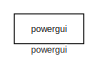
[diagram: root canvas - part 1/106, top left region]
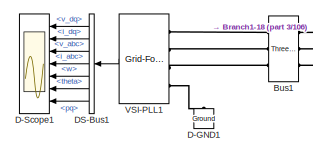
[diagram: root canvas - part 2/106, top left region]
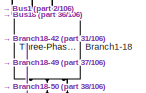
[diagram: root canvas - part 3/106, top left region]
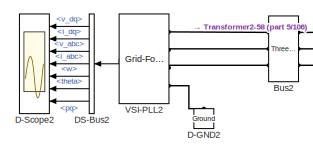
[diagram: root canvas - part 4/106, top left region]
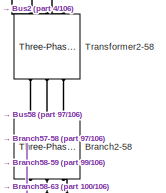
[diagram: root canvas - part 5/106, top right region]
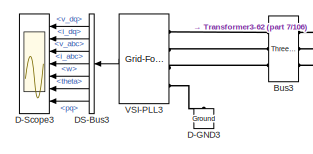
[diagram: root canvas - part 6/106, top left region]
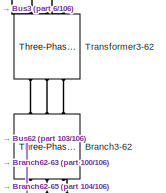
[diagram: root canvas - part 7/106, top right region]
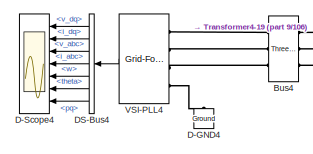
[diagram: root canvas - part 8/106, top left region]
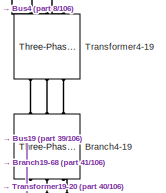
[diagram: root canvas - part 9/106, top left region]
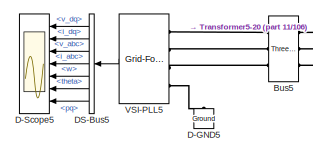
[diagram: root canvas - part 10/106, top left region]
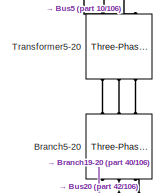
[diagram: root canvas - part 11/106, top left region]
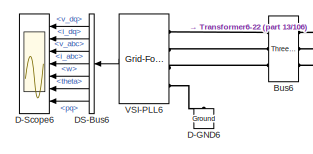
[diagram: root canvas - part 12/106, top left region]
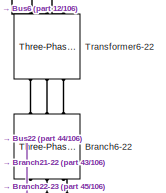
[diagram: root canvas - part 13/106, top left region]
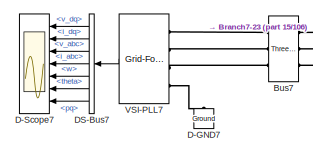
[diagram: root canvas - part 14/106, top left region]
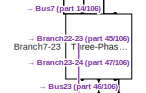
[diagram: root canvas - part 15/106, top left region]
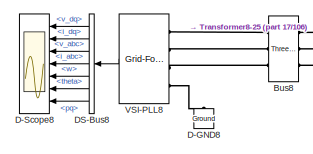
[diagram: root canvas - part 16/106, top left region]
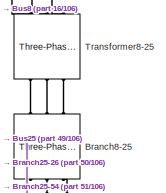
[diagram: root canvas - part 17/106, top center region]
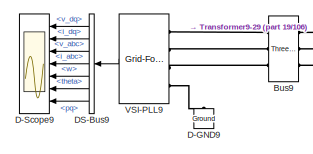
[diagram: root canvas - part 18/106, top left region]
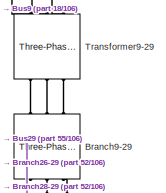
[diagram: root canvas - part 19/106, top center region]
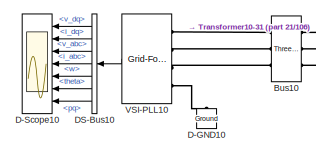
[diagram: root canvas - part 20/106, top left region]
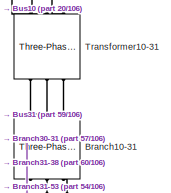
[diagram: root canvas - part 21/106, top center region]
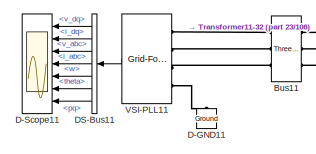
[diagram: root canvas - part 22/106, top left region]
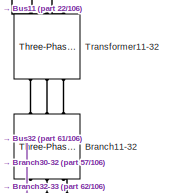
[diagram: root canvas - part 23/106, top center region]
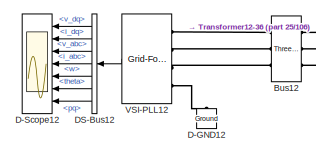
[diagram: root canvas - part 24/106, top left region]
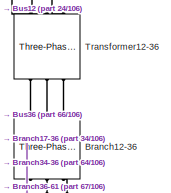
[diagram: root canvas - part 25/106, top center region]
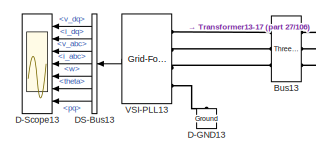
[diagram: root canvas - part 26/106, top left region]
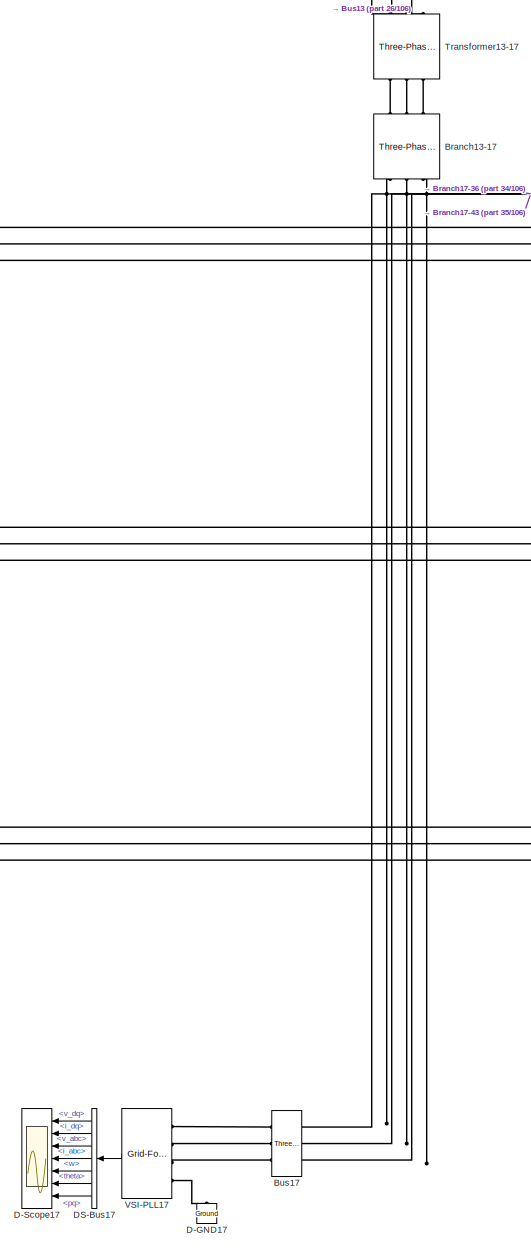
[diagram: root canvas - part 27/106, top left region]
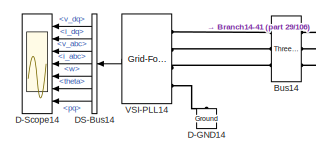
[diagram: root canvas - part 28/106, top left region]
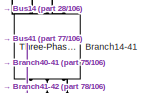
[diagram: root canvas - part 29/106, top center region]
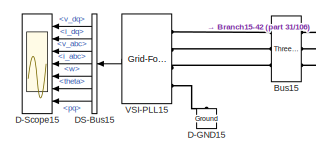
[diagram: root canvas - part 30/106, top left region]
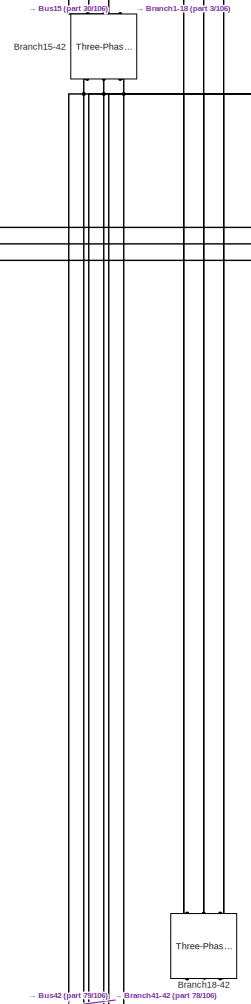
[diagram: root canvas - part 31/106, top center region]
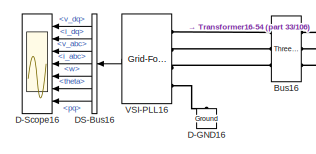
[diagram: root canvas - part 32/106, top left region]
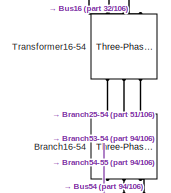
[diagram: root canvas - part 33/106, top right region]
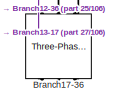
[diagram: root canvas - part 34/106, top center region]
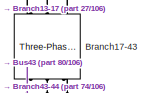
[diagram: root canvas - part 35/106, top center region]
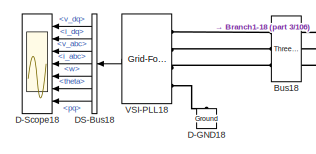
[diagram: root canvas - part 36/106, top left region]
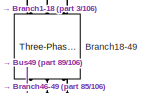
[diagram: root canvas - part 37/106, top right region]
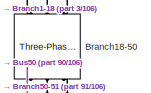
[diagram: root canvas - part 38/106, top right region]
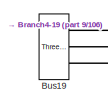
[diagram: root canvas - part 39/106, top left region]
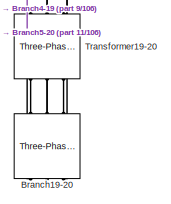
[diagram: root canvas - part 40/106, top left region]
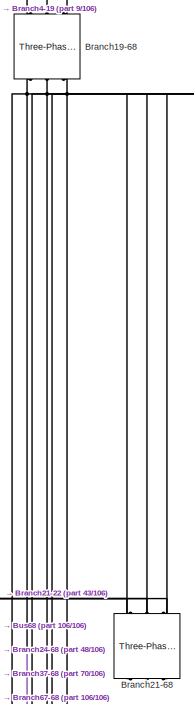
[diagram: root canvas - part 41/106, top right region]
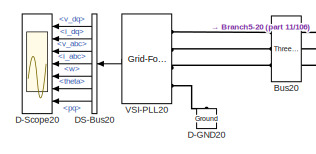
[diagram: root canvas - part 42/106, top left region]
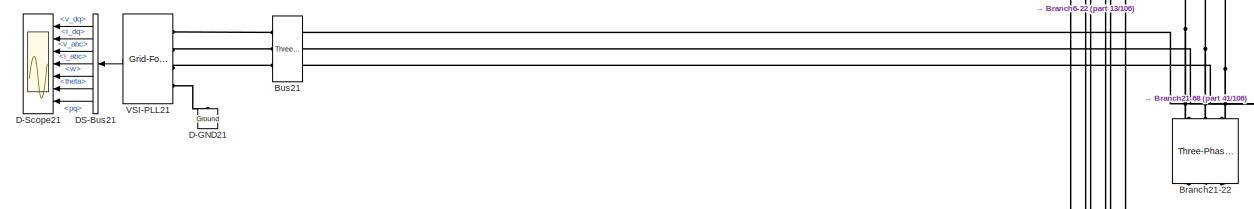
[diagram: root canvas - part 43/106, top left region]
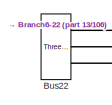
[diagram: root canvas - part 44/106, top left region]
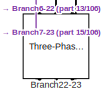
[diagram: root canvas - part 45/106, top left region]
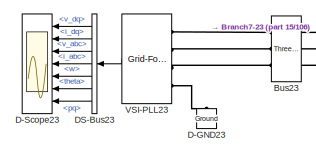
[diagram: root canvas - part 46/106, middle left region]
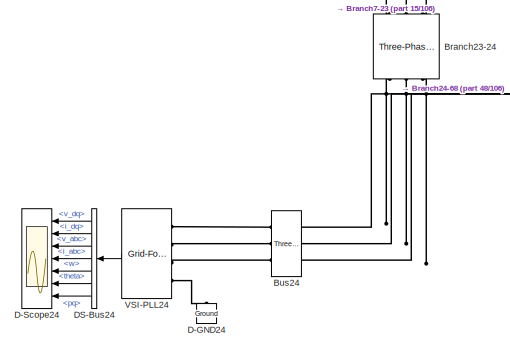
[diagram: root canvas - part 47/106, central region]
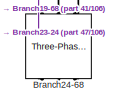
[diagram: root canvas - part 48/106, middle right region]
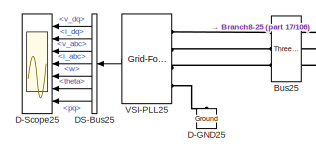
[diagram: root canvas - part 49/106, central region]
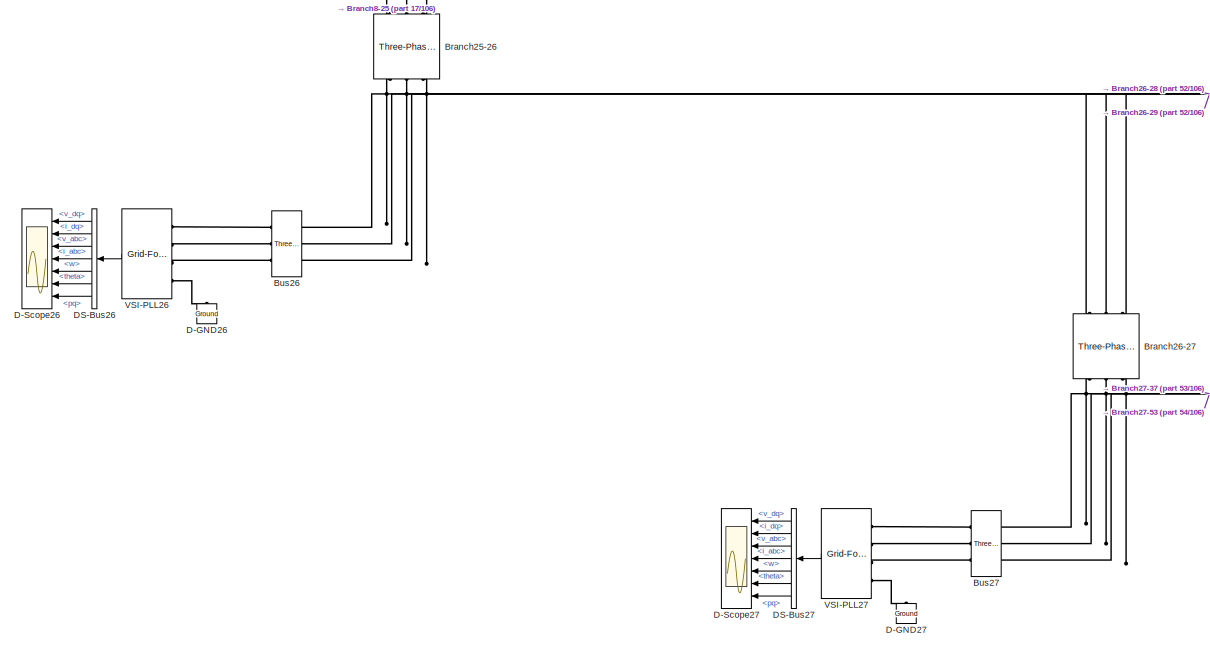
[diagram: root canvas - part 50/106, central region]
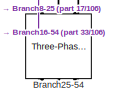
[diagram: root canvas - part 51/106, middle right region]
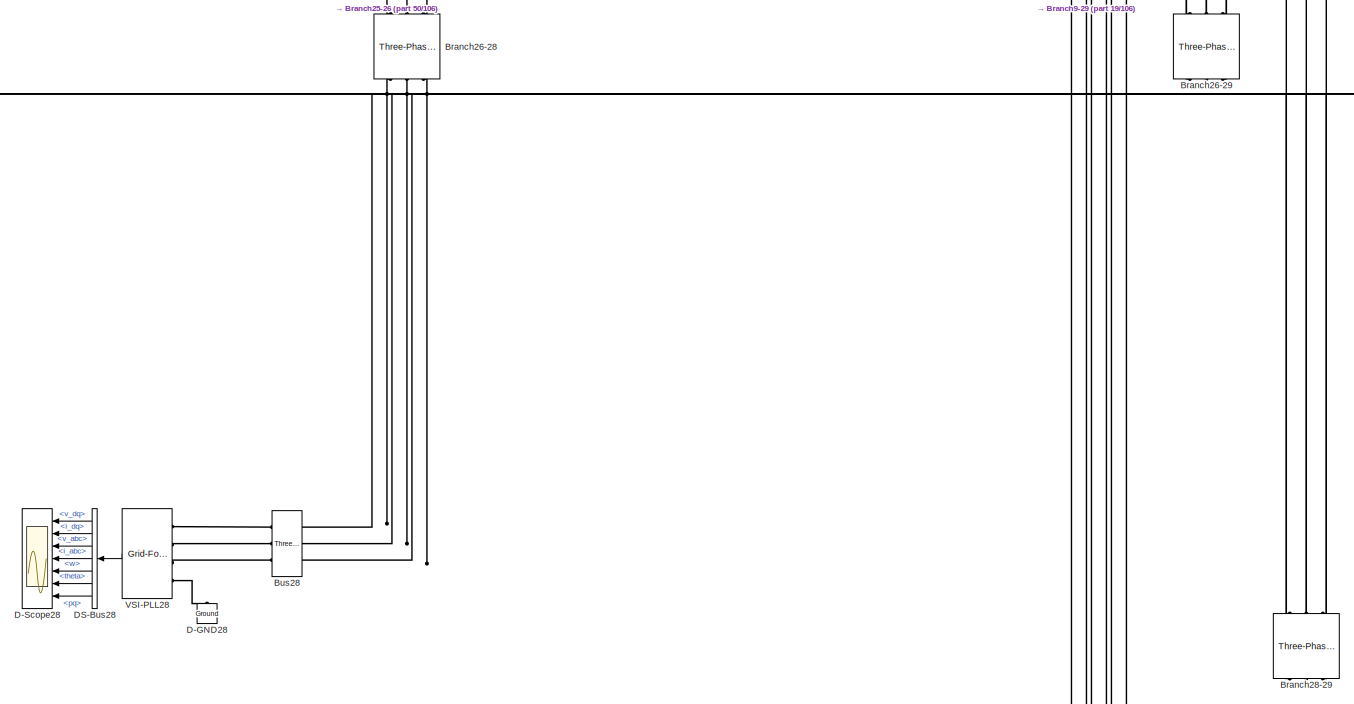
[diagram: root canvas - part 52/106, central region]
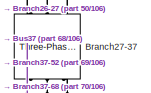
[diagram: root canvas - part 53/106, central region]
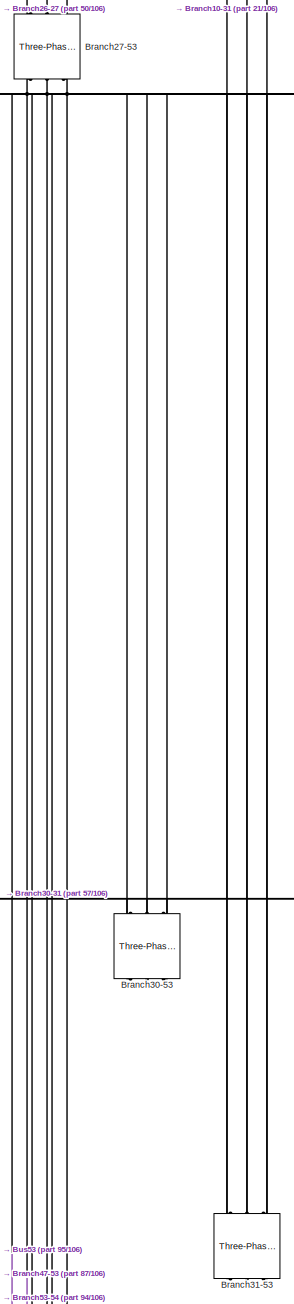
[diagram: root canvas - part 54/106, middle right region]
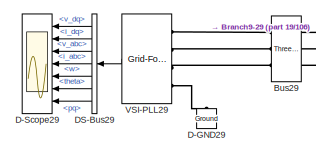
[diagram: root canvas - part 55/106, central region]
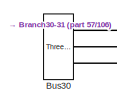
[diagram: root canvas - part 56/106, central region]
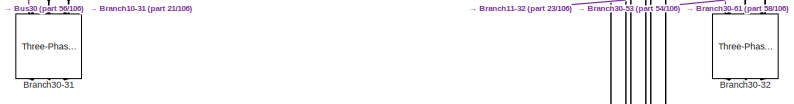
[diagram: root canvas - part 57/106, central region]
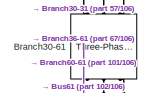
[diagram: root canvas - part 58/106, middle right region]
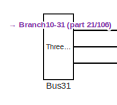
[diagram: root canvas - part 59/106, central region]
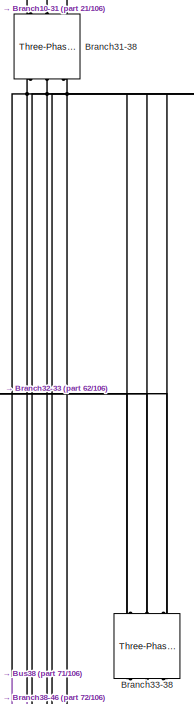
[diagram: root canvas - part 60/106, central region]
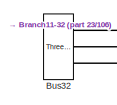
[diagram: root canvas - part 61/106, central region]
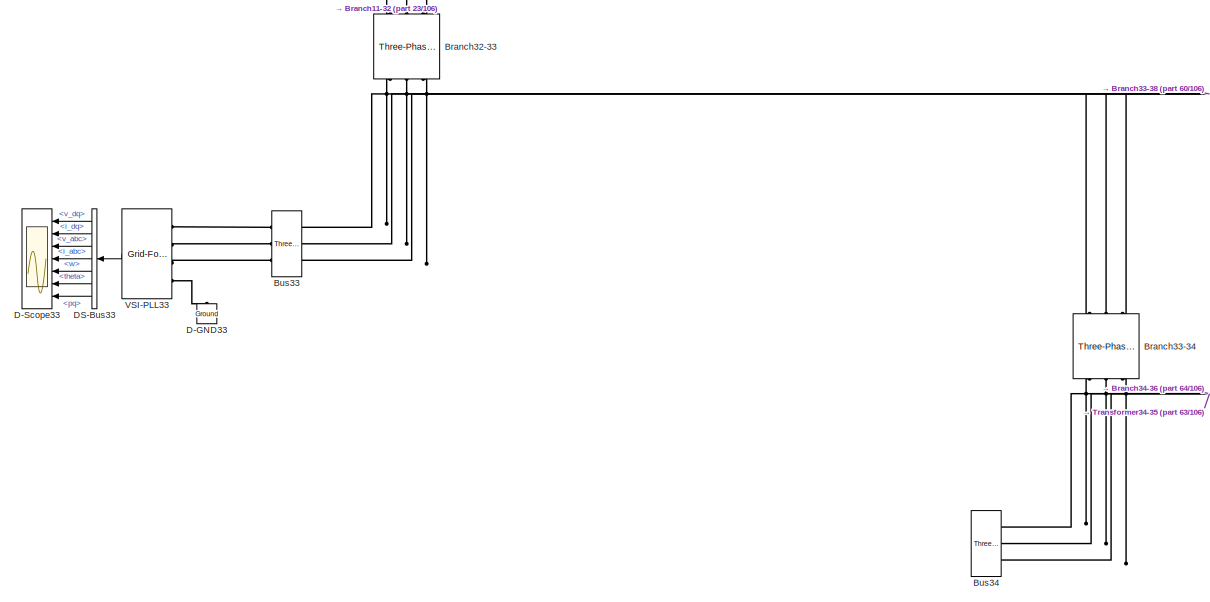
[diagram: root canvas - part 62/106, central region]
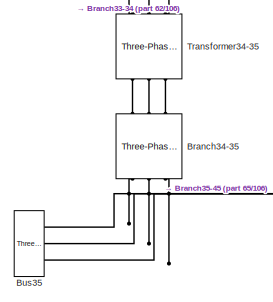
[diagram: root canvas - part 63/106, central region]
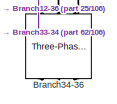
[diagram: root canvas - part 64/106, central region]
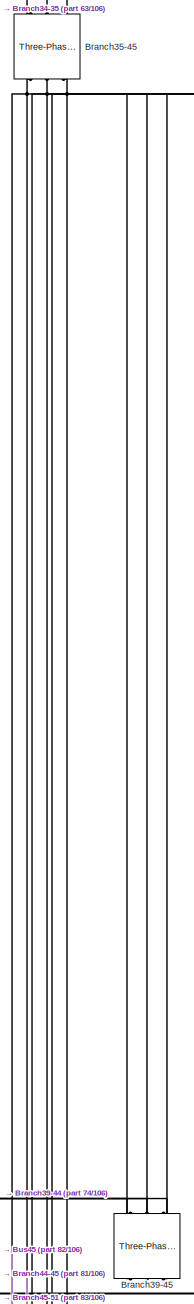
[diagram: root canvas - part 65/106, central region]
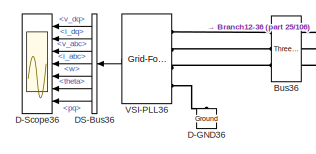
[diagram: root canvas - part 66/106, central region]
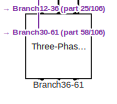
[diagram: root canvas - part 67/106, middle right region]
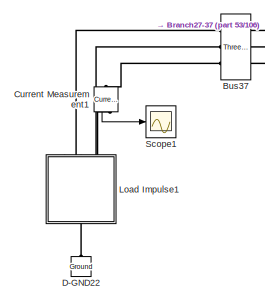
[diagram: root canvas - part 68/106, central region]
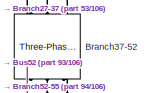
[diagram: root canvas - part 69/106, middle right region]
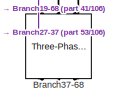
[diagram: root canvas - part 70/106, middle right region]
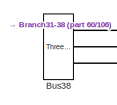
[diagram: root canvas - part 71/106, central region]
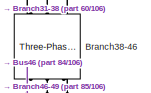
[diagram: root canvas - part 72/106, middle right region]
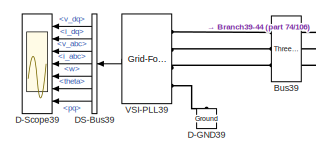
[diagram: root canvas - part 73/106, central region]
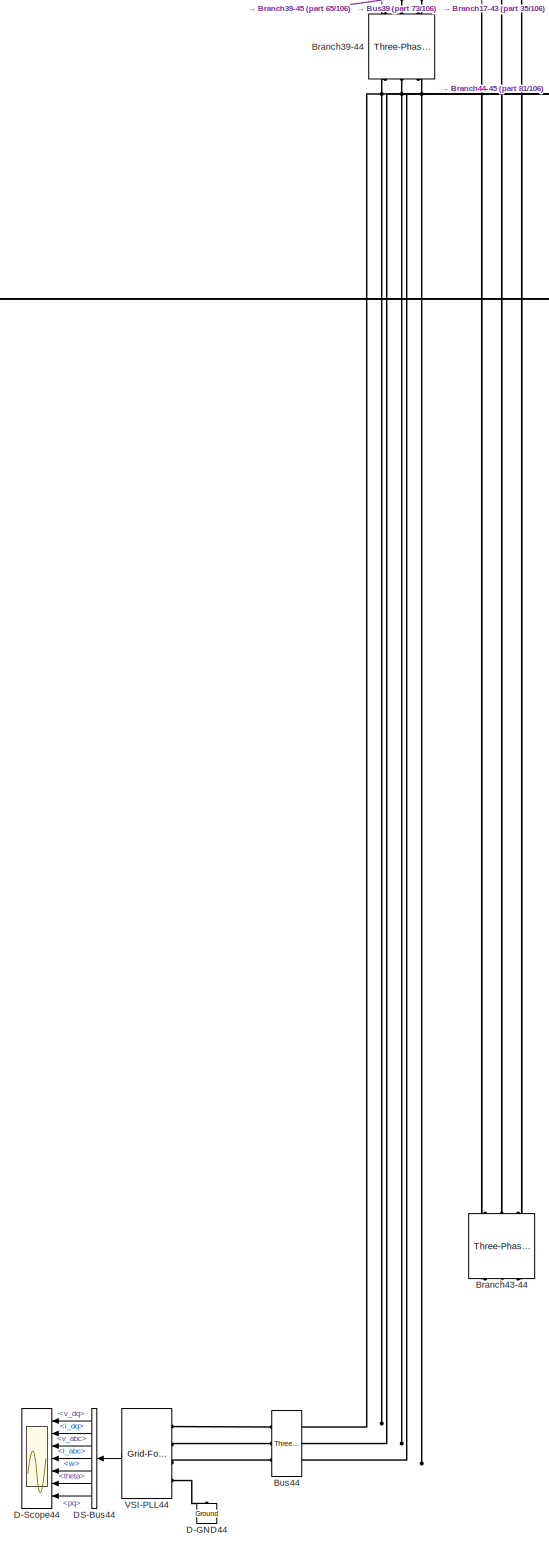
[diagram: root canvas - part 74/106, central region]
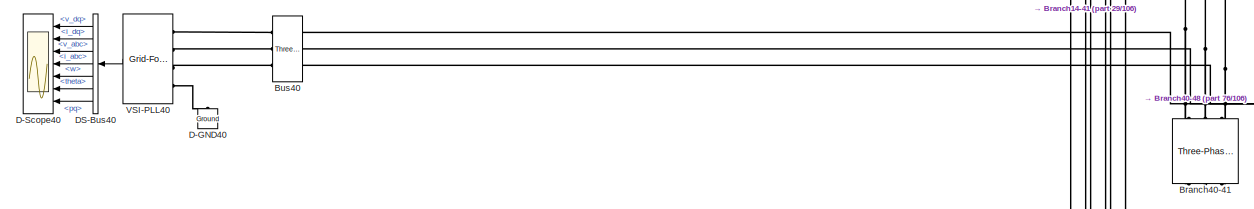
[diagram: root canvas - part 75/106, central region]
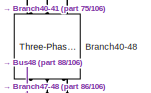
[diagram: root canvas - part 76/106, middle right region]
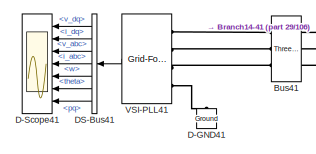
[diagram: root canvas - part 77/106, central region]
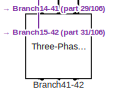
[diagram: root canvas - part 78/106, central region]
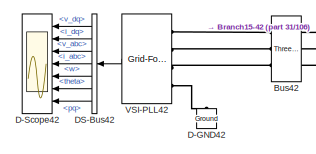
[diagram: root canvas - part 79/106, central region]
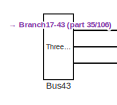
[diagram: root canvas - part 80/106, central region]
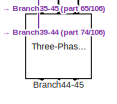
[diagram: root canvas - part 81/106, central region]
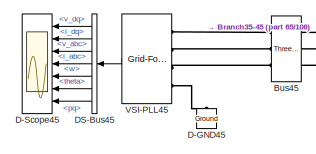
[diagram: root canvas - part 82/106, central region]
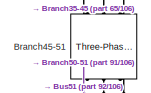
[diagram: root canvas - part 83/106, middle right region]
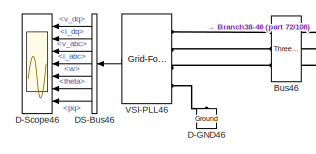
[diagram: root canvas - part 84/106, bottom center region]
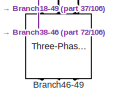
[diagram: root canvas - part 85/106, bottom right region]
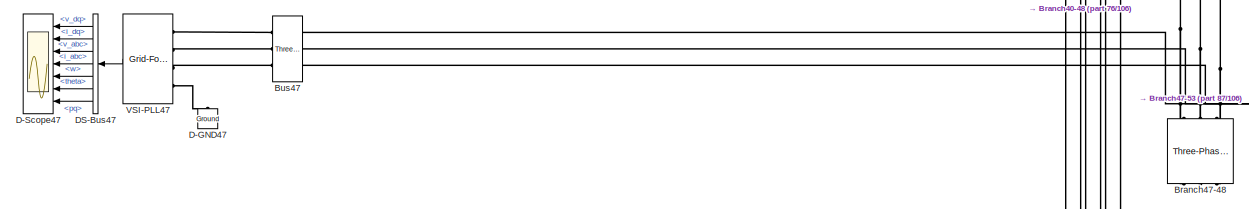
[diagram: root canvas - part 86/106, bottom right region]
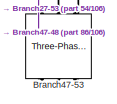
[diagram: root canvas - part 87/106, bottom right region]
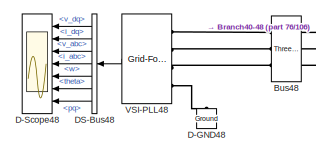
[diagram: root canvas - part 88/106, bottom right region]
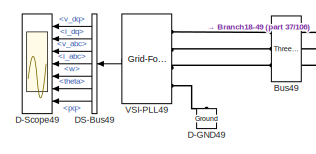
[diagram: root canvas - part 89/106, bottom right region]
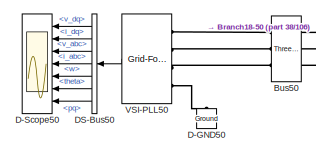
[diagram: root canvas - part 90/106, bottom right region]
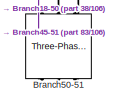
[diagram: root canvas - part 91/106, bottom right region]
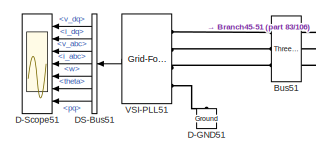
[diagram: root canvas - part 92/106, bottom right region]
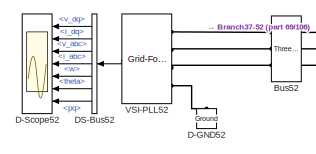
[diagram: root canvas - part 93/106, bottom right region]
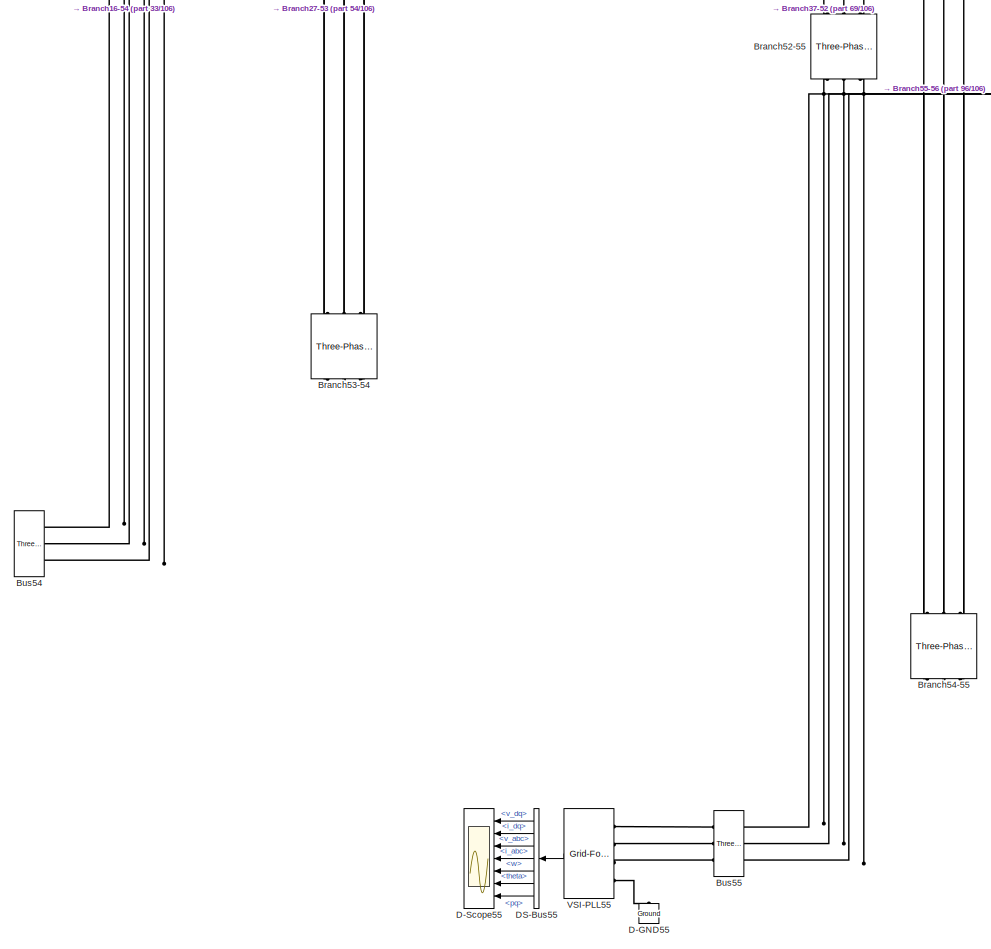
[diagram: root canvas - part 94/106, bottom right region]
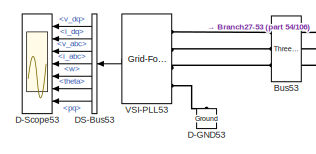
[diagram: root canvas - part 95/106, bottom right region]
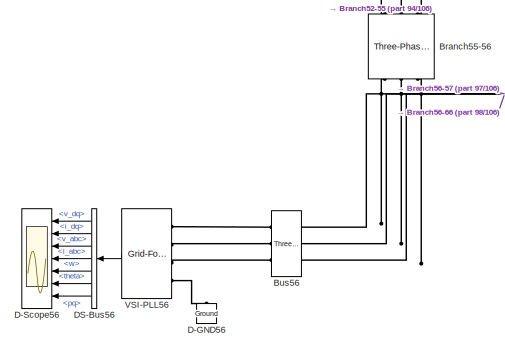
[diagram: root canvas - part 96/106, bottom right region]
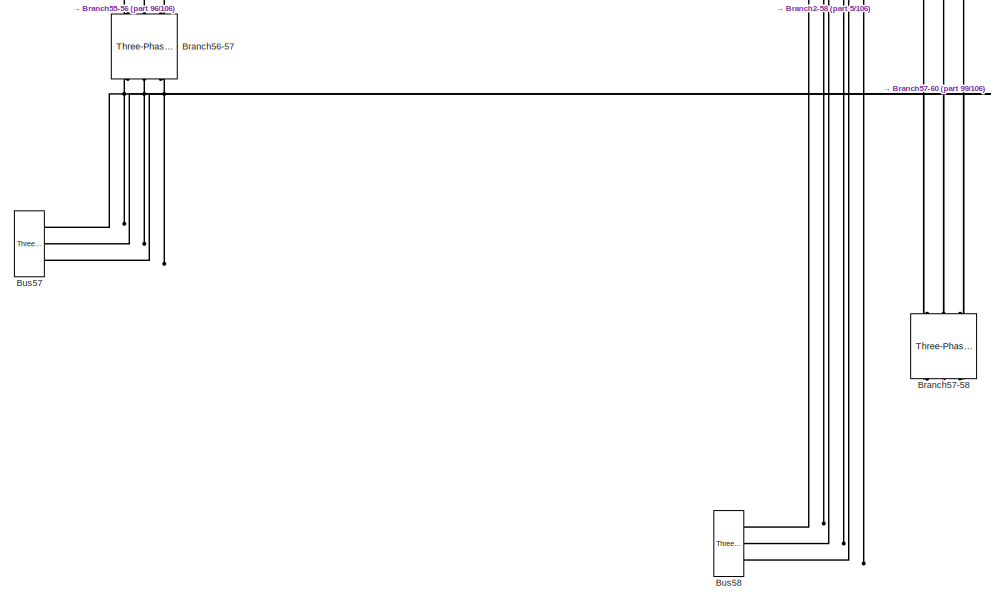
[diagram: root canvas - part 97/106, bottom right region]
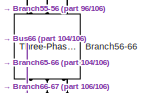
[diagram: root canvas - part 98/106, bottom right region]
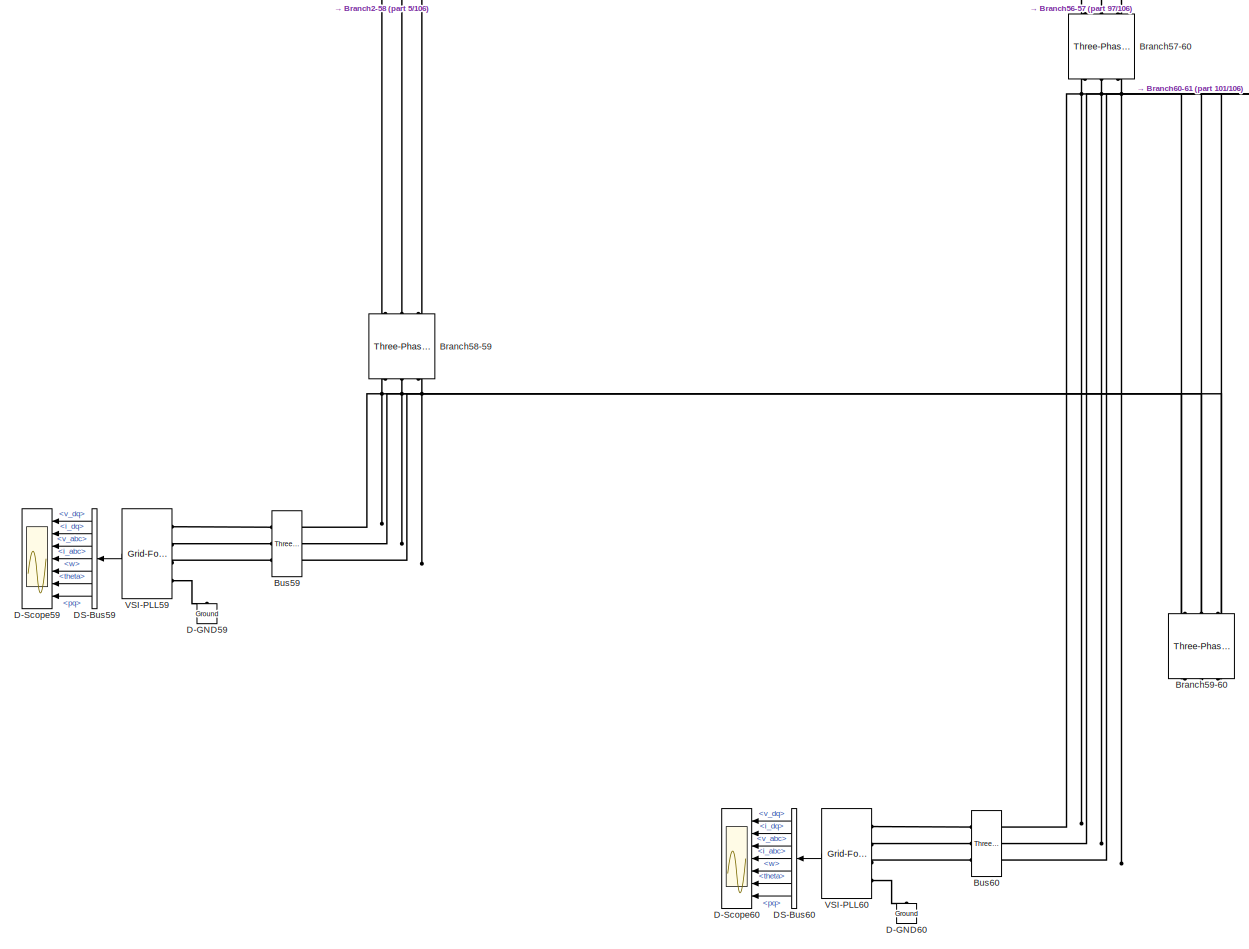
[diagram: root canvas - part 99/106, bottom right region]
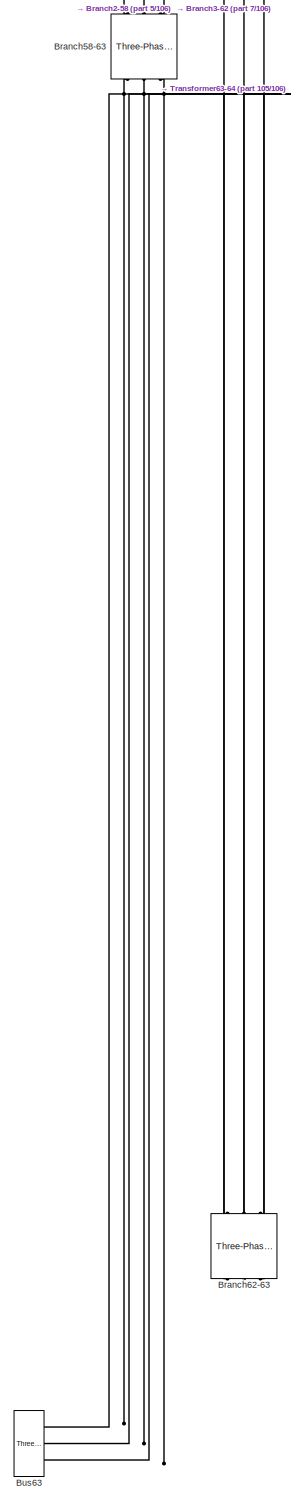
[diagram: root canvas - part 100/106, bottom right region]
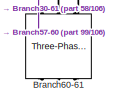
[diagram: root canvas - part 101/106, bottom right region]
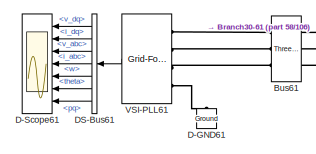
[diagram: root canvas - part 102/106, bottom right region]
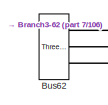
[diagram: root canvas - part 103/106, bottom right region]
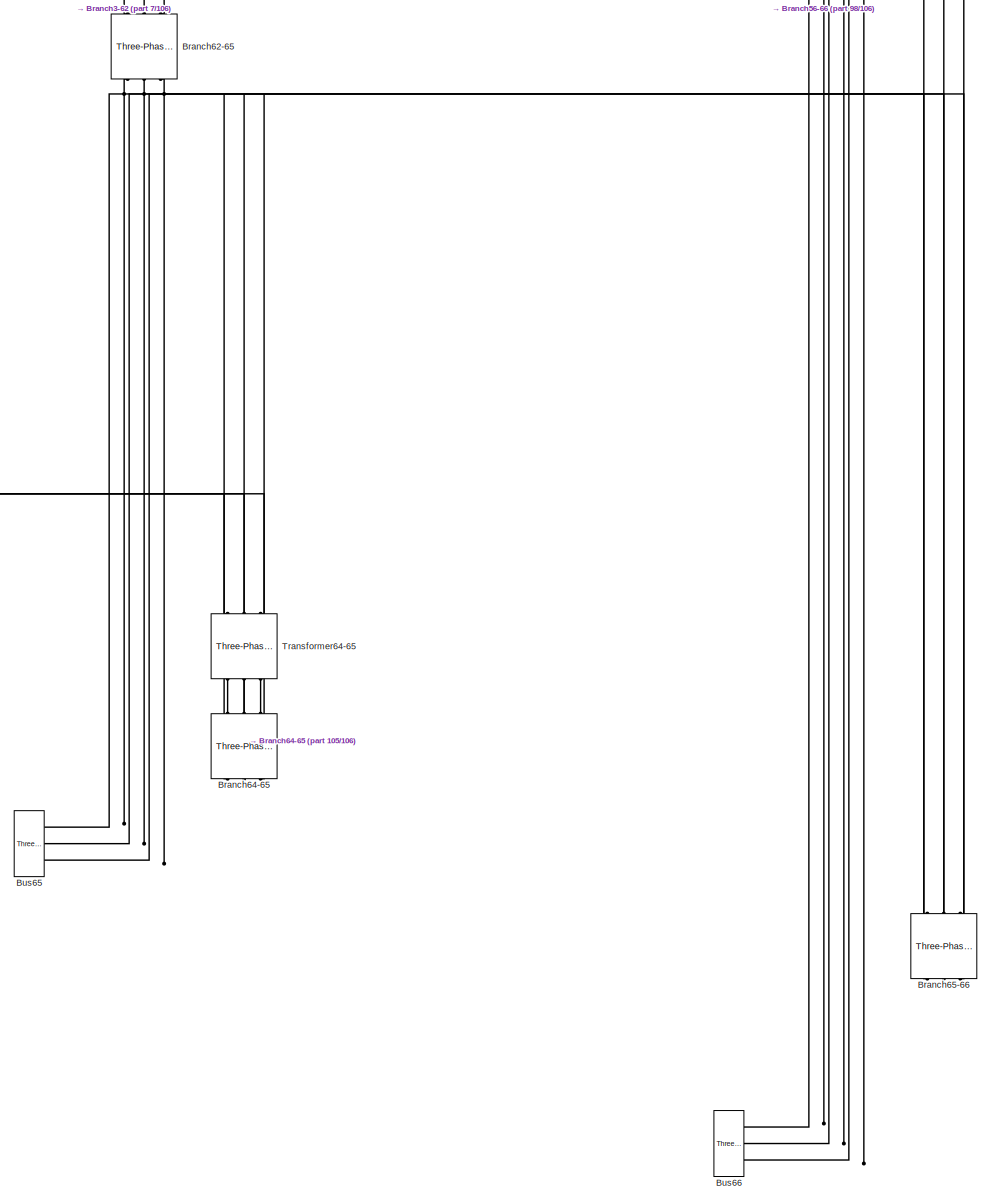
[diagram: root canvas - part 104/106, bottom right region]
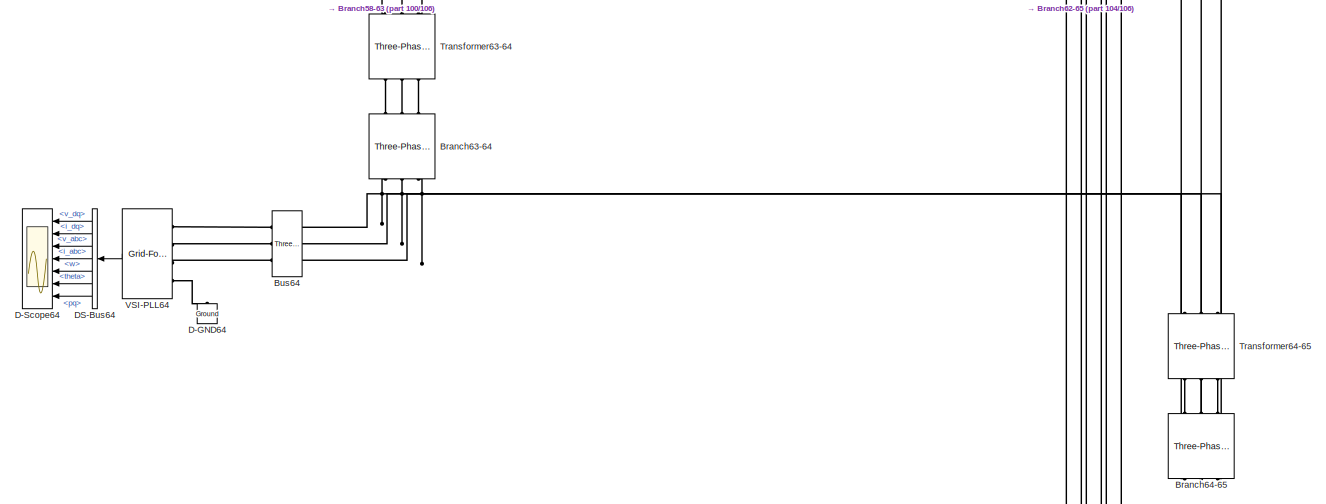
[diagram: root canvas - part 105/106, bottom right region]
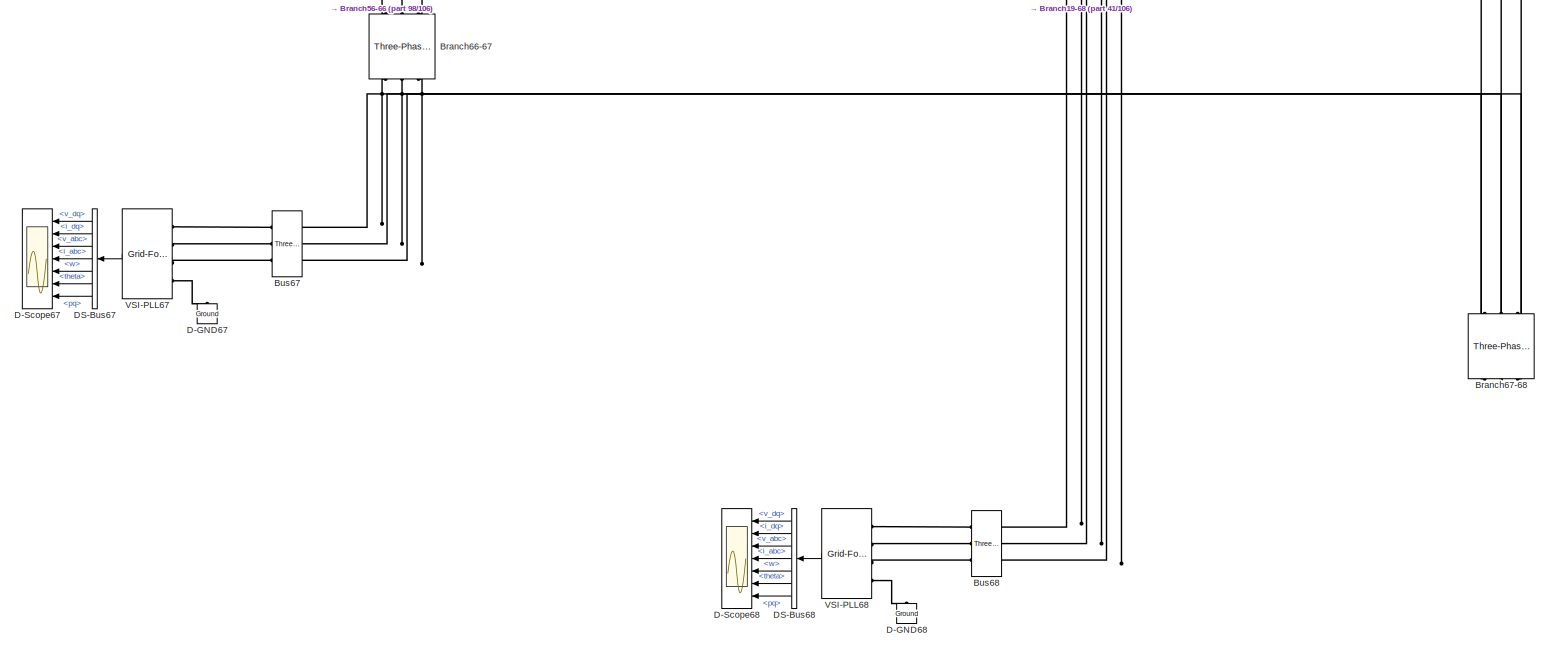
[diagram: root canvas - part 106/106, bottom right region]
MODEL slx_2d2c7e54e865
KIND model
CONFIG AbsTol = auto
CONFIG EnableMultiTasking = off
CONFIG FixedStep = Ts
CONFIG MaxStep = auto
CONFIG MinStep = auto
CONFIG RelTol = 1e-3
CONFIG SampleTimeConstraint = Unconstrained
CONFIG SolverName = FixedStepAuto
CONFIG StartTime = 0
CONFIG StopTime = 2
BLOCK [Reference] Branch1-18  REF=powerlib/Elements/Three-Phase
Series RLC Branch
  AttributesFormatString = \n
  NameLocation = right
  Ports = [0, 0, 0, 0, 0, 3, 3]
  SourceBlock = powerlib/Elements/Three-Phase\nSeries RLC Branch
  SourceProductBaseCode = PS
  SourceType = Three-Phase Series RLC Branch
BLOCK [Reference] Branch10-31  REF=powerlib/Elements/Three-Phase
Series RLC Branch
  AttributesFormatString = \n
  NameLocation = right
  Ports = [0, 0, 0, 0, 0, 3, 3]
  SourceBlock = powerlib/Elements/Three-Phase\nSeries RLC Branch
  SourceProductBaseCode = PS
  SourceType = Three-Phase Series RLC Branch
BLOCK [Reference] Branch11-32  REF=powerlib/Elements/Three-Phase
Series RLC Branch
  AttributesFormatString = \n
  NameLocation = right
  Ports = [0, 0, 0, 0, 0, 3, 3]
  SourceBlock = powerlib/Elements/Three-Phase\nSeries RLC Branch
  SourceProductBaseCode = PS
  SourceType = Three-Phase Series RLC Branch
BLOCK [Reference] Branch12-36  REF=powerlib/Elements/Three-Phase
Series RLC Branch
  AttributesFormatString = \n
  NameLocation = right
  Ports = [0, 0, 0, 0, 0, 3, 3]
  SourceBlock = powerlib/Elements/Three-Phase\nSeries RLC Branch
  SourceProductBaseCode = PS
  SourceType = Three-Phase Series RLC Branch
BLOCK [Reference] Branch13-17  REF=powerlib/Elements/Three-Phase
Series RLC Branch
  AttributesFormatString = \n
  NameLocation = right
  Ports = [0, 0, 0, 0, 0, 3, 3]
  SourceBlock = powerlib/Elements/Three-Phase\nSeries RLC Branch
  SourceProductBaseCode = PS
  SourceType = Three-Phase Series RLC Branch
BLOCK [Reference] Branch14-41  REF=powerlib/Elements/Three-Phase
Series RLC Branch
  AttributesFormatString = \n
  NameLocation = right
  Ports = [0, 0, 0, 0, 0, 3, 3]
  SourceBlock = powerlib/Elements/Three-Phase\nSeries RLC Branch
  SourceProductBaseCode = PS
  SourceType = Three-Phase Series RLC Branch
BLOCK [Reference] Branch15-42  REF=powerlib/Elements/Three-Phase
Series RLC Branch
  AttributesFormatString = \n
  NameLocation = right
  Ports = [0, 0, 0, 0, 0, 3, 3]
  SourceBlock = powerlib/Elements/Three-Phase\nSeries RLC Branch
  SourceProductBaseCode = PS
  SourceType = Three-Phase Series RLC Branch
BLOCK [Reference] Branch16-54  REF=powerlib/Elements/Three-Phase
Series RLC Branch
  AttributesFormatString = \n
  NameLocation = right
  Ports = [0, 0, 0, 0, 0, 3, 3]
  SourceBlock = powerlib/Elements/Three-Phase\nSeries RLC Branch
  SourceProductBaseCode = PS
  SourceType = Three-Phase Series RLC Branch
BLOCK [Reference] Branch17-36  REF=powerlib/Elements/Three-Phase
Series RLC Branch
  AttributesFormatString = \n
  NameLocation = right
  Ports = [0, 0, 0, 0, 0, 3, 3]
  SourceBlock = powerlib/Elements/Three-Phase\nSeries RLC Branch
  SourceProductBaseCode = PS
  SourceType = Three-Phase Series RLC Branch
BLOCK [Reference] Branch17-43  REF=powerlib/Elements/Three-Phase
Series RLC Branch
  AttributesFormatString = \n
  NameLocation = right
  Ports = [0, 0, 0, 0, 0, 3, 3]
  SourceBlock = powerlib/Elements/Three-Phase\nSeries RLC Branch
  SourceProductBaseCode = PS
  SourceType = Three-Phase Series RLC Branch
BLOCK [Reference] Branch18-42  REF=powerlib/Elements/Three-Phase
Series RLC Branch
  AttributesFormatString = \n
  NameLocation = right
  Ports = [0, 0, 0, 0, 0, 3, 3]
  SourceBlock = powerlib/Elements/Three-Phase\nSeries RLC Branch
  SourceProductBaseCode = PS
  SourceType = Three-Phase Series RLC Branch
BLOCK [Reference] Branch18-49  REF=powerlib/Elements/Three-Phase
Series RLC Branch
  AttributesFormatString = \n
  NameLocation = right
  Ports = [0, 0, 0, 0, 0, 3, 3]
  SourceBlock = powerlib/Elements/Three-Phase\nSeries RLC Branch
  SourceProductBaseCode = PS
  SourceType = Three-Phase Series RLC Branch
BLOCK [Reference] Branch18-50  REF=powerlib/Elements/Three-Phase
Series RLC Branch
  AttributesFormatString = \n
  NameLocation = right
  Ports = [0, 0, 0, 0, 0, 3, 3]
  SourceBlock = powerlib/Elements/Three-Phase\nSeries RLC Branch
  SourceProductBaseCode = PS
  SourceType = Three-Phase Series RLC Branch
BLOCK [Reference] Branch19-20  REF=powerlib/Elements/Three-Phase
Series RLC Branch
  AttributesFormatString = \n
  NameLocation = right
  Ports = [0, 0, 0, 0, 0, 3, 3]
  SourceBlock = powerlib/Elements/Three-Phase\nSeries RLC Branch
  SourceProductBaseCode = PS
  SourceType = Three-Phase Series RLC Branch
BLOCK [Reference] Branch19-68  REF=powerlib/Elements/Three-Phase
Series RLC Branch
  AttributesFormatString = \n
  NameLocation = right
  Ports = [0, 0, 0, 0, 0, 3, 3]
  SourceBlock = powerlib/Elements/Three-Phase\nSeries RLC Branch
  SourceProductBaseCode = PS
  SourceType = Three-Phase Series RLC Branch
BLOCK [Reference] Branch2-58  REF=powerlib/Elements/Three-Phase
Series RLC Branch
  AttributesFormatString = \n
  NameLocation = right
  Ports = [0, 0, 0, 0, 0, 3, 3]
  SourceBlock = powerlib/Elements/Three-Phase\nSeries RLC Branch
  SourceProductBaseCode = PS
  SourceType = Three-Phase Series RLC Branch
BLOCK [Reference] Branch21-22  REF=powerlib/Elements/Three-Phase
Series RLC Branch
  AttributesFormatString = \n
  NameLocation = right
  Ports = [0, 0, 0, 0, 0, 3, 3]
  SourceBlock = powerlib/Elements/Three-Phase\nSeries RLC Branch
  SourceProductBaseCode = PS
  SourceType = Three-Phase Series RLC Branch
BLOCK [Reference] Branch21-68  REF=powerlib/Elements/Three-Phase
Series RLC Branch
  AttributesFormatString = \n
  NameLocation = right
  Ports = [0, 0, 0, 0, 0, 3, 3]
  SourceBlock = powerlib/Elements/Three-Phase\nSeries RLC Branch
  SourceProductBaseCode = PS
  SourceType = Three-Phase Series RLC Branch
BLOCK [Reference] Branch22-23  REF=powerlib/Elements/Three-Phase
Series RLC Branch
  AttributesFormatString = \n
  NameLocation = right
  Ports = [0, 0, 0, 0, 0, 3, 3]
  SourceBlock = powerlib/Elements/Three-Phase\nSeries RLC Branch
  SourceProductBaseCode = PS
  SourceType = Three-Phase Series RLC Branch
BLOCK [Reference] Branch23-24  REF=powerlib/Elements/Three-Phase
Series RLC Branch
  AttributesFormatString = \n
  NameLocation = right
  Ports = [0, 0, 0, 0, 0, 3, 3]
  SourceBlock = powerlib/Elements/Three-Phase\nSeries RLC Branch
  SourceProductBaseCode = PS
  SourceType = Three-Phase Series RLC Branch
BLOCK [Reference] Branch24-68  REF=powerlib/Elements/Three-Phase
Series RLC Branch
  AttributesFormatString = \n
  NameLocation = right
  Ports = [0, 0, 0, 0, 0, 3, 3]
  SourceBlock = powerlib/Elements/Three-Phase\nSeries RLC Branch
  SourceProductBaseCode = PS
  SourceType = Three-Phase Series RLC Branch
BLOCK [Reference] Branch25-26  REF=powerlib/Elements/Three-Phase
Series RLC Branch
  AttributesFormatString = \n
  NameLocation = right
  Ports = [0, 0, 0, 0, 0, 3, 3]
  SourceBlock = powerlib/Elements/Three-Phase\nSeries RLC Branch
  SourceProductBaseCode = PS
  SourceType = Three-Phase Series RLC Branch
BLOCK [Reference] Branch25-54  REF=powerlib/Elements/Three-Phase
Series RLC Branch
  AttributesFormatString = \n
  NameLocation = right
  Ports = [0, 0, 0, 0, 0, 3, 3]
  SourceBlock = powerlib/Elements/Three-Phase\nSeries RLC Branch
  SourceProductBaseCode = PS
  SourceType = Three-Phase Series RLC Branch
BLOCK [Reference] Branch26-27  REF=powerlib/Elements/Three-Phase
Series RLC Branch
  AttributesFormatString = \n
  NameLocation = right
  Ports = [0, 0, 0, 0, 0, 3, 3]
  SourceBlock = powerlib/Elements/Three-Phase\nSeries RLC Branch
  SourceProductBaseCode = PS
  SourceType = Three-Phase Series RLC Branch
BLOCK [Reference] Branch26-28  REF=powerlib/Elements/Three-Phase
Series RLC Branch
  AttributesFormatString = \n
  NameLocation = right
  Ports = [0, 0, 0, 0, 0, 3, 3]
  SourceBlock = powerlib/Elements/Three-Phase\nSeries RLC Branch
  SourceProductBaseCode = PS
  SourceType = Three-Phase Series RLC Branch
BLOCK [Reference] Branch26-29  REF=powerlib/Elements/Three-Phase
Series RLC Branch
  AttributesFormatString = \n
  NameLocation = right
  Ports = [0, 0, 0, 0, 0, 3, 3]
  SourceBlock = powerlib/Elements/Three-Phase\nSeries RLC Branch
  SourceProductBaseCode = PS
  SourceType = Three-Phase Series RLC Branch
BLOCK [Reference] Branch27-37  REF=powerlib/Elements/Three-Phase
Series RLC Branch
  AttributesFormatString = \n
  NameLocation = right
  Ports = [0, 0, 0, 0, 0, 3, 3]
  SourceBlock = powerlib/Elements/Three-Phase\nSeries RLC Branch
  SourceProductBaseCode = PS
  SourceType = Three-Phase Series RLC Branch
BLOCK [Reference] Branch27-53  REF=powerlib/Elements/Three-Phase
Series RLC Branch
  AttributesFormatString = \n
  NameLocation = right
  Ports = [0, 0, 0, 0, 0, 3, 3]
  SourceBlock = powerlib/Elements/Three-Phase\nSeries RLC Branch
  SourceProductBaseCode = PS
  SourceType = Three-Phase Series RLC Branch
BLOCK [Reference] Branch28-29  REF=powerlib/Elements/Three-Phase
Series RLC Branch
  AttributesFormatString = \n
  NameLocation = right
  Ports = [0, 0, 0, 0, 0, 3, 3]
  SourceBlock = powerlib/Elements/Three-Phase\nSeries RLC Branch
  SourceProductBaseCode = PS
  SourceType = Three-Phase Series RLC Branch
BLOCK [Reference] Branch3-62  REF=powerlib/Elements/Three-Phase
Series RLC Branch
  AttributesFormatString = \n
  NameLocation = right
  Ports = [0, 0, 0, 0, 0, 3, 3]
  SourceBlock = powerlib/Elements/Three-Phase\nSeries RLC Branch
  SourceProductBaseCode = PS
  SourceType = Three-Phase Series RLC Branch
BLOCK [Reference] Branch30-31  REF=powerlib/Elements/Three-Phase
Series RLC Branch
  AttributesFormatString = \n
  NameLocation = right
  Ports = [0, 0, 0, 0, 0, 3, 3]
  SourceBlock = powerlib/Elements/Three-Phase\nSeries RLC Branch
  SourceProductBaseCode = PS
  SourceType = Three-Phase Series RLC Branch
BLOCK [Reference] Branch30-32  REF=powerlib/Elements/Three-Phase
Series RLC Branch
  AttributesFormatString = \n
  NameLocation = right
  Ports = [0, 0, 0, 0, 0, 3, 3]
  SourceBlock = powerlib/Elements/Three-Phase\nSeries RLC Branch
  SourceProductBaseCode = PS
  SourceType = Three-Phase Series RLC Branch
BLOCK [Reference] Branch30-53  REF=powerlib/Elements/Three-Phase
Series RLC Branch
  AttributesFormatString = \n
  NameLocation = right
  Ports = [0, 0, 0, 0, 0, 3, 3]
  SourceBlock = powerlib/Elements/Three-Phase\nSeries RLC Branch
  SourceProductBaseCode = PS
  SourceType = Three-Phase Series RLC Branch
BLOCK [Reference] Branch30-61  REF=powerlib/Elements/Three-Phase
Series RLC Branch
  AttributesFormatString = \n
  NameLocation = right
  Ports = [0, 0, 0, 0, 0, 3, 3]
  SourceBlock = powerlib/Elements/Three-Phase\nSeries RLC Branch
  SourceProductBaseCode = PS
  SourceType = Three-Phase Series RLC Branch
BLOCK [Reference] Branch31-38  REF=powerlib/Elements/Three-Phase
Series RLC Branch
  AttributesFormatString = \n
  NameLocation = right
  Ports = [0, 0, 0, 0, 0, 3, 3]
  SourceBlock = powerlib/Elements/Three-Phase\nSeries RLC Branch
  SourceProductBaseCode = PS
  SourceType = Three-Phase Series RLC Branch
BLOCK [Reference] Branch31-53  REF=powerlib/Elements/Three-Phase
Series RLC Branch
  AttributesFormatString = \n
  NameLocation = right
  Ports = [0, 0, 0, 0, 0, 3, 3]
  SourceBlock = powerlib/Elements/Three-Phase\nSeries RLC Branch
  SourceProductBaseCode = PS
  SourceType = Three-Phase Series RLC Branch
BLOCK [Reference] Branch32-33  REF=powerlib/Elements/Three-Phase
Series RLC Branch
  AttributesFormatString = \n
  NameLocation = right
  Ports = [0, 0, 0, 0, 0, 3, 3]
  SourceBlock = powerlib/Elements/Three-Phase\nSeries RLC Branch
  SourceProductBaseCode = PS
  SourceType = Three-Phase Series RLC Branch
BLOCK [Reference] Branch33-34  REF=powerlib/Elements/Three-Phase
Series RLC Branch
  AttributesFormatString = \n
  NameLocation = right
  Ports = [0, 0, 0, 0, 0, 3, 3]
  SourceBlock = powerlib/Elements/Three-Phase\nSeries RLC Branch
  SourceProductBaseCode = PS
  SourceType = Three-Phase Series RLC Branch
BLOCK [Reference] Branch33-38  REF=powerlib/Elements/Three-Phase
Series RLC Branch
  AttributesFormatString = \n
  NameLocation = right
  Ports = [0, 0, 0, 0, 0, 3, 3]
  SourceBlock = powerlib/Elements/Three-Phase\nSeries RLC Branch
  SourceProductBaseCode = PS
  SourceType = Three-Phase Series RLC Branch
BLOCK [Reference] Branch34-35  REF=powerlib/Elements/Three-Phase
Series RLC Branch
  AttributesFormatString = \n
  NameLocation = right
  Ports = [0, 0, 0, 0, 0, 3, 3]
  SourceBlock = powerlib/Elements/Three-Phase\nSeries RLC Branch
  SourceProductBaseCode = PS
  SourceType = Three-Phase Series RLC Branch
BLOCK [Reference] Branch34-36  REF=powerlib/Elements/Three-Phase
Series RLC Branch
  AttributesFormatString = \n
  NameLocation = right
  Ports = [0, 0, 0, 0, 0, 3, 3]
  SourceBlock = powerlib/Elements/Three-Phase\nSeries RLC Branch
  SourceProductBaseCode = PS
  SourceType = Three-Phase Series RLC Branch
BLOCK [Reference] Branch35-45  REF=powerlib/Elements/Three-Phase
Series RLC Branch
  AttributesFormatString = \n
  NameLocation = right
  Ports = [0, 0, 0, 0, 0, 3, 3]
  SourceBlock = powerlib/Elements/Three-Phase\nSeries RLC Branch
  SourceProductBaseCode = PS
  SourceType = Three-Phase Series RLC Branch
BLOCK [Reference] Branch36-61  REF=powerlib/Elements/Three-Phase
Series RLC Branch
  AttributesFormatString = \n
  NameLocation = right
  Ports = [0, 0, 0, 0, 0, 3, 3]
  SourceBlock = powerlib/Elements/Three-Phase\nSeries RLC Branch
  SourceProductBaseCode = PS
  SourceType = Three-Phase Series RLC Branch
BLOCK [Reference] Branch37-52  REF=powerlib/Elements/Three-Phase
Series RLC Branch
  AttributesFormatString = \n
  NameLocation = right
  Ports = [0, 0, 0, 0, 0, 3, 3]
  SourceBlock = powerlib/Elements/Three-Phase\nSeries RLC Branch
  SourceProductBaseCode = PS
  SourceType = Three-Phase Series RLC Branch
BLOCK [Reference] Branch37-68  REF=powerlib/Elements/Three-Phase
Series RLC Branch
  AttributesFormatString = \n
  NameLocation = right
  Ports = [0, 0, 0, 0, 0, 3, 3]
  SourceBlock = powerlib/Elements/Three-Phase\nSeries RLC Branch
  SourceProductBaseCode = PS
  SourceType = Three-Phase Series RLC Branch
BLOCK [Reference] Branch38-46  REF=powerlib/Elements/Three-Phase
Series RLC Branch
  AttributesFormatString = \n
  NameLocation = right
  Ports = [0, 0, 0, 0, 0, 3, 3]
  SourceBlock = powerlib/Elements/Three-Phase\nSeries RLC Branch
  SourceProductBaseCode = PS
  SourceType = Three-Phase Series RLC Branch
BLOCK [Reference] Branch39-44  REF=powerlib/Elements/Three-Phase
Series RLC Branch
  AttributesFormatString = \n
  NameLocation = right
  Ports = [0, 0, 0, 0, 0, 3, 3]
  SourceBlock = powerlib/Elements/Three-Phase\nSeries RLC Branch
  SourceProductBaseCode = PS
  SourceType = Three-Phase Series RLC Branch
BLOCK [Reference] Branch39-45  REF=powerlib/Elements/Three-Phase
Series RLC Branch
  AttributesFormatString = \n
  NameLocation = right
  Ports = [0, 0, 0, 0, 0, 3, 3]
  SourceBlock = powerlib/Elements/Three-Phase\nSeries RLC Branch
  SourceProductBaseCode = PS
  SourceType = Three-Phase Series RLC Branch
BLOCK [Reference] Branch4-19  REF=powerlib/Elements/Three-Phase
Series RLC Branch
  AttributesFormatString = \n
  NameLocation = right
  Ports = [0, 0, 0, 0, 0, 3, 3]
  SourceBlock = powerlib/Elements/Three-Phase\nSeries RLC Branch
  SourceProductBaseCode = PS
  SourceType = Three-Phase Series RLC Branch
BLOCK [Reference] Branch40-41  REF=powerlib/Elements/Three-Phase
Series RLC Branch
  AttributesFormatString = \n
  NameLocation = right
  Ports = [0, 0, 0, 0, 0, 3, 3]
  SourceBlock = powerlib/Elements/Three-Phase\nSeries RLC Branch
  SourceProductBaseCode = PS
  SourceType = Three-Phase Series RLC Branch
BLOCK [Reference] Branch40-48  REF=powerlib/Elements/Three-Phase
Series RLC Branch
  AttributesFormatString = \n
  NameLocation = right
  Ports = [0, 0, 0, 0, 0, 3, 3]
  SourceBlock = powerlib/Elements/Three-Phase\nSeries RLC Branch
  SourceProductBaseCode = PS
  SourceType = Three-Phase Series RLC Branch
BLOCK [Reference] Branch41-42  REF=powerlib/Elements/Three-Phase
Series RLC Branch
  AttributesFormatString = \n
  NameLocation = right
  Ports = [0, 0, 0, 0, 0, 3, 3]
  SourceBlock = powerlib/Elements/Three-Phase\nSeries RLC Branch
  SourceProductBaseCode = PS
  SourceType = Three-Phase Series RLC Branch
BLOCK [Reference] Branch43-44  REF=powerlib/Elements/Three-Phase
Series RLC Branch
  AttributesFormatString = \n
  NameLocation = right
  Ports = [0, 0, 0, 0, 0, 3, 3]
  SourceBlock = powerlib/Elements/Three-Phase\nSeries RLC Branch
  SourceProductBaseCode = PS
  SourceType = Three-Phase Series RLC Branch
BLOCK [Reference] Branch44-45  REF=powerlib/Elements/Three-Phase
Series RLC Branch
  AttributesFormatString = \n
  NameLocation = right
  Ports = [0, 0, 0, 0, 0, 3, 3]
  SourceBlock = powerlib/Elements/Three-Phase\nSeries RLC Branch
  SourceProductBaseCode = PS
  SourceType = Three-Phase Series RLC Branch
BLOCK [Reference] Branch45-51  REF=powerlib/Elements/Three-Phase
Series RLC Branch
  AttributesFormatString = \n
  NameLocation = right
  Ports = [0, 0, 0, 0, 0, 3, 3]
  SourceBlock = powerlib/Elements/Three-Phase\nSeries RLC Branch
  SourceProductBaseCode = PS
  SourceType = Three-Phase Series RLC Branch
BLOCK [Reference] Branch46-49  REF=powerlib/Elements/Three-Phase
Series RLC Branch
  AttributesFormatString = \n
  NameLocation = right
  Ports = [0, 0, 0, 0, 0, 3, 3]
  SourceBlock = powerlib/Elements/Three-Phase\nSeries RLC Branch
  SourceProductBaseCode = PS
  SourceType = Three-Phase Series RLC Branch
BLOCK [Reference] Branch47-48  REF=powerlib/Elements/Three-Phase
Series RLC Branch
  AttributesFormatString = \n
  NameLocation = right
  Ports = [0, 0, 0, 0, 0, 3, 3]
  SourceBlock = powerlib/Elements/Three-Phase\nSeries RLC Branch
  SourceProductBaseCode = PS
  SourceType = Three-Phase Series RLC Branch
BLOCK [Reference] Branch47-53  REF=powerlib/Elements/Three-Phase
Series RLC Branch
  AttributesFormatString = \n
  NameLocation = right
  Ports = [0, 0, 0, 0, 0, 3, 3]
  SourceBlock = powerlib/Elements/Three-Phase\nSeries RLC Branch
  SourceProductBaseCode = PS
  SourceType = Three-Phase Series RLC Branch
BLOCK [Reference] Branch5-20  REF=powerlib/Elements/Three-Phase
Series RLC Branch
  AttributesFormatString = \n
  NameLocation = right
  Ports = [0, 0, 0, 0, 0, 3, 3]
  SourceBlock = powerlib/Elements/Three-Phase\nSeries RLC Branch
  SourceProductBaseCode = PS
  SourceType = Three-Phase Series RLC Branch
BLOCK [Reference] Branch50-51  REF=powerlib/Elements/Three-Phase
Series RLC Branch
  AttributesFormatString = \n
  NameLocation = right
  Ports = [0, 0, 0, 0, 0, 3, 3]
  SourceBlock = powerlib/Elements/Three-Phase\nSeries RLC Branch
  SourceProductBaseCode = PS
  SourceType = Three-Phase Series RLC Branch
BLOCK [Reference] Branch52-55  REF=powerlib/Elements/Three-Phase
Series RLC Branch
  AttributesFormatString = \n
  NameLocation = right
  Ports = [0, 0, 0, 0, 0, 3, 3]
  SourceBlock = powerlib/Elements/Three-Phase\nSeries RLC Branch
  SourceProductBaseCode = PS
  SourceType = Three-Phase Series RLC Branch
BLOCK [Reference] Branch53-54  REF=powerlib/Elements/Three-Phase
Series RLC Branch
  AttributesFormatString = \n
  NameLocation = right
  Ports = [0, 0, 0, 0, 0, 3, 3]
  SourceBlock = powerlib/Elements/Three-Phase\nSeries RLC Branch
  SourceProductBaseCode = PS
  SourceType = Three-Phase Series RLC Branch
BLOCK [Reference] Branch54-55  REF=powerlib/Elements/Three-Phase
Series RLC Branch
  AttributesFormatString = \n
  NameLocation = right
  Ports = [0, 0, 0, 0, 0, 3, 3]
  SourceBlock = powerlib/Elements/Three-Phase\nSeries RLC Branch
  SourceProductBaseCode = PS
  SourceType = Three-Phase Series RLC Branch
BLOCK [Reference] Branch55-56  REF=powerlib/Elements/Three-Phase
Series RLC Branch
  AttributesFormatString = \n
  NameLocation = right
  Ports = [0, 0, 0, 0, 0, 3, 3]
  SourceBlock = powerlib/Elements/Three-Phase\nSeries RLC Branch
  SourceProductBaseCode = PS
  SourceType = Three-Phase Series RLC Branch
BLOCK [Reference] Branch56-57  REF=powerlib/Elements/Three-Phase
Series RLC Branch
  AttributesFormatString = \n
  NameLocation = right
  Ports = [0, 0, 0, 0, 0, 3, 3]
  SourceBlock = powerlib/Elements/Three-Phase\nSeries RLC Branch
  SourceProductBaseCode = PS
  SourceType = Three-Phase Series RLC Branch
BLOCK [Reference] Branch56-66  REF=powerlib/Elements/Three-Phase
Series RLC Branch
  AttributesFormatString = \n
  NameLocation = right
  Ports = [0, 0, 0, 0, 0, 3, 3]
  SourceBlock = powerlib/Elements/Three-Phase\nSeries RLC Branch
  SourceProductBaseCode = PS
  SourceType = Three-Phase Series RLC Branch
BLOCK [Reference] Branch57-58  REF=powerlib/Elements/Three-Phase
Series RLC Branch
  AttributesFormatString = \n
  NameLocation = right
  Ports = [0, 0, 0, 0, 0, 3, 3]
  SourceBlock = powerlib/Elements/Three-Phase\nSeries RLC Branch
  SourceProductBaseCode = PS
  SourceType = Three-Phase Series RLC Branch
BLOCK [Reference] Branch57-60  REF=powerlib/Elements/Three-Phase
Series RLC Branch
  AttributesFormatString = \n
  NameLocation = right
  Ports = [0, 0, 0, 0, 0, 3, 3]
  SourceBlock = powerlib/Elements/Three-Phase\nSeries RLC Branch
  SourceProductBaseCode = PS
  SourceType = Three-Phase Series RLC Branch
BLOCK [Reference] Branch58-59  REF=powerlib/Elements/Three-Phase
Series RLC Branch
  AttributesFormatString = \n
  NameLocation = right
  Ports = [0, 0, 0, 0, 0, 3, 3]
  SourceBlock = powerlib/Elements/Three-Phase\nSeries RLC Branch
  SourceProductBaseCode = PS
  SourceType = Three-Phase Series RLC Branch
BLOCK [Reference] Branch58-63  REF=powerlib/Elements/Three-Phase
Series RLC Branch
  AttributesFormatString = \n
  NameLocation = right
  Ports = [0, 0, 0, 0, 0, 3, 3]
  SourceBlock = powerlib/Elements/Three-Phase\nSeries RLC Branch
  SourceProductBaseCode = PS
  SourceType = Three-Phase Series RLC Branch
BLOCK [Reference] Branch59-60  REF=powerlib/Elements/Three-Phase
Series RLC Branch
  AttributesFormatString = \n
  NameLocation = right
  Ports = [0, 0, 0, 0, 0, 3, 3]
  SourceBlock = powerlib/Elements/Three-Phase\nSeries RLC Branch
  SourceProductBaseCode = PS
  SourceType = Three-Phase Series RLC Branch
BLOCK [Reference] Branch6-22  REF=powerlib/Elements/Three-Phase
Series RLC Branch
  AttributesFormatString = \n
  NameLocation = right
  Ports = [0, 0, 0, 0, 0, 3, 3]
  SourceBlock = powerlib/Elements/Three-Phase\nSeries RLC Branch
  SourceProductBaseCode = PS
  SourceType = Three-Phase Series RLC Branch
BLOCK [Reference] Branch60-61  REF=powerlib/Elements/Three-Phase
Series RLC Branch
  AttributesFormatString = \n
  NameLocation = right
  Ports = [0, 0, 0, 0, 0, 3, 3]
  SourceBlock = powerlib/Elements/Three-Phase\nSeries RLC Branch
  SourceProductBaseCode = PS
  SourceType = Three-Phase Series RLC Branch
BLOCK [Reference] Branch62-63  REF=powerlib/Elements/Three-Phase
Series RLC Branch
  AttributesFormatString = \n
  NameLocation = right
  Ports = [0, 0, 0, 0, 0, 3, 3]
  SourceBlock = powerlib/Elements/Three-Phase\nSeries RLC Branch
  SourceProductBaseCode = PS
  SourceType = Three-Phase Series RLC Branch
BLOCK [Reference] Branch62-65  REF=powerlib/Elements/Three-Phase
Series RLC Branch
  AttributesFormatString = \n
  NameLocation = right
  Ports = [0, 0, 0, 0, 0, 3, 3]
  SourceBlock = powerlib/Elements/Three-Phase\nSeries RLC Branch
  SourceProductBaseCode = PS
  SourceType = Three-Phase Series RLC Branch
BLOCK [Reference] Branch63-64  REF=powerlib/Elements/Three-Phase
Series RLC Branch
  AttributesFormatString = \n
  NameLocation = right
  Ports = [0, 0, 0, 0, 0, 3, 3]
  SourceBlock = powerlib/Elements/Three-Phase\nSeries RLC Branch
  SourceProductBaseCode = PS
  SourceType = Three-Phase Series RLC Branch
BLOCK [Reference] Branch64-65  REF=powerlib/Elements/Three-Phase
Series RLC Branch
  AttributesFormatString = \n
  NameLocation = right
  Ports = [0, 0, 0, 0, 0, 3, 3]
  SourceBlock = powerlib/Elements/Three-Phase\nSeries RLC Branch
  SourceProductBaseCode = PS
  SourceType = Three-Phase Series RLC Branch
BLOCK [Reference] Branch65-66  REF=powerlib/Elements/Three-Phase
Series RLC Branch
  AttributesFormatString = \n
  NameLocation = right
  Ports = [0, 0, 0, 0, 0, 3, 3]
  SourceBlock = powerlib/Elements/Three-Phase\nSeries RLC Branch
  SourceProductBaseCode = PS
  SourceType = Three-Phase Series RLC Branch
BLOCK [Reference] Branch66-67  REF=powerlib/Elements/Three-Phase
Series RLC Branch
  AttributesFormatString = \n
  NameLocation = right
  Ports = [0, 0, 0, 0, 0, 3, 3]
  SourceBlock = powerlib/Elements/Three-Phase\nSeries RLC Branch
  SourceProductBaseCode = PS
  SourceType = Three-Phase Series RLC Branch
BLOCK [Reference] Branch67-68  REF=powerlib/Elements/Three-Phase
Series RLC Branch
  AttributesFormatString = \n
  NameLocation = right
  Ports = [0, 0, 0, 0, 0, 3, 3]
  SourceBlock = powerlib/Elements/Three-Phase\nSeries RLC Branch
  SourceProductBaseCode = PS
  SourceType = Three-Phase Series RLC Branch
BLOCK [Reference] Branch7-23  REF=powerlib/Elements/Three-Phase
Series RLC Branch
  AttributesFormatString = \n
  NameLocation = right
  Ports = [0, 0, 0, 0, 0, 3, 3]
  SourceBlock = powerlib/Elements/Three-Phase\nSeries RLC Branch
  SourceProductBaseCode = PS
  SourceType = Three-Phase Series RLC Branch
BLOCK [Reference] Branch8-25  REF=powerlib/Elements/Three-Phase
Series RLC Branch
  AttributesFormatString = \n
  NameLocation = right
  Ports = [0, 0, 0, 0, 0, 3, 3]
  SourceBlock = powerlib/Elements/Three-Phase\nSeries RLC Branch
  SourceProductBaseCode = PS
  SourceType = Three-Phase Series RLC Branch
BLOCK [Reference] Branch9-29  REF=powerlib/Elements/Three-Phase
Series RLC Branch
  AttributesFormatString = \n
  NameLocation = right
  Ports = [0, 0, 0, 0, 0, 3, 3]
  SourceBlock = powerlib/Elements/Three-Phase\nSeries RLC Branch
  SourceProductBaseCode = PS
  SourceType = Three-Phase Series RLC Branch
BLOCK [Reference] Bus1  REF=SimplexPS/Three-Phase Bus
  Ports = [0, 0, 0, 0, 0, 3, 3]
  SourceBlock = SimplexPS/Three-Phase Bus
  SourceProductName = Simplex Power Systems
BLOCK [Reference] Bus10  REF=SimplexPS/Three-Phase Bus
  Ports = [0, 0, 0, 0, 0, 3, 3]
  SourceBlock = SimplexPS/Three-Phase Bus
  SourceProductName = Simplex Power Systems
BLOCK [Reference] Bus11  REF=SimplexPS/Three-Phase Bus
  Ports = [0, 0, 0, 0, 0, 3, 3]
  SourceBlock = SimplexPS/Three-Phase Bus
  SourceProductName = Simplex Power Systems
BLOCK [Reference] Bus12  REF=SimplexPS/Three-Phase Bus
  Ports = [0, 0, 0, 0, 0, 3, 3]
  SourceBlock = SimplexPS/Three-Phase Bus
  SourceProductName = Simplex Power Systems
BLOCK [Reference] Bus13  REF=SimplexPS/Three-Phase Bus
  Ports = [0, 0, 0, 0, 0, 3, 3]
  SourceBlock = SimplexPS/Three-Phase Bus
  SourceProductName = Simplex Power Systems
BLOCK [Reference] Bus14  REF=SimplexPS/Three-Phase Bus
  Ports = [0, 0, 0, 0, 0, 3, 3]
  SourceBlock = SimplexPS/Three-Phase Bus
  SourceProductName = Simplex Power Systems
BLOCK [Reference] Bus15  REF=SimplexPS/Three-Phase Bus
  Ports = [0, 0, 0, 0, 0, 3, 3]
  SourceBlock = SimplexPS/Three-Phase Bus
  SourceProductName = Simplex Power Systems
BLOCK [Reference] Bus16  REF=SimplexPS/Three-Phase Bus
  Ports = [0, 0, 0, 0, 0, 3, 3]
  SourceBlock = SimplexPS/Three-Phase Bus
  SourceProductName = Simplex Power Systems
BLOCK [Reference] Bus17  REF=SimplexPS/Three-Phase Bus
  Ports = [0, 0, 0, 0, 0, 3, 3]
  SourceBlock = SimplexPS/Three-Phase Bus
  SourceProductName = Simplex Power Systems
BLOCK [Reference] Bus18  REF=SimplexPS/Three-Phase Bus
  Ports = [0, 0, 0, 0, 0, 3, 3]
  SourceBlock = SimplexPS/Three-Phase Bus
  SourceProductName = Simplex Power Systems
BLOCK [Reference] Bus19  REF=SimplexPS/Three-Phase Bus
  Ports = [0, 0, 0, 0, 0, 3, 3]
  SourceBlock = SimplexPS/Three-Phase Bus
  SourceProductName = Simplex Power Systems
BLOCK [Reference] Bus2  REF=SimplexPS/Three-Phase Bus
  Ports = [0, 0, 0, 0, 0, 3, 3]
  SourceBlock = SimplexPS/Three-Phase Bus
  SourceProductName = Simplex Power Systems
BLOCK [Reference] Bus20  REF=SimplexPS/Three-Phase Bus
  Ports = [0, 0, 0, 0, 0, 3, 3]
  SourceBlock = SimplexPS/Three-Phase Bus
  SourceProductName = Simplex Power Systems
BLOCK [Reference] Bus21  REF=SimplexPS/Three-Phase Bus
  Ports = [0, 0, 0, 0, 0, 3, 3]
  SourceBlock = SimplexPS/Three-Phase Bus
  SourceProductName = Simplex Power Systems
BLOCK [Reference] Bus22  REF=SimplexPS/Three-Phase Bus
  Ports = [0, 0, 0, 0, 0, 3, 3]
  SourceBlock = SimplexPS/Three-Phase Bus
  SourceProductName = Simplex Power Systems
BLOCK [Reference] Bus23  REF=SimplexPS/Three-Phase Bus
  Ports = [0, 0, 0, 0, 0, 3, 3]
  SourceBlock = SimplexPS/Three-Phase Bus
  SourceProductName = Simplex Power Systems
BLOCK [Reference] Bus24  REF=SimplexPS/Three-Phase Bus
  Ports = [0, 0, 0, 0, 0, 3, 3]
  SourceBlock = SimplexPS/Three-Phase Bus
  SourceProductName = Simplex Power Systems
BLOCK [Reference] Bus25  REF=SimplexPS/Three-Phase Bus
  Ports = [0, 0, 0, 0, 0, 3, 3]
  SourceBlock = SimplexPS/Three-Phase Bus
  SourceProductName = Simplex Power Systems
BLOCK [Reference] Bus26  REF=SimplexPS/Three-Phase Bus
  Ports = [0, 0, 0, 0, 0, 3, 3]
  SourceBlock = SimplexPS/Three-Phase Bus
  SourceProductName = Simplex Power Systems
BLOCK [Reference] Bus27  REF=SimplexPS/Three-Phase Bus
  Ports = [0, 0, 0, 0, 0, 3, 3]
  SourceBlock = SimplexPS/Three-Phase Bus
  SourceProductName = Simplex Power Systems
BLOCK [Reference] Bus28  REF=SimplexPS/Three-Phase Bus
  Ports = [0, 0, 0, 0, 0, 3, 3]
  SourceBlock = SimplexPS/Three-Phase Bus
  SourceProductName = Simplex Power Systems
BLOCK [Reference] Bus29  REF=SimplexPS/Three-Phase Bus
  Ports = [0, 0, 0, 0, 0, 3, 3]
  SourceBlock = SimplexPS/Three-Phase Bus
  SourceProductName = Simplex Power Systems
BLOCK [Reference] Bus3  REF=SimplexPS/Three-Phase Bus
  Ports = [0, 0, 0, 0, 0, 3, 3]
  SourceBlock = SimplexPS/Three-Phase Bus
  SourceProductName = Simplex Power Systems
BLOCK [Reference] Bus30  REF=SimplexPS/Three-Phase Bus
  Ports = [0, 0, 0, 0, 0, 3, 3]
  SourceBlock = SimplexPS/Three-Phase Bus
  SourceProductName = Simplex Power Systems
BLOCK [Reference] Bus31  REF=SimplexPS/Three-Phase Bus
  Ports = [0, 0, 0, 0, 0, 3, 3]
  SourceBlock = SimplexPS/Three-Phase Bus
  SourceProductName = Simplex Power Systems
BLOCK [Reference] Bus32  REF=SimplexPS/Three-Phase Bus
  Ports = [0, 0, 0, 0, 0, 3, 3]
  SourceBlock = SimplexPS/Three-Phase Bus
  SourceProductName = Simplex Power Systems
BLOCK [Reference] Bus33  REF=SimplexPS/Three-Phase Bus
  Ports = [0, 0, 0, 0, 0, 3, 3]
  SourceBlock = SimplexPS/Three-Phase Bus
  SourceProductName = Simplex Power Systems
BLOCK [Reference] Bus34  REF=SimplexPS/Three-Phase Bus
  Ports = [0, 0, 0, 0, 0, 3, 3]
  SourceBlock = SimplexPS/Three-Phase Bus
  SourceProductName = Simplex Power Systems
BLOCK [Reference] Bus35  REF=SimplexPS/Three-Phase Bus
  Ports = [0, 0, 0, 0, 0, 3, 3]
  SourceBlock = SimplexPS/Three-Phase Bus
  SourceProductName = Simplex Power Systems
BLOCK [Reference] Bus36  REF=SimplexPS/Three-Phase Bus
  Ports = [0, 0, 0, 0, 0, 3, 3]
  SourceBlock = SimplexPS/Three-Phase Bus
  SourceProductName = Simplex Power Systems
BLOCK [Reference] Bus37  REF=SimplexPS/Three-Phase Bus
  Ports = [0, 0, 0, 0, 0, 3, 3]
  SourceBlock = SimplexPS/Three-Phase Bus
  SourceProductName = Simplex Power Systems
BLOCK [Reference] Bus38  REF=SimplexPS/Three-Phase Bus
  Ports = [0, 0, 0, 0, 0, 3, 3]
  SourceBlock = SimplexPS/Three-Phase Bus
  SourceProductName = Simplex Power Systems
BLOCK [Reference] Bus39  REF=SimplexPS/Three-Phase Bus
  Ports = [0, 0, 0, 0, 0, 3, 3]
  SourceBlock = SimplexPS/Three-Phase Bus
  SourceProductName = Simplex Power Systems
BLOCK [Reference] Bus4  REF=SimplexPS/Three-Phase Bus
  Ports = [0, 0, 0, 0, 0, 3, 3]
  SourceBlock = SimplexPS/Three-Phase Bus
  SourceProductName = Simplex Power Systems
BLOCK [Reference] Bus40  REF=SimplexPS/Three-Phase Bus
  Ports = [0, 0, 0, 0, 0, 3, 3]
  SourceBlock = SimplexPS/Three-Phase Bus
  SourceProductName = Simplex Power Systems
BLOCK [Reference] Bus41  REF=SimplexPS/Three-Phase Bus
  Ports = [0, 0, 0, 0, 0, 3, 3]
  SourceBlock = SimplexPS/Three-Phase Bus
  SourceProductName = Simplex Power Systems
BLOCK [Reference] Bus42  REF=SimplexPS/Three-Phase Bus
  Ports = [0, 0, 0, 0, 0, 3, 3]
  SourceBlock = SimplexPS/Three-Phase Bus
  SourceProductName = Simplex Power Systems
BLOCK [Reference] Bus43  REF=SimplexPS/Three-Phase Bus
  Ports = [0, 0, 0, 0, 0, 3, 3]
  SourceBlock = SimplexPS/Three-Phase Bus
  SourceProductName = Simplex Power Systems
BLOCK [Reference] Bus44  REF=SimplexPS/Three-Phase Bus
  Ports = [0, 0, 0, 0, 0, 3, 3]
  SourceBlock = SimplexPS/Three-Phase Bus
  SourceProductName = Simplex Power Systems
BLOCK [Reference] Bus45  REF=SimplexPS/Three-Phase Bus
  Ports = [0, 0, 0, 0, 0, 3, 3]
  SourceBlock = SimplexPS/Three-Phase Bus
  SourceProductName = Simplex Power Systems
BLOCK [Reference] Bus46  REF=SimplexPS/Three-Phase Bus
  Ports = [0, 0, 0, 0, 0, 3, 3]
  SourceBlock = SimplexPS/Three-Phase Bus
  SourceProductName = Simplex Power Systems
BLOCK [Reference] Bus47  REF=SimplexPS/Three-Phase Bus
  Ports = [0, 0, 0, 0, 0, 3, 3]
  SourceBlock = SimplexPS/Three-Phase Bus
  SourceProductName = Simplex Power Systems
BLOCK [Reference] Bus48  REF=SimplexPS/Three-Phase Bus
  Ports = [0, 0, 0, 0, 0, 3, 3]
  SourceBlock = SimplexPS/Three-Phase Bus
  SourceProductName = Simplex Power Systems
BLOCK [Reference] Bus49  REF=SimplexPS/Three-Phase Bus
  Ports = [0, 0, 0, 0, 0, 3, 3]
  SourceBlock = SimplexPS/Three-Phase Bus
  SourceProductName = Simplex Power Systems
BLOCK [Reference] Bus5  REF=SimplexPS/Three-Phase Bus
  Ports = [0, 0, 0, 0, 0, 3, 3]
  SourceBlock = SimplexPS/Three-Phase Bus
  SourceProductName = Simplex Power Systems
BLOCK [Reference] Bus50  REF=SimplexPS/Three-Phase Bus
  Ports = [0, 0, 0, 0, 0, 3, 3]
  SourceBlock = SimplexPS/Three-Phase Bus
  SourceProductName = Simplex Power Systems
BLOCK [Reference] Bus51  REF=SimplexPS/Three-Phase Bus
  Ports = [0, 0, 0, 0, 0, 3, 3]
  SourceBlock = SimplexPS/Three-Phase Bus
  SourceProductName = Simplex Power Systems
BLOCK [Reference] Bus52  REF=SimplexPS/Three-Phase Bus
  Ports = [0, 0, 0, 0, 0, 3, 3]
  SourceBlock = SimplexPS/Three-Phase Bus
  SourceProductName = Simplex Power Systems
BLOCK [Reference] Bus53  REF=SimplexPS/Three-Phase Bus
  Ports = [0, 0, 0, 0, 0, 3, 3]
  SourceBlock = SimplexPS/Three-Phase Bus
  SourceProductName = Simplex Power Systems
BLOCK [Reference] Bus54  REF=SimplexPS/Three-Phase Bus
  Ports = [0, 0, 0, 0, 0, 3, 3]
  SourceBlock = SimplexPS/Three-Phase Bus
  SourceProductName = Simplex Power Systems
BLOCK [Reference] Bus55  REF=SimplexPS/Three-Phase Bus
  Ports = [0, 0, 0, 0, 0, 3, 3]
  SourceBlock = SimplexPS/Three-Phase Bus
  SourceProductName = Simplex Power Systems
BLOCK [Reference] Bus56  REF=SimplexPS/Three-Phase Bus
  Ports = [0, 0, 0, 0, 0, 3, 3]
  SourceBlock = SimplexPS/Three-Phase Bus
  SourceProductName = Simplex Power Systems
BLOCK [Reference] Bus57  REF=SimplexPS/Three-Phase Bus
  Ports = [0, 0, 0, 0, 0, 3, 3]
  SourceBlock = SimplexPS/Three-Phase Bus
  SourceProductName = Simplex Power Systems
BLOCK [Reference] Bus58  REF=SimplexPS/Three-Phase Bus
  Ports = [0, 0, 0, 0, 0, 3, 3]
  SourceBlock = SimplexPS/Three-Phase Bus
  SourceProductName = Simplex Power Systems
BLOCK [Reference] Bus59  REF=SimplexPS/Three-Phase Bus
  Ports = [0, 0, 0, 0, 0, 3, 3]
  SourceBlock = SimplexPS/Three-Phase Bus
  SourceProductName = Simplex Power Systems
BLOCK [Reference] Bus6  REF=SimplexPS/Three-Phase Bus
  Ports = [0, 0, 0, 0, 0, 3, 3]
  SourceBlock = SimplexPS/Three-Phase Bus
  SourceProductName = Simplex Power Systems
BLOCK [Reference] Bus60  REF=SimplexPS/Three-Phase Bus
  Ports = [0, 0, 0, 0, 0, 3, 3]
  SourceBlock = SimplexPS/Three-Phase Bus
  SourceProductName = Simplex Power Systems
BLOCK [Reference] Bus61  REF=SimplexPS/Three-Phase Bus
  Ports = [0, 0, 0, 0, 0, 3, 3]
  SourceBlock = SimplexPS/Three-Phase Bus
  SourceProductName = Simplex Power Systems
BLOCK [Reference] Bus62  REF=SimplexPS/Three-Phase Bus
  Ports = [0, 0, 0, 0, 0, 3, 3]
  SourceBlock = SimplexPS/Three-Phase Bus
  SourceProductName = Simplex Power Systems
BLOCK [Reference] Bus63  REF=SimplexPS/Three-Phase Bus
  Ports = [0, 0, 0, 0, 0, 3, 3]
  SourceBlock = SimplexPS/Three-Phase Bus
  SourceProductName = Simplex Power Systems
BLOCK [Reference] Bus64  REF=SimplexPS/Three-Phase Bus
  Ports = [0, 0, 0, 0, 0, 3, 3]
  SourceBlock = SimplexPS/Three-Phase Bus
  SourceProductName = Simplex Power Systems
BLOCK [Reference] Bus65  REF=SimplexPS/Three-Phase Bus
  Ports = [0, 0, 0, 0, 0, 3, 3]
  SourceBlock = SimplexPS/Three-Phase Bus
  SourceProductName = Simplex Power Systems
BLOCK [Reference] Bus66  REF=SimplexPS/Three-Phase Bus
  Ports = [0, 0, 0, 0, 0, 3, 3]
  SourceBlock = SimplexPS/Three-Phase Bus
  SourceProductName = Simplex Power Systems
BLOCK [Reference] Bus67  REF=SimplexPS/Three-Phase Bus
  Ports = [0, 0, 0, 0, 0, 3, 3]
  SourceBlock = SimplexPS/Three-Phase Bus
  SourceProductName = Simplex Power Systems
BLOCK [Reference] Bus68  REF=SimplexPS/Three-Phase Bus
  Ports = [0, 0, 0, 0, 0, 3, 3]
  SourceBlock = SimplexPS/Three-Phase Bus
  SourceProductName = Simplex Power Systems
BLOCK [Reference] Bus7  REF=SimplexPS/Three-Phase Bus
  Ports = [0, 0, 0, 0, 0, 3, 3]
  SourceBlock = SimplexPS/Three-Phase Bus
  SourceProductName = Simplex Power Systems
BLOCK [Reference] Bus8  REF=SimplexPS/Three-Phase Bus
  Ports = [0, 0, 0, 0, 0, 3, 3]
  SourceBlock = SimplexPS/Three-Phase Bus
  SourceProductName = Simplex Power Systems
BLOCK [Reference] Bus9  REF=SimplexPS/Three-Phase Bus
  Ports = [0, 0, 0, 0, 0, 3, 3]
  SourceBlock = SimplexPS/Three-Phase Bus
  SourceProductName = Simplex Power Systems
BLOCK [Reference] Current Measurement1  REF=powerlib/Measurements/Current Measurement
  NameLocation = left
  Ports = [0, 1, 0, 0, 0, 1, 1]
  SourceBlock = powerlib/Measurements/Current Measurement
  SourceProductBaseCode = PS
  SourceType = Current Measurement
  UserDataPersistent = on
BLOCK [Reference] D-GND1  REF=powerlib/Elements/Ground
  NameLocation = right
  Ports = [0, 0, 0, 0, 0, 1]
  SourceBlock = powerlib/Elements/Ground
  SourceProductBaseCode = PS
  SourceType = Ground
BLOCK [Reference] D-GND10  REF=powerlib/Elements/Ground
  NameLocation = right
  Ports = [0, 0, 0, 0, 0, 1]
  SourceBlock = powerlib/Elements/Ground
  SourceProductBaseCode = PS
  SourceType = Ground
BLOCK [Reference] D-GND11  REF=powerlib/Elements/Ground
  NameLocation = right
  Ports = [0, 0, 0, 0, 0, 1]
  SourceBlock = powerlib/Elements/Ground
  SourceProductBaseCode = PS
  SourceType = Ground
BLOCK [Reference] D-GND12  REF=powerlib/Elements/Ground
  NameLocation = right
  Ports = [0, 0, 0, 0, 0, 1]
  SourceBlock = powerlib/Elements/Ground
  SourceProductBaseCode = PS
  SourceType = Ground
BLOCK [Reference] D-GND13  REF=powerlib/Elements/Ground
  NameLocation = right
  Ports = [0, 0, 0, 0, 0, 1]
  SourceBlock = powerlib/Elements/Ground
  SourceProductBaseCode = PS
  SourceType = Ground
BLOCK [Reference] D-GND14  REF=powerlib/Elements/Ground
  NameLocation = right
  Ports = [0, 0, 0, 0, 0, 1]
  SourceBlock = powerlib/Elements/Ground
  SourceProductBaseCode = PS
  SourceType = Ground
BLOCK [Reference] D-GND15  REF=powerlib/Elements/Ground
  NameLocation = right
  Ports = [0, 0, 0, 0, 0, 1]
  SourceBlock = powerlib/Elements/Ground
  SourceProductBaseCode = PS
  SourceType = Ground
BLOCK [Reference] D-GND16  REF=powerlib/Elements/Ground
  NameLocation = right
  Ports = [0, 0, 0, 0, 0, 1]
  SourceBlock = powerlib/Elements/Ground
  SourceProductBaseCode = PS
  SourceType = Ground
BLOCK [Reference] D-GND17  REF=powerlib/Elements/Ground
  NameLocation = right
  Ports = [0, 0, 0, 0, 0, 1]
  SourceBlock = powerlib/Elements/Ground
  SourceProductBaseCode = PS
  SourceType = Ground
BLOCK [Reference] D-GND18  REF=powerlib/Elements/Ground
  NameLocation = right
  Ports = [0, 0, 0, 0, 0, 1]
  SourceBlock = powerlib/Elements/Ground
  SourceProductBaseCode = PS
  SourceType = Ground
BLOCK [Reference] D-GND2  REF=powerlib/Elements/Ground
  NameLocation = right
  Ports = [0, 0, 0, 0, 0, 1]
  SourceBlock = powerlib/Elements/Ground
  SourceProductBaseCode = PS
  SourceType = Ground
BLOCK [Reference] D-GND20  REF=powerlib/Elements/Ground
  NameLocation = right
  Ports = [0, 0, 0, 0, 0, 1]
  SourceBlock = powerlib/Elements/Ground
  SourceProductBaseCode = PS
  SourceType = Ground
BLOCK [Reference] D-GND21  REF=powerlib/Elements/Ground
  NameLocation = right
  Ports = [0, 0, 0, 0, 0, 1]
  SourceBlock = powerlib/Elements/Ground
  SourceProductBaseCode = PS
  SourceType = Ground
BLOCK [Reference] D-GND22  REF=powerlib/Elements/Ground
  NameLocation = right
  Ports = [0, 0, 0, 0, 0, 1]
  SourceBlock = powerlib/Elements/Ground
  SourceProductBaseCode = PS
  SourceType = Ground
BLOCK [Reference] D-GND23  REF=powerlib/Elements/Ground
  NameLocation = right
  Ports = [0, 0, 0, 0, 0, 1]
  SourceBlock = powerlib/Elements/Ground
  SourceProductBaseCode = PS
  SourceType = Ground
BLOCK [Reference] D-GND24  REF=powerlib/Elements/Ground
  NameLocation = right
  Ports = [0, 0, 0, 0, 0, 1]
  SourceBlock = powerlib/Elements/Ground
  SourceProductBaseCode = PS
  SourceType = Ground
BLOCK [Reference] D-GND25  REF=powerlib/Elements/Ground
  NameLocation = right
  Ports = [0, 0, 0, 0, 0, 1]
  SourceBlock = powerlib/Elements/Ground
  SourceProductBaseCode = PS
  SourceType = Ground
BLOCK [Reference] D-GND26  REF=powerlib/Elements/Ground
  NameLocation = right
  Ports = [0, 0, 0, 0, 0, 1]
  SourceBlock = powerlib/Elements/Ground
  SourceProductBaseCode = PS
  SourceType = Ground
BLOCK [Reference] D-GND27  REF=powerlib/Elements/Ground
  NameLocation = right
  Ports = [0, 0, 0, 0, 0, 1]
  SourceBlock = powerlib/Elements/Ground
  SourceProductBaseCode = PS
  SourceType = Ground
BLOCK [Reference] D-GND28  REF=powerlib/Elements/Ground
  NameLocation = right
  Ports = [0, 0, 0, 0, 0, 1]
  SourceBlock = powerlib/Elements/Ground
  SourceProductBaseCode = PS
  SourceType = Ground
BLOCK [Reference] D-GND29  REF=powerlib/Elements/Ground
  NameLocation = right
  Ports = [0, 0, 0, 0, 0, 1]
  SourceBlock = powerlib/Elements/Ground
  SourceProductBaseCode = PS
  SourceType = Ground
BLOCK [Reference] D-GND3  REF=powerlib/Elements/Ground
  NameLocation = right
  Ports = [0, 0, 0, 0, 0, 1]
  SourceBlock = powerlib/Elements/Ground
  SourceProductBaseCode = PS
  SourceType = Ground
BLOCK [Reference] D-GND33  REF=powerlib/Elements/Ground
  NameLocation = right
  Ports = [0, 0, 0, 0, 0, 1]
  SourceBlock = powerlib/Elements/Ground
  SourceProductBaseCode = PS
  SourceType = Ground
BLOCK [Reference] D-GND36  REF=powerlib/Elements/Ground
  NameLocation = right
  Ports = [0, 0, 0, 0, 0, 1]
  SourceBlock = powerlib/Elements/Ground
  SourceProductBaseCode = PS
  SourceType = Ground
BLOCK [Reference] D-GND39  REF=powerlib/Elements/Ground
  NameLocation = right
  Ports = [0, 0, 0, 0, 0, 1]
  SourceBlock = powerlib/Elements/Ground
  SourceProductBaseCode = PS
  SourceType = Ground
BLOCK [Reference] D-GND4  REF=powerlib/Elements/Ground
  NameLocation = right
  Ports = [0, 0, 0, 0, 0, 1]
  SourceBlock = powerlib/Elements/Ground
  SourceProductBaseCode = PS
  SourceType = Ground
BLOCK [Reference] D-GND40  REF=powerlib/Elements/Ground
  NameLocation = right
  Ports = [0, 0, 0, 0, 0, 1]
  SourceBlock = powerlib/Elements/Ground
  SourceProductBaseCode = PS
  SourceType = Ground
BLOCK [Reference] D-GND41  REF=powerlib/Elements/Ground
  NameLocation = right
  Ports = [0, 0, 0, 0, 0, 1]
  SourceBlock = powerlib/Elements/Ground
  SourceProductBaseCode = PS
  SourceType = Ground
BLOCK [Reference] D-GND42  REF=powerlib/Elements/Ground
  NameLocation = right
  Ports = [0, 0, 0, 0, 0, 1]
  SourceBlock = powerlib/Elements/Ground
  SourceProductBaseCode = PS
  SourceType = Ground
BLOCK [Reference] D-GND44  REF=powerlib/Elements/Ground
  NameLocation = right
  Ports = [0, 0, 0, 0, 0, 1]
  SourceBlock = powerlib/Elements/Ground
  SourceProductBaseCode = PS
  SourceType = Ground
BLOCK [Reference] D-GND45  REF=powerlib/Elements/Ground
  NameLocation = right
  Ports = [0, 0, 0, 0, 0, 1]
  SourceBlock = powerlib/Elements/Ground
  SourceProductBaseCode = PS
  SourceType = Ground
BLOCK [Reference] D-GND46  REF=powerlib/Elements/Ground
  NameLocation = right
  Ports = [0, 0, 0, 0, 0, 1]
  SourceBlock = powerlib/Elements/Ground
  SourceProductBaseCode = PS
  SourceType = Ground
BLOCK [Reference] D-GND47  REF=powerlib/Elements/Ground
  NameLocation = right
  Ports = [0, 0, 0, 0, 0, 1]
  SourceBlock = powerlib/Elements/Ground
  SourceProductBaseCode = PS
  SourceType = Ground
BLOCK [Reference] D-GND48  REF=powerlib/Elements/Ground
  NameLocation = right
  Ports = [0, 0, 0, 0, 0, 1]
  SourceBlock = powerlib/Elements/Ground
  SourceProductBaseCode = PS
  SourceType = Ground
BLOCK [Reference] D-GND49  REF=powerlib/Elements/Ground
  NameLocation = right
  Ports = [0, 0, 0, 0, 0, 1]
  SourceBlock = powerlib/Elements/Ground
  SourceProductBaseCode = PS
  SourceType = Ground
BLOCK [Reference] D-GND5  REF=powerlib/Elements/Ground
  NameLocation = right
  Ports = [0, 0, 0, 0, 0, 1]
  SourceBlock = powerlib/Elements/Ground
  SourceProductBaseCode = PS
  SourceType = Ground
BLOCK [Reference] D-GND50  REF=powerlib/Elements/Ground
  NameLocation = right
  Ports = [0, 0, 0, 0, 0, 1]
  SourceBlock = powerlib/Elements/Ground
  SourceProductBaseCode = PS
  SourceType = Ground
BLOCK [Reference] D-GND51  REF=powerlib/Elements/Ground
  NameLocation = right
  Ports = [0, 0, 0, 0, 0, 1]
  SourceBlock = powerlib/Elements/Ground
  SourceProductBaseCode = PS
  SourceType = Ground
BLOCK [Reference] D-GND52  REF=powerlib/Elements/Ground
  NameLocation = right
  Ports = [0, 0, 0, 0, 0, 1]
  SourceBlock = powerlib/Elements/Ground
  SourceProductBaseCode = PS
  SourceType = Ground
BLOCK [Reference] D-GND53  REF=powerlib/Elements/Ground
  NameLocation = right
  Ports = [0, 0, 0, 0, 0, 1]
  SourceBlock = powerlib/Elements/Ground
  SourceProductBaseCode = PS
  SourceType = Ground
BLOCK [Reference] D-GND55  REF=powerlib/Elements/Ground
  NameLocation = right
  Ports = [0, 0, 0, 0, 0, 1]
  SourceBlock = powerlib/Elements/Ground
  SourceProductBaseCode = PS
  SourceType = Ground
BLOCK [Reference] D-GND56  REF=powerlib/Elements/Ground
  NameLocation = right
  Ports = [0, 0, 0, 0, 0, 1]
  SourceBlock = powerlib/Elements/Ground
  SourceProductBaseCode = PS
  SourceType = Ground
BLOCK [Reference] D-GND59  REF=powerlib/Elements/Ground
  NameLocation = right
  Ports = [0, 0, 0, 0, 0, 1]
  SourceBlock = powerlib/Elements/Ground
  SourceProductBaseCode = PS
  SourceType = Ground
BLOCK [Reference] D-GND6  REF=powerlib/Elements/Ground
  NameLocation = right
  Ports = [0, 0, 0, 0, 0, 1]
  SourceBlock = powerlib/Elements/Ground
  SourceProductBaseCode = PS
  SourceType = Ground
BLOCK [Reference] D-GND60  REF=powerlib/Elements/Ground
  NameLocation = right
  Ports = [0, 0, 0, 0, 0, 1]
  SourceBlock = powerlib/Elements/Ground
  SourceProductBaseCode = PS
  SourceType = Ground
BLOCK [Reference] D-GND61  REF=powerlib/Elements/Ground
  NameLocation = right
  Ports = [0, 0, 0, 0, 0, 1]
  SourceBlock = powerlib/Elements/Ground
  SourceProductBaseCode = PS
  SourceType = Ground
BLOCK [Reference] D-GND64  REF=powerlib/Elements/Ground
  NameLocation = right
  Ports = [0, 0, 0, 0, 0, 1]
  SourceBlock = powerlib/Elements/Ground
  SourceProductBaseCode = PS
  SourceType = Ground
BLOCK [Reference] D-GND67  REF=powerlib/Elements/Ground
  NameLocation = right
  Ports = [0, 0, 0, 0, 0, 1]
  SourceBlock = powerlib/Elements/Ground
  SourceProductBaseCode = PS
  SourceType = Ground
BLOCK [Reference] D-GND68  REF=powerlib/Elements/Ground
  NameLocation = right
  Ports = [0, 0, 0, 0, 0, 1]
  SourceBlock = powerlib/Elements/Ground
  SourceProductBaseCode = PS
  SourceType = Ground
BLOCK [Reference] D-GND7  REF=powerlib/Elements/Ground
  NameLocation = right
  Ports = [0, 0, 0, 0, 0, 1]
  SourceBlock = powerlib/Elements/Ground
  SourceProductBaseCode = PS
  SourceType = Ground
BLOCK [Reference] D-GND8  REF=powerlib/Elements/Ground
  NameLocation = right
  Ports = [0, 0, 0, 0, 0, 1]
  SourceBlock = powerlib/Elements/Ground
  SourceProductBaseCode = PS
  SourceType = Ground
BLOCK [Reference] D-GND9  REF=powerlib/Elements/Ground
  NameLocation = right
  Ports = [0, 0, 0, 0, 0, 1]
  SourceBlock = powerlib/Elements/Ground
  SourceProductBaseCode = PS
  SourceType = Ground
BLOCK [Scope] D-Scope1
  Floating = off
  NumInputPorts = 7
  Ports = [7]
  ScopeSpecificationString = Simulink.scopes.TimeScopeBlockCfg('CurrentConfiguration', extmgr.ConfigurationSet(extmgr.Configuration('Core','General UI',true),extmgr.Configuration('Core','Source UI',true),extmgr.Configuration('Sources','WiredSimulink',true,'DataLogging',true,'DataLoggingDecimateData',true,'DataLoggingDecimation','10','DataLoggingVariableName','Data_App1'),extmgr.Configuration('Visuals','Time Domain',true,'Seri...<+5744ch>
BLOCK [Scope] D-Scope10
  Floating = off
  NumInputPorts = 7
  Ports = [7]
  ScopeSpecificationString = Simulink.scopes.TimeScopeBlockCfg('CurrentConfiguration', extmgr.ConfigurationSet(extmgr.Configuration('Core','General UI',true),extmgr.Configuration('Core','Source UI',true),extmgr.Configuration('Sources','WiredSimulink',true,'DataLogging',true,'DataLoggingDecimateData',true,'DataLoggingDecimation','10','DataLoggingVariableName','Data_App10'),extmgr.Configuration('Visuals','Time Domain',true,'Ser...<+5669ch>
BLOCK [Scope] D-Scope11
  Floating = off
  NumInputPorts = 7
  Ports = [7]
  ScopeSpecificationString = Simulink.scopes.TimeScopeBlockCfg('CurrentConfiguration', extmgr.ConfigurationSet(extmgr.Configuration('Core','General UI',true),extmgr.Configuration('Core','Source UI',true),extmgr.Configuration('Sources','WiredSimulink',true,'DataLogging',true,'DataLoggingDecimateData',true,'DataLoggingDecimation','10','DataLoggingVariableName','Data_App11'),extmgr.Configuration('Visuals','Time Domain',true,'Ser...<+5669ch>
BLOCK [Scope] D-Scope12
  Floating = off
  NumInputPorts = 7
  Ports = [7]
  ScopeSpecificationString = Simulink.scopes.TimeScopeBlockCfg('CurrentConfiguration', extmgr.ConfigurationSet(extmgr.Configuration('Core','General UI',true),extmgr.Configuration('Core','Source UI',true),extmgr.Configuration('Sources','WiredSimulink',true,'DataLogging',true,'DataLoggingDecimateData',true,'DataLoggingDecimation','10','DataLoggingVariableName','Data_App12'),extmgr.Configuration('Visuals','Time Domain',true,'Ser...<+5673ch>
BLOCK [Scope] D-Scope13
  Floating = off
  NumInputPorts = 7
  Ports = [7]
  ScopeSpecificationString = Simulink.scopes.TimeScopeBlockCfg('CurrentConfiguration', extmgr.ConfigurationSet(extmgr.Configuration('Core','General UI',true),extmgr.Configuration('Core','Source UI',true),extmgr.Configuration('Sources','WiredSimulink',true,'DataLogging',true,'DataLoggingDecimateData',true,'DataLoggingDecimation','10','DataLoggingVariableName','Data_App13'),extmgr.Configuration('Visuals','Time Domain',true,'Ser...<+5672ch>
BLOCK [Scope] D-Scope14
  Floating = off
  NumInputPorts = 7
  Ports = [7]
  ScopeSpecificationString = Simulink.scopes.TimeScopeBlockCfg('CurrentConfiguration', extmgr.ConfigurationSet(extmgr.Configuration('Core','General UI',true),extmgr.Configuration('Core','Source UI',true),extmgr.Configuration('Sources','WiredSimulink',true,'DataLogging',true,'DataLoggingDecimateData',true,'DataLoggingDecimation','10','DataLoggingVariableName','Data_App14'),extmgr.Configuration('Visuals','Time Domain',true,'Ser...<+5672ch>
BLOCK [Scope] D-Scope15
  Floating = off
  NumInputPorts = 7
  Ports = [7]
  ScopeSpecificationString = Simulink.scopes.TimeScopeBlockCfg('CurrentConfiguration', extmgr.ConfigurationSet(extmgr.Configuration('Core','General UI',true),extmgr.Configuration('Core','Source UI',true),extmgr.Configuration('Sources','WiredSimulink',true,'DataLogging',true,'DataLoggingDecimateData',true,'DataLoggingDecimation','10','DataLoggingVariableName','Data_App15'),extmgr.Configuration('Visuals','Time Domain',true,'Ser...<+5671ch>
BLOCK [Scope] D-Scope16
  Floating = off
  NumInputPorts = 7
  Ports = [7]
  ScopeSpecificationString = Simulink.scopes.TimeScopeBlockCfg('CurrentConfiguration', extmgr.ConfigurationSet(extmgr.Configuration('Core','General UI',true),extmgr.Configuration('Core','Source UI',true),extmgr.Configuration('Sources','WiredSimulink',true,'DataLogging',true,'DataLoggingDecimateData',true,'DataLoggingDecimation','10','DataLoggingVariableName','Data_App16'),extmgr.Configuration('Visuals','Time Domain',true,'Ser...<+5670ch>
BLOCK [Scope] D-Scope17
  Floating = off
  NumInputPorts = 7
  Ports = [7]
  ScopeSpecificationString = Simulink.scopes.TimeScopeBlockCfg('CurrentConfiguration', extmgr.ConfigurationSet(extmgr.Configuration('Core','General UI',true),extmgr.Configuration('Core','Source UI',true),extmgr.Configuration('Sources','WiredSimulink',true,'DataLogging',true,'DataLoggingDecimateData',true,'DataLoggingDecimation','10','DataLoggingVariableName','Data_App17'),extmgr.Configuration('Visuals','Time Domain',true,'Ser...<+5674ch>
BLOCK [Scope] D-Scope18
  Floating = off
  NumInputPorts = 7
  Ports = [7]
  ScopeSpecificationString = Simulink.scopes.TimeScopeBlockCfg('CurrentConfiguration', extmgr.ConfigurationSet(extmgr.Configuration('Core','General UI',true),extmgr.Configuration('Core','Source UI',true),extmgr.Configuration('Sources','WiredSimulink',true,'DataLogging',true,'DataLoggingDecimateData',true,'DataLoggingDecimation','10','DataLoggingVariableName','Data_App18'),extmgr.Configuration('Visuals','Time Domain',true,'Ser...<+5671ch>
BLOCK [Scope] D-Scope2
  Floating = off
  NumInputPorts = 7
  Ports = [7]
  ScopeSpecificationString = Simulink.scopes.TimeScopeBlockCfg('CurrentConfiguration', extmgr.ConfigurationSet(extmgr.Configuration('Core','General UI',true),extmgr.Configuration('Core','Source UI',true),extmgr.Configuration('Sources','WiredSimulink',true,'DataLogging',true,'DataLoggingDecimateData',true,'DataLoggingDecimation','10','DataLoggingVariableName','Data_App2'),extmgr.Configuration('Visuals','Time Domain',true,'Seri...<+5713ch>
BLOCK [Scope] D-Scope20
  Floating = off
  NumInputPorts = 7
  Ports = [7]
  ScopeSpecificationString = Simulink.scopes.TimeScopeBlockCfg('CurrentConfiguration', extmgr.ConfigurationSet(extmgr.Configuration('Core','General UI',true),extmgr.Configuration('Core','Source UI',true),extmgr.Configuration('Sources','WiredSimulink',true,'DataLogging',true,'DataLoggingDecimateData',true,'DataLoggingDecimation','10','DataLoggingVariableName','Data_App20'),extmgr.Configuration('Visuals','Time Domain',true,'Ser...<+5667ch>
BLOCK [Scope] D-Scope21
  Floating = off
  NumInputPorts = 7
  Ports = [7]
  ScopeSpecificationString = Simulink.scopes.TimeScopeBlockCfg('CurrentConfiguration', extmgr.ConfigurationSet(extmgr.Configuration('Core','General UI',true),extmgr.Configuration('Core','Source UI',true),extmgr.Configuration('Sources','WiredSimulink',true,'DataLogging',true,'DataLoggingDecimateData',true,'DataLoggingDecimation','10','DataLoggingVariableName','Data_App21'),extmgr.Configuration('Visuals','Time Domain',true,'Ser...<+5671ch>
BLOCK [Scope] D-Scope23
  Floating = off
  NumInputPorts = 7
  Ports = [7]
  ScopeSpecificationString = Simulink.scopes.TimeScopeBlockCfg('CurrentConfiguration', extmgr.ConfigurationSet(extmgr.Configuration('Core','General UI',true),extmgr.Configuration('Core','Source UI',true),extmgr.Configuration('Sources','WiredSimulink',true,'DataLogging',true,'DataLoggingDecimateData',true,'DataLoggingDecimation','10','DataLoggingVariableName','Data_App23'),extmgr.Configuration('Visuals','Time Domain',true,'Ser...<+5671ch>
BLOCK [Scope] D-Scope24
  Floating = off
  NumInputPorts = 7
  Ports = [7]
  ScopeSpecificationString = Simulink.scopes.TimeScopeBlockCfg('CurrentConfiguration', extmgr.ConfigurationSet(extmgr.Configuration('Core','General UI',true),extmgr.Configuration('Core','Source UI',true),extmgr.Configuration('Sources','WiredSimulink',true,'DataLogging',true,'DataLoggingDecimateData',true,'DataLoggingDecimation','10','DataLoggingVariableName','Data_App24'),extmgr.Configuration('Visuals','Time Domain',true,'Ser...<+5671ch>
BLOCK [Scope] D-Scope25
  Floating = off
  NumInputPorts = 7
  Ports = [7]
  ScopeSpecificationString = Simulink.scopes.TimeScopeBlockCfg('CurrentConfiguration', extmgr.ConfigurationSet(extmgr.Configuration('Core','General UI',true),extmgr.Configuration('Core','Source UI',true),extmgr.Configuration('Sources','WiredSimulink',true,'DataLogging',true,'DataLoggingDecimateData',true,'DataLoggingDecimation','10','DataLoggingVariableName','Data_App25'),extmgr.Configuration('Visuals','Time Domain',true,'Ser...<+5670ch>
BLOCK [Scope] D-Scope26
  Floating = off
  NumInputPorts = 7
  Ports = [7]
  ScopeSpecificationString = Simulink.scopes.TimeScopeBlockCfg('CurrentConfiguration', extmgr.ConfigurationSet(extmgr.Configuration('Core','General UI',true),extmgr.Configuration('Core','Source UI',true),extmgr.Configuration('Sources','WiredSimulink',true,'DataLogging',true,'DataLoggingDecimateData',true,'DataLoggingDecimation','10','DataLoggingVariableName','Data_App26'),extmgr.Configuration('Visuals','Time Domain',true,'Ser...<+5667ch>
BLOCK [Scope] D-Scope27
  Floating = off
  NumInputPorts = 7
  Ports = [7]
  ScopeSpecificationString = Simulink.scopes.TimeScopeBlockCfg('CurrentConfiguration', extmgr.ConfigurationSet(extmgr.Configuration('Core','General UI',true),extmgr.Configuration('Core','Source UI',true),extmgr.Configuration('Sources','WiredSimulink',true,'DataLogging',true,'DataLoggingDecimateData',true,'DataLoggingDecimation','10','DataLoggingVariableName','Data_App27'),extmgr.Configuration('Visuals','Time Domain',true,'Ser...<+5668ch>
BLOCK [Scope] D-Scope28
  Floating = off
  NumInputPorts = 7
  Ports = [7]
  ScopeSpecificationString = Simulink.scopes.TimeScopeBlockCfg('CurrentConfiguration', extmgr.ConfigurationSet(extmgr.Configuration('Core','General UI',true),extmgr.Configuration('Core','Source UI',true),extmgr.Configuration('Sources','WiredSimulink',true,'DataLogging',true,'DataLoggingDecimateData',true,'DataLoggingDecimation','10','DataLoggingVariableName','Data_App28'),extmgr.Configuration('Visuals','Time Domain',true,'Ser...<+5671ch>
BLOCK [Scope] D-Scope29
  Floating = off
  NumInputPorts = 7
  Ports = [7]
  ScopeSpecificationString = Simulink.scopes.TimeScopeBlockCfg('CurrentConfiguration', extmgr.ConfigurationSet(extmgr.Configuration('Core','General UI',true),extmgr.Configuration('Core','Source UI',true),extmgr.Configuration('Sources','WiredSimulink',true,'DataLogging',true,'DataLoggingDecimateData',true,'DataLoggingDecimation','10','DataLoggingVariableName','Data_App29'),extmgr.Configuration('Visuals','Time Domain',true,'Ser...<+5668ch>
BLOCK [Scope] D-Scope3
  Floating = off
  NumInputPorts = 7
  Ports = [7]
  ScopeSpecificationString = Simulink.scopes.TimeScopeBlockCfg('CurrentConfiguration', extmgr.ConfigurationSet(extmgr.Configuration('Core','General UI',true),extmgr.Configuration('Core','Source UI',true),extmgr.Configuration('Sources','WiredSimulink',true,'DataLogging',true,'DataLoggingDecimateData',true,'DataLoggingDecimation','10','DataLoggingVariableName','Data_App3'),extmgr.Configuration('Visuals','Time Domain',true,'Seri...<+5669ch>
BLOCK [Scope] D-Scope33
  Floating = off
  NumInputPorts = 7
  Ports = [7]
  ScopeSpecificationString = Simulink.scopes.TimeScopeBlockCfg('CurrentConfiguration', extmgr.ConfigurationSet(extmgr.Configuration('Core','General UI',true),extmgr.Configuration('Core','Source UI',true),extmgr.Configuration('Sources','WiredSimulink',true,'DataLogging',true,'DataLoggingDecimateData',true,'DataLoggingDecimation','10','DataLoggingVariableName','Data_App33'),extmgr.Configuration('Visuals','Time Domain',true,'Ser...<+5668ch>
BLOCK [Scope] D-Scope36
  Floating = off
  NumInputPorts = 7
  Ports = [7]
  ScopeSpecificationString = Simulink.scopes.TimeScopeBlockCfg('CurrentConfiguration', extmgr.ConfigurationSet(extmgr.Configuration('Core','General UI',true),extmgr.Configuration('Core','Source UI',true),extmgr.Configuration('Sources','WiredSimulink',true,'DataLogging',true,'DataLoggingDecimateData',true,'DataLoggingDecimation','10','DataLoggingVariableName','Data_App36'),extmgr.Configuration('Visuals','Time Domain',true,'Ser...<+5671ch>
BLOCK [Scope] D-Scope39
  Floating = off
  NumInputPorts = 7
  Ports = [7]
  ScopeSpecificationString = Simulink.scopes.TimeScopeBlockCfg('CurrentConfiguration', extmgr.ConfigurationSet(extmgr.Configuration('Core','General UI',true),extmgr.Configuration('Core','Source UI',true),extmgr.Configuration('Sources','WiredSimulink',true,'DataLogging',true,'DataLoggingDecimateData',true,'DataLoggingDecimation','10','DataLoggingVariableName','Data_App39'),extmgr.Configuration('Visuals','Time Domain',true,'Ser...<+5669ch>
BLOCK [Scope] D-Scope4
  Floating = off
  NumInputPorts = 7
  Ports = [7]
  ScopeSpecificationString = Simulink.scopes.TimeScopeBlockCfg('CurrentConfiguration', extmgr.ConfigurationSet(extmgr.Configuration('Core','General UI',true),extmgr.Configuration('Core','Source UI',true),extmgr.Configuration('Sources','WiredSimulink',true,'DataLogging',true,'DataLoggingDecimateData',true,'DataLoggingDecimation','10','DataLoggingVariableName','Data_App4'),extmgr.Configuration('Visuals','Time Domain',true,'Seri...<+5720ch>
BLOCK [Scope] D-Scope40
  Floating = off
  NumInputPorts = 7
  Ports = [7]
  ScopeSpecificationString = Simulink.scopes.TimeScopeBlockCfg('CurrentConfiguration', extmgr.ConfigurationSet(extmgr.Configuration('Core','General UI',true),extmgr.Configuration('Core','Source UI',true),extmgr.Configuration('Sources','WiredSimulink',true,'DataLogging',true,'DataLoggingDecimateData',true,'DataLoggingDecimation','10','DataLoggingVariableName','Data_App40'),extmgr.Configuration('Visuals','Time Domain',true,'Ser...<+5670ch>
BLOCK [Scope] D-Scope41
  Floating = off
  NumInputPorts = 7
  Ports = [7]
  ScopeSpecificationString = Simulink.scopes.TimeScopeBlockCfg('CurrentConfiguration', extmgr.ConfigurationSet(extmgr.Configuration('Core','General UI',true),extmgr.Configuration('Core','Source UI',true),extmgr.Configuration('Sources','WiredSimulink',true,'DataLogging',true,'DataLoggingDecimateData',true,'DataLoggingDecimation','10','DataLoggingVariableName','Data_App41'),extmgr.Configuration('Visuals','Time Domain',true,'Ser...<+5667ch>
BLOCK [Scope] D-Scope42
  Floating = off
  NumInputPorts = 7
  Ports = [7]
  ScopeSpecificationString = Simulink.scopes.TimeScopeBlockCfg('CurrentConfiguration', extmgr.ConfigurationSet(extmgr.Configuration('Core','General UI',true),extmgr.Configuration('Core','Source UI',true),extmgr.Configuration('Sources','WiredSimulink',true,'DataLogging',true,'DataLoggingDecimateData',true,'DataLoggingDecimation','10','DataLoggingVariableName','Data_App42'),extmgr.Configuration('Visuals','Time Domain',true,'Ser...<+5672ch>
BLOCK [Scope] D-Scope44
  Floating = off
  NumInputPorts = 7
  Ports = [7]
  ScopeSpecificationString = Simulink.scopes.TimeScopeBlockCfg('CurrentConfiguration', extmgr.ConfigurationSet(extmgr.Configuration('Core','General UI',true),extmgr.Configuration('Core','Source UI',true),extmgr.Configuration('Sources','WiredSimulink',true,'DataLogging',true,'DataLoggingDecimateData',true,'DataLoggingDecimation','10','DataLoggingVariableName','Data_App44'),extmgr.Configuration('Visuals','Time Domain',true,'Ser...<+5669ch>
BLOCK [Scope] D-Scope45
  Floating = off
  NumInputPorts = 7
  Ports = [7]
  ScopeSpecificationString = Simulink.scopes.TimeScopeBlockCfg('CurrentConfiguration', extmgr.ConfigurationSet(extmgr.Configuration('Core','General UI',true),extmgr.Configuration('Core','Source UI',true),extmgr.Configuration('Sources','WiredSimulink',true,'DataLogging',true,'DataLoggingDecimateData',true,'DataLoggingDecimation','10','DataLoggingVariableName','Data_App45'),extmgr.Configuration('Visuals','Time Domain',true,'Ser...<+5667ch>
BLOCK [Scope] D-Scope46
  Floating = off
  NumInputPorts = 7
  Ports = [7]
  ScopeSpecificationString = Simulink.scopes.TimeScopeBlockCfg('CurrentConfiguration', extmgr.ConfigurationSet(extmgr.Configuration('Core','General UI',true),extmgr.Configuration('Core','Source UI',true),extmgr.Configuration('Sources','WiredSimulink',true,'DataLogging',true,'DataLoggingDecimateData',true,'DataLoggingDecimation','10','DataLoggingVariableName','Data_App46'),extmgr.Configuration('Visuals','Time Domain',true,'Ser...<+5668ch>
BLOCK [Scope] D-Scope47
  Floating = off
  NumInputPorts = 7
  Ports = [7]
  ScopeSpecificationString = Simulink.scopes.TimeScopeBlockCfg('CurrentConfiguration', extmgr.ConfigurationSet(extmgr.Configuration('Core','General UI',true),extmgr.Configuration('Core','Source UI',true),extmgr.Configuration('Sources','WiredSimulink',true,'DataLogging',true,'DataLoggingDecimateData',true,'DataLoggingDecimation','10','DataLoggingVariableName','Data_App47'),extmgr.Configuration('Visuals','Time Domain',true,'Ser...<+5669ch>
BLOCK [Scope] D-Scope48
  Floating = off
  NumInputPorts = 7
  Ports = [7]
  ScopeSpecificationString = Simulink.scopes.TimeScopeBlockCfg('CurrentConfiguration', extmgr.ConfigurationSet(extmgr.Configuration('Core','General UI',true),extmgr.Configuration('Core','Source UI',true),extmgr.Configuration('Sources','WiredSimulink',true,'DataLogging',true,'DataLoggingDecimateData',true,'DataLoggingDecimation','10','DataLoggingVariableName','Data_App48'),extmgr.Configuration('Visuals','Time Domain',true,'Ser...<+5669ch>
BLOCK [Scope] D-Scope49
  Floating = off
  NumInputPorts = 7
  Ports = [7]
  ScopeSpecificationString = Simulink.scopes.TimeScopeBlockCfg('CurrentConfiguration', extmgr.ConfigurationSet(extmgr.Configuration('Core','General UI',true),extmgr.Configuration('Core','Source UI',true),extmgr.Configuration('Sources','WiredSimulink',true,'DataLogging',true,'DataLoggingDecimateData',true,'DataLoggingDecimation','10','DataLoggingVariableName','Data_App49'),extmgr.Configuration('Visuals','Time Domain',true,'Ser...<+5669ch>
BLOCK [Scope] D-Scope5
  Floating = off
  NumInputPorts = 7
  Ports = [7]
  ScopeSpecificationString = Simulink.scopes.TimeScopeBlockCfg('CurrentConfiguration', extmgr.ConfigurationSet(extmgr.Configuration('Core','General UI',true),extmgr.Configuration('Core','Source UI',true),extmgr.Configuration('Sources','WiredSimulink',true,'DataLogging',true,'DataLoggingDecimateData',true,'DataLoggingDecimation','10','DataLoggingVariableName','Data_App5'),extmgr.Configuration('Visuals','Time Domain',true,'Seri...<+5670ch>
BLOCK [Scope] D-Scope50
  Floating = off
  NumInputPorts = 7
  Ports = [7]
  ScopeSpecificationString = Simulink.scopes.TimeScopeBlockCfg('CurrentConfiguration', extmgr.ConfigurationSet(extmgr.Configuration('Core','General UI',true),extmgr.Configuration('Core','Source UI',true),extmgr.Configuration('Sources','WiredSimulink',true,'DataLogging',true,'DataLoggingDecimateData',true,'DataLoggingDecimation','10','DataLoggingVariableName','Data_App50'),extmgr.Configuration('Visuals','Time Domain',true,'Ser...<+5669ch>
BLOCK [Scope] D-Scope51
  Floating = off
  NumInputPorts = 7
  Ports = [7]
  ScopeSpecificationString = Simulink.scopes.TimeScopeBlockCfg('CurrentConfiguration', extmgr.ConfigurationSet(extmgr.Configuration('Core','General UI',true),extmgr.Configuration('Core','Source UI',true),extmgr.Configuration('Sources','WiredSimulink',true,'DataLogging',true,'DataLoggingDecimateData',true,'DataLoggingDecimation','10','DataLoggingVariableName','Data_App51'),extmgr.Configuration('Visuals','Time Domain',true,'Ser...<+5668ch>
BLOCK [Scope] D-Scope52
  Floating = off
  NumInputPorts = 7
  Ports = [7]
  ScopeSpecificationString = Simulink.scopes.TimeScopeBlockCfg('CurrentConfiguration', extmgr.ConfigurationSet(extmgr.Configuration('Core','General UI',true),extmgr.Configuration('Core','Source UI',true),extmgr.Configuration('Sources','WiredSimulink',true,'DataLogging',true,'DataLoggingDecimateData',true,'DataLoggingDecimation','10','DataLoggingVariableName','Data_App52'),extmgr.Configuration('Visuals','Time Domain',true,'Ser...<+5670ch>
BLOCK [Scope] D-Scope53
  Floating = off
  NumInputPorts = 7
  Ports = [7]
  ScopeSpecificationString = Simulink.scopes.TimeScopeBlockCfg('CurrentConfiguration', extmgr.ConfigurationSet(extmgr.Configuration('Core','General UI',true),extmgr.Configuration('Core','Source UI',true),extmgr.Configuration('Sources','WiredSimulink',true,'DataLogging',true,'DataLoggingDecimateData',true,'DataLoggingDecimation','10','DataLoggingVariableName','Data_App53'),extmgr.Configuration('Visuals','Time Domain',true,'Ser...<+5670ch>
BLOCK [Scope] D-Scope55
  Floating = off
  NumInputPorts = 7
  Ports = [7]
  ScopeSpecificationString = Simulink.scopes.TimeScopeBlockCfg('CurrentConfiguration', extmgr.ConfigurationSet(extmgr.Configuration('Core','General UI',true),extmgr.Configuration('Core','Source UI',true),extmgr.Configuration('Sources','WiredSimulink',true,'DataLogging',true,'DataLoggingDecimateData',true,'DataLoggingDecimation','10','DataLoggingVariableName','Data_App55'),extmgr.Configuration('Visuals','Time Domain',true,'Ser...<+5665ch>
BLOCK [Scope] D-Scope56
  Floating = off
  NumInputPorts = 7
  Ports = [7]
  ScopeSpecificationString = Simulink.scopes.TimeScopeBlockCfg('CurrentConfiguration', extmgr.ConfigurationSet(extmgr.Configuration('Core','General UI',true),extmgr.Configuration('Core','Source UI',true),extmgr.Configuration('Sources','WiredSimulink',true,'DataLogging',true,'DataLoggingDecimateData',true,'DataLoggingDecimation','10','DataLoggingVariableName','Data_App56'),extmgr.Configuration('Visuals','Time Domain',true,'Ser...<+5670ch>
BLOCK [Scope] D-Scope59
  Floating = off
  NumInputPorts = 7
  Ports = [7]
  ScopeSpecificationString = Simulink.scopes.TimeScopeBlockCfg('CurrentConfiguration', extmgr.ConfigurationSet(extmgr.Configuration('Core','General UI',true),extmgr.Configuration('Core','Source UI',true),extmgr.Configuration('Sources','WiredSimulink',true,'DataLogging',true,'DataLoggingDecimateData',true,'DataLoggingDecimation','10','DataLoggingVariableName','Data_App59'),extmgr.Configuration('Visuals','Time Domain',true,'Ser...<+5668ch>
BLOCK [Scope] D-Scope6
  Floating = off
  NumInputPorts = 7
  Ports = [7]
  ScopeSpecificationString = Simulink.scopes.TimeScopeBlockCfg('CurrentConfiguration', extmgr.ConfigurationSet(extmgr.Configuration('Core','General UI',true),extmgr.Configuration('Core','Source UI',true),extmgr.Configuration('Sources','WiredSimulink',true,'DataLogging',true,'DataLoggingDecimateData',true,'DataLoggingDecimation','10','DataLoggingVariableName','Data_App6'),extmgr.Configuration('Visuals','Time Domain',true,'Seri...<+5671ch>
BLOCK [Scope] D-Scope60
  Floating = off
  NumInputPorts = 7
  Ports = [7]
  ScopeSpecificationString = Simulink.scopes.TimeScopeBlockCfg('CurrentConfiguration', extmgr.ConfigurationSet(extmgr.Configuration('Core','General UI',true),extmgr.Configuration('Core','Source UI',true),extmgr.Configuration('Sources','WiredSimulink',true,'DataLogging',true,'DataLoggingDecimateData',true,'DataLoggingDecimation','10','DataLoggingVariableName','Data_App60'),extmgr.Configuration('Visuals','Time Domain',true,'Ser...<+5665ch>
BLOCK [Scope] D-Scope61
  Floating = off
  NumInputPorts = 7
  Ports = [7]
  ScopeSpecificationString = Simulink.scopes.TimeScopeBlockCfg('CurrentConfiguration', extmgr.ConfigurationSet(extmgr.Configuration('Core','General UI',true),extmgr.Configuration('Core','Source UI',true),extmgr.Configuration('Sources','WiredSimulink',true,'DataLogging',true,'DataLoggingDecimateData',true,'DataLoggingDecimation','10','DataLoggingVariableName','Data_App61'),extmgr.Configuration('Visuals','Time Domain',true,'Ser...<+5669ch>
BLOCK [Scope] D-Scope64
  Floating = off
  NumInputPorts = 7
  Ports = [7]
  ScopeSpecificationString = Simulink.scopes.TimeScopeBlockCfg('CurrentConfiguration', extmgr.ConfigurationSet(extmgr.Configuration('Core','General UI',true),extmgr.Configuration('Core','Source UI',true),extmgr.Configuration('Sources','WiredSimulink',true,'DataLogging',true,'DataLoggingDecimateData',true,'DataLoggingDecimation','10','DataLoggingVariableName','Data_App64'),extmgr.Configuration('Visuals','Time Domain',true,'Ser...<+5668ch>
BLOCK [Scope] D-Scope67
  Floating = off
  NumInputPorts = 7
  Ports = [7]
  ScopeSpecificationString = Simulink.scopes.TimeScopeBlockCfg('CurrentConfiguration', extmgr.ConfigurationSet(extmgr.Configuration('Core','General UI',true),extmgr.Configuration('Core','Source UI',true),extmgr.Configuration('Sources','WiredSimulink',true,'DataLogging',true,'DataLoggingDecimateData',true,'DataLoggingDecimation','10','DataLoggingVariableName','Data_App67'),extmgr.Configuration('Visuals','Time Domain',true,'Ser...<+5667ch>
BLOCK [Scope] D-Scope68
  Floating = off
  NumInputPorts = 7
  Ports = [7]
  ScopeSpecificationString = Simulink.scopes.TimeScopeBlockCfg('CurrentConfiguration', extmgr.ConfigurationSet(extmgr.Configuration('Core','General UI',true),extmgr.Configuration('Core','Source UI',true),extmgr.Configuration('Sources','WiredSimulink',true,'DataLogging',true,'DataLoggingDecimateData',true,'DataLoggingDecimation','10','DataLoggingVariableName','Data_App68'),extmgr.Configuration('Visuals','Time Domain',true,'Ser...<+5669ch>
BLOCK [Scope] D-Scope7
  Floating = off
  NumInputPorts = 7
  Ports = [7]
  ScopeSpecificationString = Simulink.scopes.TimeScopeBlockCfg('CurrentConfiguration', extmgr.ConfigurationSet(extmgr.Configuration('Core','General UI',true),extmgr.Configuration('Core','Source UI',true),extmgr.Configuration('Sources','WiredSimulink',true,'DataLogging',true,'DataLoggingDecimateData',true,'DataLoggingDecimation','10','DataLoggingVariableName','Data_App7'),extmgr.Configuration('Visuals','Time Domain',true,'Seri...<+5665ch>
BLOCK [Scope] D-Scope8
  Floating = off
  NumInputPorts = 7
  Ports = [7]
  ScopeSpecificationString = Simulink.scopes.TimeScopeBlockCfg('CurrentConfiguration', extmgr.ConfigurationSet(extmgr.Configuration('Core','General UI',true),extmgr.Configuration('Core','Source UI',true),extmgr.Configuration('Sources','WiredSimulink',true,'DataLogging',true,'DataLoggingDecimateData',true,'DataLoggingDecimation','10','DataLoggingVariableName','Data_App8'),extmgr.Configuration('Visuals','Time Domain',true,'Seri...<+5666ch>
BLOCK [Scope] D-Scope9
  Floating = off
  NumInputPorts = 7
  Ports = [7]
  ScopeSpecificationString = Simulink.scopes.TimeScopeBlockCfg('CurrentConfiguration', extmgr.ConfigurationSet(extmgr.Configuration('Core','General UI',true),extmgr.Configuration('Core','Source UI',true),extmgr.Configuration('Sources','WiredSimulink',true,'DataLogging',true,'DataLoggingDecimateData',true,'DataLoggingDecimation','10','DataLoggingVariableName','Data_App9'),extmgr.Configuration('Visuals','Time Domain',true,'Seri...<+5668ch>
BLOCK [BusSelector] DS-Bus1
  OutputSignals = v_dq,i_dq,v_abc,i_abc,w,theta,pq
  Ports = [1, 7]
BLOCK [BusSelector] DS-Bus10
  OutputSignals = v_dq,i_dq,v_abc,i_abc,w,theta,pq
  Ports = [1, 7]
BLOCK [BusSelector] DS-Bus11
  OutputSignals = v_dq,i_dq,v_abc,i_abc,w,theta,pq
  Ports = [1, 7]
BLOCK [BusSelector] DS-Bus12
  OutputSignals = v_dq,i_dq,v_abc,i_abc,w,theta,pq
  Ports = [1, 7]
BLOCK [BusSelector] DS-Bus13
  OutputSignals = v_dq,i_dq,v_abc,i_abc,w,theta,pq
  Ports = [1, 7]
BLOCK [BusSelector] DS-Bus14
  OutputSignals = v_dq,i_dq,v_abc,i_abc,w,theta,pq
  Ports = [1, 7]
BLOCK [BusSelector] DS-Bus15
  OutputSignals = v_dq,i_dq,v_abc,i_abc,w,theta,pq
  Ports = [1, 7]
BLOCK [BusSelector] DS-Bus16
  OutputSignals = v_dq,i_dq,v_abc,i_abc,w,theta,pq
  Ports = [1, 7]
BLOCK [BusSelector] DS-Bus17
  OutputSignals = v_dq,i_dq,v_abc,i_abc,w,theta,pq
  Ports = [1, 7]
BLOCK [BusSelector] DS-Bus18
  OutputSignals = v_dq,i_dq,v_abc,i_abc,w,theta,pq
  Ports = [1, 7]
BLOCK [BusSelector] DS-Bus2
  OutputSignals = v_dq,i_dq,v_abc,i_abc,w,theta,pq
  Ports = [1, 7]
BLOCK [BusSelector] DS-Bus20
  OutputSignals = v_dq,i_dq,v_abc,i_abc,w,theta,pq
  Ports = [1, 7]
BLOCK [BusSelector] DS-Bus21
  OutputSignals = v_dq,i_dq,v_abc,i_abc,w,theta,pq
  Ports = [1, 7]
BLOCK [BusSelector] DS-Bus23
  OutputSignals = v_dq,i_dq,v_abc,i_abc,w,theta,pq
  Ports = [1, 7]
BLOCK [BusSelector] DS-Bus24
  OutputSignals = v_dq,i_dq,v_abc,i_abc,w,theta,pq
  Ports = [1, 7]
BLOCK [BusSelector] DS-Bus25
  OutputSignals = v_dq,i_dq,v_abc,i_abc,w,theta,pq
  Ports = [1, 7]
BLOCK [BusSelector] DS-Bus26
  OutputSignals = v_dq,i_dq,v_abc,i_abc,w,theta,pq
  Ports = [1, 7]
BLOCK [BusSelector] DS-Bus27
  OutputSignals = v_dq,i_dq,v_abc,i_abc,w,theta,pq
  Ports = [1, 7]
BLOCK [BusSelector] DS-Bus28
  OutputSignals = v_dq,i_dq,v_abc,i_abc,w,theta,pq
  Ports = [1, 7]
BLOCK [BusSelector] DS-Bus29
  OutputSignals = v_dq,i_dq,v_abc,i_abc,w,theta,pq
  Ports = [1, 7]
BLOCK [BusSelector] DS-Bus3
  OutputSignals = v_dq,i_dq,v_abc,i_abc,w,theta,pq
  Ports = [1, 7]
BLOCK [BusSelector] DS-Bus33
  OutputSignals = v_dq,i_dq,v_abc,i_abc,w,theta,pq
  Ports = [1, 7]
BLOCK [BusSelector] DS-Bus36
  OutputSignals = v_dq,i_dq,v_abc,i_abc,w,theta,pq
  Ports = [1, 7]
BLOCK [BusSelector] DS-Bus39
  OutputSignals = v_dq,i_dq,v_abc,i_abc,w,theta,pq
  Ports = [1, 7]
BLOCK [BusSelector] DS-Bus4
  OutputSignals = v_dq,i_dq,v_abc,i_abc,w,theta,pq
  Ports = [1, 7]
BLOCK [BusSelector] DS-Bus40
  OutputSignals = v_dq,i_dq,v_abc,i_abc,w,theta,pq
  Ports = [1, 7]
BLOCK [BusSelector] DS-Bus41
  OutputSignals = v_dq,i_dq,v_abc,i_abc,w,theta,pq
  Ports = [1, 7]
BLOCK [BusSelector] DS-Bus42
  OutputSignals = v_dq,i_dq,v_abc,i_abc,w,theta,pq
  Ports = [1, 7]
BLOCK [BusSelector] DS-Bus44
  OutputSignals = v_dq,i_dq,v_abc,i_abc,w,theta,pq
  Ports = [1, 7]
BLOCK [BusSelector] DS-Bus45
  OutputSignals = v_dq,i_dq,v_abc,i_abc,w,theta,pq
  Ports = [1, 7]
BLOCK [BusSelector] DS-Bus46
  OutputSignals = v_dq,i_dq,v_abc,i_abc,w,theta,pq
  Ports = [1, 7]
BLOCK [BusSelector] DS-Bus47
  OutputSignals = v_dq,i_dq,v_abc,i_abc,w,theta,pq
  Ports = [1, 7]
BLOCK [BusSelector] DS-Bus48
  OutputSignals = v_dq,i_dq,v_abc,i_abc,w,theta,pq
  Ports = [1, 7]
BLOCK [BusSelector] DS-Bus49
  OutputSignals = v_dq,i_dq,v_abc,i_abc,w,theta,pq
  Ports = [1, 7]
BLOCK [BusSelector] DS-Bus5
  OutputSignals = v_dq,i_dq,v_abc,i_abc,w,theta,pq
  Ports = [1, 7]
BLOCK [BusSelector] DS-Bus50
  OutputSignals = v_dq,i_dq,v_abc,i_abc,w,theta,pq
  Ports = [1, 7]
BLOCK [BusSelector] DS-Bus51
  OutputSignals = v_dq,i_dq,v_abc,i_abc,w,theta,pq
  Ports = [1, 7]
BLOCK [BusSelector] DS-Bus52
  OutputSignals = v_dq,i_dq,v_abc,i_abc,w,theta,pq
  Ports = [1, 7]
BLOCK [BusSelector] DS-Bus53
  OutputSignals = v_dq,i_dq,v_abc,i_abc,w,theta,pq
  Ports = [1, 7]
BLOCK [BusSelector] DS-Bus55
  OutputSignals = v_dq,i_dq,v_abc,i_abc,w,theta,pq
  Ports = [1, 7]
BLOCK [BusSelector] DS-Bus56
  OutputSignals = v_dq,i_dq,v_abc,i_abc,w,theta,pq
  Ports = [1, 7]
BLOCK [BusSelector] DS-Bus59
  OutputSignals = v_dq,i_dq,v_abc,i_abc,w,theta,pq
  Ports = [1, 7]
BLOCK [BusSelector] DS-Bus6
  OutputSignals = v_dq,i_dq,v_abc,i_abc,w,theta,pq
  Ports = [1, 7]
BLOCK [BusSelector] DS-Bus60
  OutputSignals = v_dq,i_dq,v_abc,i_abc,w,theta,pq
  Ports = [1, 7]
BLOCK [BusSelector] DS-Bus61
  OutputSignals = v_dq,i_dq,v_abc,i_abc,w,theta,pq
  Ports = [1, 7]
BLOCK [BusSelector] DS-Bus64
  OutputSignals = v_dq,i_dq,v_abc,i_abc,w,theta,pq
  Ports = [1, 7]
BLOCK [BusSelector] DS-Bus67
  OutputSignals = v_dq,i_dq,v_abc,i_abc,w,theta,pq
  Ports = [1, 7]
BLOCK [BusSelector] DS-Bus68
  OutputSignals = v_dq,i_dq,v_abc,i_abc,w,theta,pq
  Ports = [1, 7]
BLOCK [BusSelector] DS-Bus7
  OutputSignals = v_dq,i_dq,v_abc,i_abc,w,theta,pq
  Ports = [1, 7]
BLOCK [BusSelector] DS-Bus8
  OutputSignals = v_dq,i_dq,v_abc,i_abc,w,theta,pq
  Ports = [1, 7]
BLOCK [BusSelector] DS-Bus9
  OutputSignals = v_dq,i_dq,v_abc,i_abc,w,theta,pq
  Ports = [1, 7]
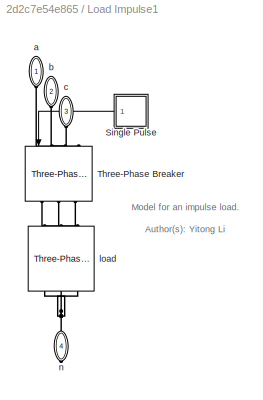
BLOCK [SubSystem] Load Impulse1
  AncestorBlock = SimplexPS/Load Impulse
  NameLocation = right
  Ports = [0, 0, 0, 0, 0, 3, 1]
  RequestExecContextInheritance = off
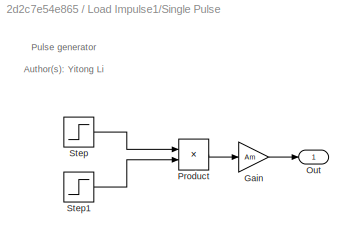
BLOCK [SubSystem] Load Impulse1/Single Pulse
  AncestorBlock = SimplexPS/Single Pulse
  NameLocation = top
  Ports = [0, 1]
  RequestExecContextInheritance = off
BLOCK [Gain] Load Impulse1/Single Pulse/Gain
  Gain = Am
BLOCK [Outport] Load Impulse1/Single Pulse/Out
BLOCK [Product] Load Impulse1/Single Pulse/Product
  Ports = [2, 1]
BLOCK [Step] Load Impulse1/Single Pulse/Step
  SampleTime = 0
  Time = t0
BLOCK [Step] Load Impulse1/Single Pulse/Step1
  After = 0
  Before = 1
  SampleTime = 0
  Time = t0+dt
BLOCK [Reference] Load Impulse1/Three-Phase Breaker  REF=powerlib/Elements/Three-Phase Breaker
  NameLocation = left
  Ports = [1, 0, 0, 0, 0, 3, 3]
  SourceBlock = powerlib/Elements/Three-Phase Breaker
  SourceProductBaseCode = PS
  SourceType = Three-Phase Breaker
BLOCK [PMIOPort] Load Impulse1/a
  NameLocation = left
  Side = Left
BLOCK [PMIOPort] Load Impulse1/b
  NameLocation = left
  Port = 2
  Side = Left
BLOCK [PMIOPort] Load Impulse1/c
  NameLocation = left
  Port = 3
  Side = Left
BLOCK [Reference] Load Impulse1/load  REF=powerlib/Elements/Three-Phase
Parallel RLC Branch
  AttributesFormatString = \n
  NameLocation = right
  Ports = [0, 0, 0, 0, 0, 3, 3]
  SourceBlock = powerlib/Elements/Three-Phase\nParallel RLC Branch
  SourceProductBaseCode = PS
  SourceType = Three-Phase Parallel RLC Branch
BLOCK [PMIOPort] Load Impulse1/n
  NameLocation = left
  Port = 4
  Side = Right
BLOCK [Scope] Scope1
  Floating = off
  NumInputPorts = 1
  Ports = [1]
  ScopeSpecificationString = Simulink.scopes.TimeScopeBlockCfg('CurrentConfiguration', extmgr.ConfigurationSet(extmgr.Configuration('Core','General UI',true),extmgr.Configuration('Core','Source UI',true),extmgr.Configuration('Sources','WiredSimulink',true),extmgr.Configuration('Visuals','Time Domain',true,'SerializedDisplays',{struct('MinYLimReal','-269.52957','MaxYLimReal','92.18224','YLabelReal','','MinYLimMag',' 0.00000','...<+1377ch>
BLOCK [Reference] Transformer10-31  REF=powerlib/Elements/Three-Phase
Transformer
(Two Windings)
  NameLocation = right
  Ports = [0, 0, 0, 0, 0, 3, 3]
  SourceBlock = powerlib/Elements/Three-Phase\nTransformer\n(Two Windings)
  SourceProductBaseCode = PS
  SourceType = Three-Phase Transformer (Two Windings)
BLOCK [Reference] Transformer11-32  REF=powerlib/Elements/Three-Phase
Transformer
(Two Windings)
  NameLocation = right
  Ports = [0, 0, 0, 0, 0, 3, 3]
  SourceBlock = powerlib/Elements/Three-Phase\nTransformer\n(Two Windings)
  SourceProductBaseCode = PS
  SourceType = Three-Phase Transformer (Two Windings)
BLOCK [Reference] Transformer12-36  REF=powerlib/Elements/Three-Phase
Transformer
(Two Windings)
  NameLocation = right
  Ports = [0, 0, 0, 0, 0, 3, 3]
  SourceBlock = powerlib/Elements/Three-Phase\nTransformer\n(Two Windings)
  SourceProductBaseCode = PS
  SourceType = Three-Phase Transformer (Two Windings)
BLOCK [Reference] Transformer13-17  REF=powerlib/Elements/Three-Phase
Transformer
(Two Windings)
  NameLocation = right
  Ports = [0, 0, 0, 0, 0, 3, 3]
  SourceBlock = powerlib/Elements/Three-Phase\nTransformer\n(Two Windings)
  SourceProductBaseCode = PS
  SourceType = Three-Phase Transformer (Two Windings)
BLOCK [Reference] Transformer16-54  REF=powerlib/Elements/Three-Phase
Transformer
(Two Windings)
  NameLocation = right
  Ports = [0, 0, 0, 0, 0, 3, 3]
  SourceBlock = powerlib/Elements/Three-Phase\nTransformer\n(Two Windings)
  SourceProductBaseCode = PS
  SourceType = Three-Phase Transformer (Two Windings)
BLOCK [Reference] Transformer19-20  REF=powerlib/Elements/Three-Phase
Transformer
(Two Windings)
  NameLocation = right
  Ports = [0, 0, 0, 0, 0, 3, 3]
  SourceBlock = powerlib/Elements/Three-Phase\nTransformer\n(Two Windings)
  SourceProductBaseCode = PS
  SourceType = Three-Phase Transformer (Two Windings)
BLOCK [Reference] Transformer2-58  REF=powerlib/Elements/Three-Phase
Transformer
(Two Windings)
  NameLocation = right
  Ports = [0, 0, 0, 0, 0, 3, 3]
  SourceBlock = powerlib/Elements/Three-Phase\nTransformer\n(Two Windings)
  SourceProductBaseCode = PS
  SourceType = Three-Phase Transformer (Two Windings)
BLOCK [Reference] Transformer3-62  REF=powerlib/Elements/Three-Phase
Transformer
(Two Windings)
  NameLocation = right
  Ports = [0, 0, 0, 0, 0, 3, 3]
  SourceBlock = powerlib/Elements/Three-Phase\nTransformer\n(Two Windings)
  SourceProductBaseCode = PS
  SourceType = Three-Phase Transformer (Two Windings)
BLOCK [Reference] Transformer34-35  REF=powerlib/Elements/Three-Phase
Transformer
(Two Windings)
  NameLocation = right
  Ports = [0, 0, 0, 0, 0, 3, 3]
  SourceBlock = powerlib/Elements/Three-Phase\nTransformer\n(Two Windings)
  SourceProductBaseCode = PS
  SourceType = Three-Phase Transformer (Two Windings)
BLOCK [Reference] Transformer4-19  REF=powerlib/Elements/Three-Phase
Transformer
(Two Windings)
  NameLocation = right
  Ports = [0, 0, 0, 0, 0, 3, 3]
  SourceBlock = powerlib/Elements/Three-Phase\nTransformer\n(Two Windings)
  SourceProductBaseCode = PS
  SourceType = Three-Phase Transformer (Two Windings)
BLOCK [Reference] Transformer5-20  REF=powerlib/Elements/Three-Phase
Transformer
(Two Windings)
  NameLocation = right
  Ports = [0, 0, 0, 0, 0, 3, 3]
  SourceBlock = powerlib/Elements/Three-Phase\nTransformer\n(Two Windings)
  SourceProductBaseCode = PS
  SourceType = Three-Phase Transformer (Two Windings)
BLOCK [Reference] Transformer6-22  REF=powerlib/Elements/Three-Phase
Transformer
(Two Windings)
  NameLocation = right
  Ports = [0, 0, 0, 0, 0, 3, 3]
  SourceBlock = powerlib/Elements/Three-Phase\nTransformer\n(Two Windings)
  SourceProductBaseCode = PS
  SourceType = Three-Phase Transformer (Two Windings)
BLOCK [Reference] Transformer63-64  REF=powerlib/Elements/Three-Phase
Transformer
(Two Windings)
  NameLocation = right
  Ports = [0, 0, 0, 0, 0, 3, 3]
  SourceBlock = powerlib/Elements/Three-Phase\nTransformer\n(Two Windings)
  SourceProductBaseCode = PS
  SourceType = Three-Phase Transformer (Two Windings)
BLOCK [Reference] Transformer64-65  REF=powerlib/Elements/Three-Phase
Transformer
(Two Windings)
  NameLocation = right
  Ports = [0, 0, 0, 0, 0, 3, 3]
  SourceBlock = powerlib/Elements/Three-Phase\nTransformer\n(Two Windings)
  SourceProductBaseCode = PS
  SourceType = Three-Phase Transformer (Two Windings)
BLOCK [Reference] Transformer8-25  REF=powerlib/Elements/Three-Phase
Transformer
(Two Windings)
  NameLocation = right
  Ports = [0, 0, 0, 0, 0, 3, 3]
  SourceBlock = powerlib/Elements/Three-Phase\nTransformer\n(Two Windings)
  SourceProductBaseCode = PS
  SourceType = Three-Phase Transformer (Two Windings)
BLOCK [Reference] Transformer9-29  REF=powerlib/Elements/Three-Phase
Transformer
(Two Windings)
  NameLocation = right
  Ports = [0, 0, 0, 0, 0, 3, 3]
  SourceBlock = powerlib/Elements/Three-Phase\nTransformer\n(Two Windings)
  SourceProductBaseCode = PS
  SourceType = Three-Phase Transformer (Two Windings)
BLOCK [Reference] VSI-PLL1  REF=SimplexPS/Grid-Following
Voltage-Source Inverter
(dq-Frame System Object)
  Ports = [0, 1, 0, 0, 0, 4]
  SourceBlock = SimplexPS/Grid-Following\nVoltage-Source Inverter\n(dq-Frame System Object)
  SourceProductName = Simplex Power Systems
BLOCK [Reference] VSI-PLL10  REF=SimplexPS/Grid-Following
Voltage-Source Inverter
(dq-Frame System Object)
  Ports = [0, 1, 0, 0, 0, 4]
  SourceBlock = SimplexPS/Grid-Following\nVoltage-Source Inverter\n(dq-Frame System Object)
  SourceProductName = Simplex Power Systems
BLOCK [Reference] VSI-PLL11  REF=SimplexPS/Grid-Following
Voltage-Source Inverter
(dq-Frame System Object)
  Ports = [0, 1, 0, 0, 0, 4]
  SourceBlock = SimplexPS/Grid-Following\nVoltage-Source Inverter\n(dq-Frame System Object)
  SourceProductName = Simplex Power Systems
BLOCK [Reference] VSI-PLL12  REF=SimplexPS/Grid-Following
Voltage-Source Inverter
(dq-Frame System Object)
  Ports = [0, 1, 0, 0, 0, 4]
  SourceBlock = SimplexPS/Grid-Following\nVoltage-Source Inverter\n(dq-Frame System Object)
  SourceProductName = Simplex Power Systems
BLOCK [Reference] VSI-PLL13  REF=SimplexPS/Grid-Following
Voltage-Source Inverter
(dq-Frame System Object)
  Ports = [0, 1, 0, 0, 0, 4]
  SourceBlock = SimplexPS/Grid-Following\nVoltage-Source Inverter\n(dq-Frame System Object)
  SourceProductName = Simplex Power Systems
BLOCK [Reference] VSI-PLL14  REF=SimplexPS/Grid-Following
Voltage-Source Inverter
(dq-Frame System Object)
  Ports = [0, 1, 0, 0, 0, 4]
  SourceBlock = SimplexPS/Grid-Following\nVoltage-Source Inverter\n(dq-Frame System Object)
  SourceProductName = Simplex Power Systems
BLOCK [Reference] VSI-PLL15  REF=SimplexPS/Grid-Following
Voltage-Source Inverter
(dq-Frame System Object)
  Ports = [0, 1, 0, 0, 0, 4]
  SourceBlock = SimplexPS/Grid-Following\nVoltage-Source Inverter\n(dq-Frame System Object)
  SourceProductName = Simplex Power Systems
BLOCK [Reference] VSI-PLL16  REF=SimplexPS/Grid-Following
Voltage-Source Inverter
(dq-Frame System Object)
  Ports = [0, 1, 0, 0, 0, 4]
  SourceBlock = SimplexPS/Grid-Following\nVoltage-Source Inverter\n(dq-Frame System Object)
  SourceProductName = Simplex Power Systems
BLOCK [Reference] VSI-PLL17  REF=SimplexPS/Grid-Following
Voltage-Source Inverter
(dq-Frame System Object)
  Ports = [0, 1, 0, 0, 0, 4]
  SourceBlock = SimplexPS/Grid-Following\nVoltage-Source Inverter\n(dq-Frame System Object)
  SourceProductName = Simplex Power Systems
BLOCK [Reference] VSI-PLL18  REF=SimplexPS/Grid-Following
Voltage-Source Inverter
(dq-Frame System Object)
  Ports = [0, 1, 0, 0, 0, 4]
  SourceBlock = SimplexPS/Grid-Following\nVoltage-Source Inverter\n(dq-Frame System Object)
  SourceProductName = Simplex Power Systems
BLOCK [Reference] VSI-PLL2  REF=SimplexPS/Grid-Following
Voltage-Source Inverter
(dq-Frame System Object)
  Ports = [0, 1, 0, 0, 0, 4]
  SourceBlock = SimplexPS/Grid-Following\nVoltage-Source Inverter\n(dq-Frame System Object)
  SourceProductName = Simplex Power Systems
BLOCK [Reference] VSI-PLL20  REF=SimplexPS/Grid-Following
Voltage-Source Inverter
(dq-Frame System Object)
  Ports = [0, 1, 0, 0, 0, 4]
  SourceBlock = SimplexPS/Grid-Following\nVoltage-Source Inverter\n(dq-Frame System Object)
  SourceProductName = Simplex Power Systems
BLOCK [Reference] VSI-PLL21  REF=SimplexPS/Grid-Following
Voltage-Source Inverter
(dq-Frame System Object)
  Ports = [0, 1, 0, 0, 0, 4]
  SourceBlock = SimplexPS/Grid-Following\nVoltage-Source Inverter\n(dq-Frame System Object)
  SourceProductName = Simplex Power Systems
BLOCK [Reference] VSI-PLL23  REF=SimplexPS/Grid-Following
Voltage-Source Inverter
(dq-Frame System Object)
  Ports = [0, 1, 0, 0, 0, 4]
  SourceBlock = SimplexPS/Grid-Following\nVoltage-Source Inverter\n(dq-Frame System Object)
  SourceProductName = Simplex Power Systems
BLOCK [Reference] VSI-PLL24  REF=SimplexPS/Grid-Following
Voltage-Source Inverter
(dq-Frame System Object)
  Ports = [0, 1, 0, 0, 0, 4]
  SourceBlock = SimplexPS/Grid-Following\nVoltage-Source Inverter\n(dq-Frame System Object)
  SourceProductName = Simplex Power Systems
BLOCK [Reference] VSI-PLL25  REF=SimplexPS/Grid-Following
Voltage-Source Inverter
(dq-Frame System Object)
  Ports = [0, 1, 0, 0, 0, 4]
  SourceBlock = SimplexPS/Grid-Following\nVoltage-Source Inverter\n(dq-Frame System Object)
  SourceProductName = Simplex Power Systems
BLOCK [Reference] VSI-PLL26  REF=SimplexPS/Grid-Following
Voltage-Source Inverter
(dq-Frame System Object)
  Ports = [0, 1, 0, 0, 0, 4]
  SourceBlock = SimplexPS/Grid-Following\nVoltage-Source Inverter\n(dq-Frame System Object)
  SourceProductName = Simplex Power Systems
BLOCK [Reference] VSI-PLL27  REF=SimplexPS/Grid-Following
Voltage-Source Inverter
(dq-Frame System Object)
  Ports = [0, 1, 0, 0, 0, 4]
  SourceBlock = SimplexPS/Grid-Following\nVoltage-Source Inverter\n(dq-Frame System Object)
  SourceProductName = Simplex Power Systems
BLOCK [Reference] VSI-PLL28  REF=SimplexPS/Grid-Following
Voltage-Source Inverter
(dq-Frame System Object)
  Ports = [0, 1, 0, 0, 0, 4]
  SourceBlock = SimplexPS/Grid-Following\nVoltage-Source Inverter\n(dq-Frame System Object)
  SourceProductName = Simplex Power Systems
BLOCK [Reference] VSI-PLL29  REF=SimplexPS/Grid-Following
Voltage-Source Inverter
(dq-Frame System Object)
  Ports = [0, 1, 0, 0, 0, 4]
  SourceBlock = SimplexPS/Grid-Following\nVoltage-Source Inverter\n(dq-Frame System Object)
  SourceProductName = Simplex Power Systems
BLOCK [Reference] VSI-PLL3  REF=SimplexPS/Grid-Following
Voltage-Source Inverter
(dq-Frame System Object)
  Ports = [0, 1, 0, 0, 0, 4]
  SourceBlock = SimplexPS/Grid-Following\nVoltage-Source Inverter\n(dq-Frame System Object)
  SourceProductName = Simplex Power Systems
BLOCK [Reference] VSI-PLL33  REF=SimplexPS/Grid-Following
Voltage-Source Inverter
(dq-Frame System Object)
  Ports = [0, 1, 0, 0, 0, 4]
  SourceBlock = SimplexPS/Grid-Following\nVoltage-Source Inverter\n(dq-Frame System Object)
  SourceProductName = Simplex Power Systems
BLOCK [Reference] VSI-PLL36  REF=SimplexPS/Grid-Following
Voltage-Source Inverter
(dq-Frame System Object)
  Ports = [0, 1, 0, 0, 0, 4]
  SourceBlock = SimplexPS/Grid-Following\nVoltage-Source Inverter\n(dq-Frame System Object)
  SourceProductName = Simplex Power Systems
BLOCK [Reference] VSI-PLL39  REF=SimplexPS/Grid-Following
Voltage-Source Inverter
(dq-Frame System Object)
  Ports = [0, 1, 0, 0, 0, 4]
  SourceBlock = SimplexPS/Grid-Following\nVoltage-Source Inverter\n(dq-Frame System Object)
  SourceProductName = Simplex Power Systems
BLOCK [Reference] VSI-PLL4  REF=SimplexPS/Grid-Following
Voltage-Source Inverter
(dq-Frame System Object)
  Ports = [0, 1, 0, 0, 0, 4]
  SourceBlock = SimplexPS/Grid-Following\nVoltage-Source Inverter\n(dq-Frame System Object)
  SourceProductName = Simplex Power Systems
BLOCK [Reference] VSI-PLL40  REF=SimplexPS/Grid-Following
Voltage-Source Inverter
(dq-Frame System Object)
  Ports = [0, 1, 0, 0, 0, 4]
  SourceBlock = SimplexPS/Grid-Following\nVoltage-Source Inverter\n(dq-Frame System Object)
  SourceProductName = Simplex Power Systems
BLOCK [Reference] VSI-PLL41  REF=SimplexPS/Grid-Following
Voltage-Source Inverter
(dq-Frame System Object)
  Ports = [0, 1, 0, 0, 0, 4]
  SourceBlock = SimplexPS/Grid-Following\nVoltage-Source Inverter\n(dq-Frame System Object)
  SourceProductName = Simplex Power Systems
BLOCK [Reference] VSI-PLL42  REF=SimplexPS/Grid-Following
Voltage-Source Inverter
(dq-Frame System Object)
  Ports = [0, 1, 0, 0, 0, 4]
  SourceBlock = SimplexPS/Grid-Following\nVoltage-Source Inverter\n(dq-Frame System Object)
  SourceProductName = Simplex Power Systems
BLOCK [Reference] VSI-PLL44  REF=SimplexPS/Grid-Following
Voltage-Source Inverter
(dq-Frame System Object)
  Ports = [0, 1, 0, 0, 0, 4]
  SourceBlock = SimplexPS/Grid-Following\nVoltage-Source Inverter\n(dq-Frame System Object)
  SourceProductName = Simplex Power Systems
BLOCK [Reference] VSI-PLL45  REF=SimplexPS/Grid-Following
Voltage-Source Inverter
(dq-Frame System Object)
  Ports = [0, 1, 0, 0, 0, 4]
  SourceBlock = SimplexPS/Grid-Following\nVoltage-Source Inverter\n(dq-Frame System Object)
  SourceProductName = Simplex Power Systems
BLOCK [Reference] VSI-PLL46  REF=SimplexPS/Grid-Following
Voltage-Source Inverter
(dq-Frame System Object)
  Ports = [0, 1, 0, 0, 0, 4]
  SourceBlock = SimplexPS/Grid-Following\nVoltage-Source Inverter\n(dq-Frame System Object)
  SourceProductName = Simplex Power Systems
BLOCK [Reference] VSI-PLL47  REF=SimplexPS/Grid-Following
Voltage-Source Inverter
(dq-Frame System Object)
  Ports = [0, 1, 0, 0, 0, 4]
  SourceBlock = SimplexPS/Grid-Following\nVoltage-Source Inverter\n(dq-Frame System Object)
  SourceProductName = Simplex Power Systems
BLOCK [Reference] VSI-PLL48  REF=SimplexPS/Grid-Following
Voltage-Source Inverter
(dq-Frame System Object)
  Ports = [0, 1, 0, 0, 0, 4]
  SourceBlock = SimplexPS/Grid-Following\nVoltage-Source Inverter\n(dq-Frame System Object)
  SourceProductName = Simplex Power Systems
BLOCK [Reference] VSI-PLL49  REF=SimplexPS/Grid-Following
Voltage-Source Inverter
(dq-Frame System Object)
  Ports = [0, 1, 0, 0, 0, 4]
  SourceBlock = SimplexPS/Grid-Following\nVoltage-Source Inverter\n(dq-Frame System Object)
  SourceProductName = Simplex Power Systems
BLOCK [Reference] VSI-PLL5  REF=SimplexPS/Grid-Following
Voltage-Source Inverter
(dq-Frame System Object)
  Ports = [0, 1, 0, 0, 0, 4]
  SourceBlock = SimplexPS/Grid-Following\nVoltage-Source Inverter\n(dq-Frame System Object)
  SourceProductName = Simplex Power Systems
BLOCK [Reference] VSI-PLL50  REF=SimplexPS/Grid-Following
Voltage-Source Inverter
(dq-Frame System Object)
  Ports = [0, 1, 0, 0, 0, 4]
  SourceBlock = SimplexPS/Grid-Following\nVoltage-Source Inverter\n(dq-Frame System Object)
  SourceProductName = Simplex Power Systems
BLOCK [Reference] VSI-PLL51  REF=SimplexPS/Grid-Following
Voltage-Source Inverter
(dq-Frame System Object)
  Ports = [0, 1, 0, 0, 0, 4]
  SourceBlock = SimplexPS/Grid-Following\nVoltage-Source Inverter\n(dq-Frame System Object)
  SourceProductName = Simplex Power Systems
BLOCK [Reference] VSI-PLL52  REF=SimplexPS/Grid-Following
Voltage-Source Inverter
(dq-Frame System Object)
  Ports = [0, 1, 0, 0, 0, 4]
  SourceBlock = SimplexPS/Grid-Following\nVoltage-Source Inverter\n(dq-Frame System Object)
  SourceProductName = Simplex Power Systems
BLOCK [Reference] VSI-PLL53  REF=SimplexPS/Grid-Following
Voltage-Source Inverter
(dq-Frame System Object)
  Ports = [0, 1, 0, 0, 0, 4]
  SourceBlock = SimplexPS/Grid-Following\nVoltage-Source Inverter\n(dq-Frame System Object)
  SourceProductName = Simplex Power Systems
BLOCK [Reference] VSI-PLL55  REF=SimplexPS/Grid-Following
Voltage-Source Inverter
(dq-Frame System Object)
  Ports = [0, 1, 0, 0, 0, 4]
  SourceBlock = SimplexPS/Grid-Following\nVoltage-Source Inverter\n(dq-Frame System Object)
  SourceProductName = Simplex Power Systems
BLOCK [Reference] VSI-PLL56  REF=SimplexPS/Grid-Following
Voltage-Source Inverter
(dq-Frame System Object)
  Ports = [0, 1, 0, 0, 0, 4]
  SourceBlock = SimplexPS/Grid-Following\nVoltage-Source Inverter\n(dq-Frame System Object)
  SourceProductName = Simplex Power Systems
BLOCK [Reference] VSI-PLL59  REF=SimplexPS/Grid-Following
Voltage-Source Inverter
(dq-Frame System Object)
  Ports = [0, 1, 0, 0, 0, 4]
  SourceBlock = SimplexPS/Grid-Following\nVoltage-Source Inverter\n(dq-Frame System Object)
  SourceProductName = Simplex Power Systems
BLOCK [Reference] VSI-PLL6  REF=SimplexPS/Grid-Following
Voltage-Source Inverter
(dq-Frame System Object)
  Ports = [0, 1, 0, 0, 0, 4]
  SourceBlock = SimplexPS/Grid-Following\nVoltage-Source Inverter\n(dq-Frame System Object)
  SourceProductName = Simplex Power Systems
BLOCK [Reference] VSI-PLL60  REF=SimplexPS/Grid-Following
Voltage-Source Inverter
(dq-Frame System Object)
  Ports = [0, 1, 0, 0, 0, 4]
  SourceBlock = SimplexPS/Grid-Following\nVoltage-Source Inverter\n(dq-Frame System Object)
  SourceProductName = Simplex Power Systems
BLOCK [Reference] VSI-PLL61  REF=SimplexPS/Grid-Following
Voltage-Source Inverter
(dq-Frame System Object)
  Ports = [0, 1, 0, 0, 0, 4]
  SourceBlock = SimplexPS/Grid-Following\nVoltage-Source Inverter\n(dq-Frame System Object)
  SourceProductName = Simplex Power Systems
BLOCK [Reference] VSI-PLL64  REF=SimplexPS/Grid-Following
Voltage-Source Inverter
(dq-Frame System Object)
  Ports = [0, 1, 0, 0, 0, 4]
  SourceBlock = SimplexPS/Grid-Following\nVoltage-Source Inverter\n(dq-Frame System Object)
  SourceProductName = Simplex Power Systems
BLOCK [Reference] VSI-PLL67  REF=SimplexPS/Grid-Following
Voltage-Source Inverter
(dq-Frame System Object)
  Ports = [0, 1, 0, 0, 0, 4]
  SourceBlock = SimplexPS/Grid-Following\nVoltage-Source Inverter\n(dq-Frame System Object)
  SourceProductName = Simplex Power Systems
BLOCK [Reference] VSI-PLL68  REF=SimplexPS/Grid-Following
Voltage-Source Inverter
(dq-Frame System Object)
  Ports = [0, 1, 0, 0, 0, 4]
  SourceBlock = SimplexPS/Grid-Following\nVoltage-Source Inverter\n(dq-Frame System Object)
  SourceProductName = Simplex Power Systems
BLOCK [Reference] VSI-PLL7  REF=SimplexPS/Grid-Following
Voltage-Source Inverter
(dq-Frame System Object)
  Ports = [0, 1, 0, 0, 0, 4]
  SourceBlock = SimplexPS/Grid-Following\nVoltage-Source Inverter\n(dq-Frame System Object)
  SourceProductName = Simplex Power Systems
BLOCK [Reference] VSI-PLL8  REF=SimplexPS/Grid-Following
Voltage-Source Inverter
(dq-Frame System Object)
  Ports = [0, 1, 0, 0, 0, 4]
  SourceBlock = SimplexPS/Grid-Following\nVoltage-Source Inverter\n(dq-Frame System Object)
  SourceProductName = Simplex Power Systems
BLOCK [Reference] VSI-PLL9  REF=SimplexPS/Grid-Following
Voltage-Source Inverter
(dq-Frame System Object)
  Ports = [0, 1, 0, 0, 0, 4]
  SourceBlock = SimplexPS/Grid-Following\nVoltage-Source Inverter\n(dq-Frame System Object)
  SourceProductName = Simplex Power Systems
BLOCK [Reference] powergui  REF=powerlib/powergui
  Ports = []
  Priority = 1
  SourceBlock = powerlib/powergui
  SourceProductBaseCode = PS
  SourceType = PSB option menu block
ANNOTATION Load Impulse1: Model for an impulse load. Author(s): Yitong Li
ANNOTATION Load Impulse1/Single Pulse: Pulse generator Author(s): Yitong Li
LINE Current Measurement1:1 -> Scope1:1
LINE DS-Bus10:1 -> D-Scope10:1
LINE DS-Bus10:2 -> D-Scope10:2
LINE DS-Bus10:3 -> D-Scope10:3
LINE DS-Bus10:4 -> D-Scope10:4
LINE DS-Bus10:5 -> D-Scope10:5
LINE DS-Bus10:6 -> D-Scope10:6
LINE DS-Bus10:7 -> D-Scope10:7
LINE DS-Bus11:1 -> D-Scope11:1
LINE DS-Bus11:2 -> D-Scope11:2
LINE DS-Bus11:3 -> D-Scope11:3
LINE DS-Bus11:4 -> D-Scope11:4
LINE DS-Bus11:5 -> D-Scope11:5
LINE DS-Bus11:6 -> D-Scope11:6
LINE DS-Bus11:7 -> D-Scope11:7
LINE DS-Bus12:1 -> D-Scope12:1
LINE DS-Bus12:2 -> D-Scope12:2
LINE DS-Bus12:3 -> D-Scope12:3
LINE DS-Bus12:4 -> D-Scope12:4
LINE DS-Bus12:5 -> D-Scope12:5
LINE DS-Bus12:6 -> D-Scope12:6
LINE DS-Bus12:7 -> D-Scope12:7
LINE DS-Bus13:1 -> D-Scope13:1
LINE DS-Bus13:2 -> D-Scope13:2
LINE DS-Bus13:3 -> D-Scope13:3
LINE DS-Bus13:4 -> D-Scope13:4
LINE DS-Bus13:5 -> D-Scope13:5
LINE DS-Bus13:6 -> D-Scope13:6
LINE DS-Bus13:7 -> D-Scope13:7
LINE DS-Bus14:1 -> D-Scope14:1
LINE DS-Bus14:2 -> D-Scope14:2
LINE DS-Bus14:3 -> D-Scope14:3
LINE DS-Bus14:4 -> D-Scope14:4
LINE DS-Bus14:5 -> D-Scope14:5
LINE DS-Bus14:6 -> D-Scope14:6
LINE DS-Bus14:7 -> D-Scope14:7
LINE DS-Bus15:1 -> D-Scope15:1
LINE DS-Bus15:2 -> D-Scope15:2
LINE DS-Bus15:3 -> D-Scope15:3
LINE DS-Bus15:4 -> D-Scope15:4
LINE DS-Bus15:5 -> D-Scope15:5
LINE DS-Bus15:6 -> D-Scope15:6
LINE DS-Bus15:7 -> D-Scope15:7
LINE DS-Bus16:1 -> D-Scope16:1
LINE DS-Bus16:2 -> D-Scope16:2
LINE DS-Bus16:3 -> D-Scope16:3
LINE DS-Bus16:4 -> D-Scope16:4
LINE DS-Bus16:5 -> D-Scope16:5
LINE DS-Bus16:6 -> D-Scope16:6
LINE DS-Bus16:7 -> D-Scope16:7
LINE DS-Bus17:1 -> D-Scope17:1
LINE DS-Bus17:2 -> D-Scope17:2
LINE DS-Bus17:3 -> D-Scope17:3
LINE DS-Bus17:4 -> D-Scope17:4
LINE DS-Bus17:5 -> D-Scope17:5
LINE DS-Bus17:6 -> D-Scope17:6
LINE DS-Bus17:7 -> D-Scope17:7
LINE DS-Bus18:1 -> D-Scope18:1
LINE DS-Bus18:2 -> D-Scope18:2
LINE DS-Bus18:3 -> D-Scope18:3
LINE DS-Bus18:4 -> D-Scope18:4
LINE DS-Bus18:5 -> D-Scope18:5
LINE DS-Bus18:6 -> D-Scope18:6
LINE DS-Bus18:7 -> D-Scope18:7
LINE DS-Bus1:1 -> D-Scope1:1
LINE DS-Bus1:2 -> D-Scope1:2
LINE DS-Bus1:3 -> D-Scope1:3
LINE DS-Bus1:4 -> D-Scope1:4
LINE DS-Bus1:5 -> D-Scope1:5
LINE DS-Bus1:6 -> D-Scope1:6
LINE DS-Bus1:7 -> D-Scope1:7
LINE DS-Bus20:1 -> D-Scope20:1
LINE DS-Bus20:2 -> D-Scope20:2
LINE DS-Bus20:3 -> D-Scope20:3
LINE DS-Bus20:4 -> D-Scope20:4
LINE DS-Bus20:5 -> D-Scope20:5
LINE DS-Bus20:6 -> D-Scope20:6
LINE DS-Bus20:7 -> D-Scope20:7
LINE DS-Bus21:1 -> D-Scope21:1
LINE DS-Bus21:2 -> D-Scope21:2
LINE DS-Bus21:3 -> D-Scope21:3
LINE DS-Bus21:4 -> D-Scope21:4
LINE DS-Bus21:5 -> D-Scope21:5
LINE DS-Bus21:6 -> D-Scope21:6
LINE DS-Bus21:7 -> D-Scope21:7
LINE DS-Bus23:1 -> D-Scope23:1
LINE DS-Bus23:2 -> D-Scope23:2
LINE DS-Bus23:3 -> D-Scope23:3
LINE DS-Bus23:4 -> D-Scope23:4
LINE DS-Bus23:5 -> D-Scope23:5
LINE DS-Bus23:6 -> D-Scope23:6
LINE DS-Bus23:7 -> D-Scope23:7
LINE DS-Bus24:1 -> D-Scope24:1
LINE DS-Bus24:2 -> D-Scope24:2
LINE DS-Bus24:3 -> D-Scope24:3
LINE DS-Bus24:4 -> D-Scope24:4
LINE DS-Bus24:5 -> D-Scope24:5
LINE DS-Bus24:6 -> D-Scope24:6
LINE DS-Bus24:7 -> D-Scope24:7
LINE DS-Bus25:1 -> D-Scope25:1
LINE DS-Bus25:2 -> D-Scope25:2
LINE DS-Bus25:3 -> D-Scope25:3
LINE DS-Bus25:4 -> D-Scope25:4
LINE DS-Bus25:5 -> D-Scope25:5
LINE DS-Bus25:6 -> D-Scope25:6
LINE DS-Bus25:7 -> D-Scope25:7
LINE DS-Bus26:1 -> D-Scope26:1
LINE DS-Bus26:2 -> D-Scope26:2
LINE DS-Bus26:3 -> D-Scope26:3
LINE DS-Bus26:4 -> D-Scope26:4
LINE DS-Bus26:5 -> D-Scope26:5
LINE DS-Bus26:6 -> D-Scope26:6
LINE DS-Bus26:7 -> D-Scope26:7
LINE DS-Bus27:1 -> D-Scope27:1
LINE DS-Bus27:2 -> D-Scope27:2
LINE DS-Bus27:3 -> D-Scope27:3
LINE DS-Bus27:4 -> D-Scope27:4
LINE DS-Bus27:5 -> D-Scope27:5
LINE DS-Bus27:6 -> D-Scope27:6
LINE DS-Bus27:7 -> D-Scope27:7
LINE DS-Bus28:1 -> D-Scope28:1
LINE DS-Bus28:2 -> D-Scope28:2
LINE DS-Bus28:3 -> D-Scope28:3
LINE DS-Bus28:4 -> D-Scope28:4
LINE DS-Bus28:5 -> D-Scope28:5
LINE DS-Bus28:6 -> D-Scope28:6
LINE DS-Bus28:7 -> D-Scope28:7
LINE DS-Bus29:1 -> D-Scope29:1
LINE DS-Bus29:2 -> D-Scope29:2
LINE DS-Bus29:3 -> D-Scope29:3
LINE DS-Bus29:4 -> D-Scope29:4
LINE DS-Bus29:5 -> D-Scope29:5
LINE DS-Bus29:6 -> D-Scope29:6
LINE DS-Bus29:7 -> D-Scope29:7
LINE DS-Bus2:1 -> D-Scope2:1
LINE DS-Bus2:2 -> D-Scope2:2
LINE DS-Bus2:3 -> D-Scope2:3
LINE DS-Bus2:4 -> D-Scope2:4
LINE DS-Bus2:5 -> D-Scope2:5
LINE DS-Bus2:6 -> D-Scope2:6
LINE DS-Bus2:7 -> D-Scope2:7
LINE DS-Bus33:1 -> D-Scope33:1
LINE DS-Bus33:2 -> D-Scope33:2
LINE DS-Bus33:3 -> D-Scope33:3
LINE DS-Bus33:4 -> D-Scope33:4
LINE DS-Bus33:5 -> D-Scope33:5
LINE DS-Bus33:6 -> D-Scope33:6
LINE DS-Bus33:7 -> D-Scope33:7
LINE DS-Bus36:1 -> D-Scope36:1
LINE DS-Bus36:2 -> D-Scope36:2
LINE DS-Bus36:3 -> D-Scope36:3
LINE DS-Bus36:4 -> D-Scope36:4
LINE DS-Bus36:5 -> D-Scope36:5
LINE DS-Bus36:6 -> D-Scope36:6
LINE DS-Bus36:7 -> D-Scope36:7
LINE DS-Bus39:1 -> D-Scope39:1
LINE DS-Bus39:2 -> D-Scope39:2
LINE DS-Bus39:3 -> D-Scope39:3
LINE DS-Bus39:4 -> D-Scope39:4
LINE DS-Bus39:5 -> D-Scope39:5
LINE DS-Bus39:6 -> D-Scope39:6
LINE DS-Bus39:7 -> D-Scope39:7
LINE DS-Bus3:1 -> D-Scope3:1
LINE DS-Bus3:2 -> D-Scope3:2
LINE DS-Bus3:3 -> D-Scope3:3
LINE DS-Bus3:4 -> D-Scope3:4
LINE DS-Bus3:5 -> D-Scope3:5
LINE DS-Bus3:6 -> D-Scope3:6
LINE DS-Bus3:7 -> D-Scope3:7
LINE DS-Bus40:1 -> D-Scope40:1
LINE DS-Bus40:2 -> D-Scope40:2
LINE DS-Bus40:3 -> D-Scope40:3
LINE DS-Bus40:4 -> D-Scope40:4
LINE DS-Bus40:5 -> D-Scope40:5
LINE DS-Bus40:6 -> D-Scope40:6
LINE DS-Bus40:7 -> D-Scope40:7
LINE DS-Bus41:1 -> D-Scope41:1
LINE DS-Bus41:2 -> D-Scope41:2
LINE DS-Bus41:3 -> D-Scope41:3
LINE DS-Bus41:4 -> D-Scope41:4
LINE DS-Bus41:5 -> D-Scope41:5
LINE DS-Bus41:6 -> D-Scope41:6
LINE DS-Bus41:7 -> D-Scope41:7
LINE DS-Bus42:1 -> D-Scope42:1
LINE DS-Bus42:2 -> D-Scope42:2
LINE DS-Bus42:3 -> D-Scope42:3
LINE DS-Bus42:4 -> D-Scope42:4
LINE DS-Bus42:5 -> D-Scope42:5
LINE DS-Bus42:6 -> D-Scope42:6
LINE DS-Bus42:7 -> D-Scope42:7
LINE DS-Bus44:1 -> D-Scope44:1
LINE DS-Bus44:2 -> D-Scope44:2
LINE DS-Bus44:3 -> D-Scope44:3
LINE DS-Bus44:4 -> D-Scope44:4
LINE DS-Bus44:5 -> D-Scope44:5
LINE DS-Bus44:6 -> D-Scope44:6
LINE DS-Bus44:7 -> D-Scope44:7
LINE DS-Bus45:1 -> D-Scope45:1
LINE DS-Bus45:2 -> D-Scope45:2
LINE DS-Bus45:3 -> D-Scope45:3
LINE DS-Bus45:4 -> D-Scope45:4
LINE DS-Bus45:5 -> D-Scope45:5
LINE DS-Bus45:6 -> D-Scope45:6
LINE DS-Bus45:7 -> D-Scope45:7
LINE DS-Bus46:1 -> D-Scope46:1
LINE DS-Bus46:2 -> D-Scope46:2
LINE DS-Bus46:3 -> D-Scope46:3
LINE DS-Bus46:4 -> D-Scope46:4
LINE DS-Bus46:5 -> D-Scope46:5
LINE DS-Bus46:6 -> D-Scope46:6
LINE DS-Bus46:7 -> D-Scope46:7
LINE DS-Bus47:1 -> D-Scope47:1
LINE DS-Bus47:2 -> D-Scope47:2
LINE DS-Bus47:3 -> D-Scope47:3
LINE DS-Bus47:4 -> D-Scope47:4
LINE DS-Bus47:5 -> D-Scope47:5
LINE DS-Bus47:6 -> D-Scope47:6
LINE DS-Bus47:7 -> D-Scope47:7
LINE DS-Bus48:1 -> D-Scope48:1
LINE DS-Bus48:2 -> D-Scope48:2
LINE DS-Bus48:3 -> D-Scope48:3
LINE DS-Bus48:4 -> D-Scope48:4
LINE DS-Bus48:5 -> D-Scope48:5
LINE DS-Bus48:6 -> D-Scope48:6
LINE DS-Bus48:7 -> D-Scope48:7
LINE DS-Bus49:1 -> D-Scope49:1
LINE DS-Bus49:2 -> D-Scope49:2
LINE DS-Bus49:3 -> D-Scope49:3
LINE DS-Bus49:4 -> D-Scope49:4
LINE DS-Bus49:5 -> D-Scope49:5
LINE DS-Bus49:6 -> D-Scope49:6
LINE DS-Bus49:7 -> D-Scope49:7
LINE DS-Bus4:1 -> D-Scope4:1
LINE DS-Bus4:2 -> D-Scope4:2
LINE DS-Bus4:3 -> D-Scope4:3
LINE DS-Bus4:4 -> D-Scope4:4
LINE DS-Bus4:5 -> D-Scope4:5
LINE DS-Bus4:6 -> D-Scope4:6
LINE DS-Bus4:7 -> D-Scope4:7
LINE DS-Bus50:1 -> D-Scope50:1
LINE DS-Bus50:2 -> D-Scope50:2
LINE DS-Bus50:3 -> D-Scope50:3
LINE DS-Bus50:4 -> D-Scope50:4
LINE DS-Bus50:5 -> D-Scope50:5
LINE DS-Bus50:6 -> D-Scope50:6
LINE DS-Bus50:7 -> D-Scope50:7
LINE DS-Bus51:1 -> D-Scope51:1
LINE DS-Bus51:2 -> D-Scope51:2
LINE DS-Bus51:3 -> D-Scope51:3
LINE DS-Bus51:4 -> D-Scope51:4
LINE DS-Bus51:5 -> D-Scope51:5
LINE DS-Bus51:6 -> D-Scope51:6
LINE DS-Bus51:7 -> D-Scope51:7
LINE DS-Bus52:1 -> D-Scope52:1
LINE DS-Bus52:2 -> D-Scope52:2
LINE DS-Bus52:3 -> D-Scope52:3
LINE DS-Bus52:4 -> D-Scope52:4
LINE DS-Bus52:5 -> D-Scope52:5
LINE DS-Bus52:6 -> D-Scope52:6
LINE DS-Bus52:7 -> D-Scope52:7
LINE DS-Bus53:1 -> D-Scope53:1
LINE DS-Bus53:2 -> D-Scope53:2
LINE DS-Bus53:3 -> D-Scope53:3
LINE DS-Bus53:4 -> D-Scope53:4
LINE DS-Bus53:5 -> D-Scope53:5
LINE DS-Bus53:6 -> D-Scope53:6
LINE DS-Bus53:7 -> D-Scope53:7
LINE DS-Bus55:1 -> D-Scope55:1
LINE DS-Bus55:2 -> D-Scope55:2
LINE DS-Bus55:3 -> D-Scope55:3
LINE DS-Bus55:4 -> D-Scope55:4
LINE DS-Bus55:5 -> D-Scope55:5
LINE DS-Bus55:6 -> D-Scope55:6
LINE DS-Bus55:7 -> D-Scope55:7
LINE DS-Bus56:1 -> D-Scope56:1
LINE DS-Bus56:2 -> D-Scope56:2
LINE DS-Bus56:3 -> D-Scope56:3
LINE DS-Bus56:4 -> D-Scope56:4
LINE DS-Bus56:5 -> D-Scope56:5
LINE DS-Bus56:6 -> D-Scope56:6
LINE DS-Bus56:7 -> D-Scope56:7
LINE DS-Bus59:1 -> D-Scope59:1
LINE DS-Bus59:2 -> D-Scope59:2
LINE DS-Bus59:3 -> D-Scope59:3
LINE DS-Bus59:4 -> D-Scope59:4
LINE DS-Bus59:5 -> D-Scope59:5
LINE DS-Bus59:6 -> D-Scope59:6
LINE DS-Bus59:7 -> D-Scope59:7
LINE DS-Bus5:1 -> D-Scope5:1
LINE DS-Bus5:2 -> D-Scope5:2
LINE DS-Bus5:3 -> D-Scope5:3
LINE DS-Bus5:4 -> D-Scope5:4
LINE DS-Bus5:5 -> D-Scope5:5
LINE DS-Bus5:6 -> D-Scope5:6
LINE DS-Bus5:7 -> D-Scope5:7
LINE DS-Bus60:1 -> D-Scope60:1
LINE DS-Bus60:2 -> D-Scope60:2
LINE DS-Bus60:3 -> D-Scope60:3
LINE DS-Bus60:4 -> D-Scope60:4
LINE DS-Bus60:5 -> D-Scope60:5
LINE DS-Bus60:6 -> D-Scope60:6
LINE DS-Bus60:7 -> D-Scope60:7
LINE DS-Bus61:1 -> D-Scope61:1
LINE DS-Bus61:2 -> D-Scope61:2
LINE DS-Bus61:3 -> D-Scope61:3
LINE DS-Bus61:4 -> D-Scope61:4
LINE DS-Bus61:5 -> D-Scope61:5
LINE DS-Bus61:6 -> D-Scope61:6
LINE DS-Bus61:7 -> D-Scope61:7
LINE DS-Bus64:1 -> D-Scope64:1
LINE DS-Bus64:2 -> D-Scope64:2
LINE DS-Bus64:3 -> D-Scope64:3
LINE DS-Bus64:4 -> D-Scope64:4
LINE DS-Bus64:5 -> D-Scope64:5
LINE DS-Bus64:6 -> D-Scope64:6
LINE DS-Bus64:7 -> D-Scope64:7
LINE DS-Bus67:1 -> D-Scope67:1
LINE DS-Bus67:2 -> D-Scope67:2
LINE DS-Bus67:3 -> D-Scope67:3
LINE DS-Bus67:4 -> D-Scope67:4
LINE DS-Bus67:5 -> D-Scope67:5
LINE DS-Bus67:6 -> D-Scope67:6
LINE DS-Bus67:7 -> D-Scope67:7
LINE DS-Bus68:1 -> D-Scope68:1
LINE DS-Bus68:2 -> D-Scope68:2
LINE DS-Bus68:3 -> D-Scope68:3
LINE DS-Bus68:4 -> D-Scope68:4
LINE DS-Bus68:5 -> D-Scope68:5
LINE DS-Bus68:6 -> D-Scope68:6
LINE DS-Bus68:7 -> D-Scope68:7
LINE DS-Bus6:1 -> D-Scope6:1
LINE DS-Bus6:2 -> D-Scope6:2
LINE DS-Bus6:3 -> D-Scope6:3
LINE DS-Bus6:4 -> D-Scope6:4
LINE DS-Bus6:5 -> D-Scope6:5
LINE DS-Bus6:6 -> D-Scope6:6
LINE DS-Bus6:7 -> D-Scope6:7
LINE DS-Bus7:1 -> D-Scope7:1
LINE DS-Bus7:2 -> D-Scope7:2
LINE DS-Bus7:3 -> D-Scope7:3
LINE DS-Bus7:4 -> D-Scope7:4
LINE DS-Bus7:5 -> D-Scope7:5
LINE DS-Bus7:6 -> D-Scope7:6
LINE DS-Bus7:7 -> D-Scope7:7
LINE DS-Bus8:1 -> D-Scope8:1
LINE DS-Bus8:2 -> D-Scope8:2
LINE DS-Bus8:3 -> D-Scope8:3
LINE DS-Bus8:4 -> D-Scope8:4
LINE DS-Bus8:5 -> D-Scope8:5
LINE DS-Bus8:6 -> D-Scope8:6
LINE DS-Bus8:7 -> D-Scope8:7
LINE DS-Bus9:1 -> D-Scope9:1
LINE DS-Bus9:2 -> D-Scope9:2
LINE DS-Bus9:3 -> D-Scope9:3
LINE DS-Bus9:4 -> D-Scope9:4
LINE DS-Bus9:5 -> D-Scope9:5
LINE DS-Bus9:6 -> D-Scope9:6
LINE DS-Bus9:7 -> D-Scope9:7
LINE VSI-PLL10:1 -> DS-Bus10:1
LINE VSI-PLL11:1 -> DS-Bus11:1
LINE VSI-PLL12:1 -> DS-Bus12:1
LINE VSI-PLL13:1 -> DS-Bus13:1
LINE VSI-PLL14:1 -> DS-Bus14:1
LINE VSI-PLL15:1 -> DS-Bus15:1
LINE VSI-PLL16:1 -> DS-Bus16:1
LINE VSI-PLL17:1 -> DS-Bus17:1
LINE VSI-PLL18:1 -> DS-Bus18:1
LINE VSI-PLL1:1 -> DS-Bus1:1
LINE VSI-PLL20:1 -> DS-Bus20:1
LINE VSI-PLL21:1 -> DS-Bus21:1
LINE VSI-PLL23:1 -> DS-Bus23:1
LINE VSI-PLL24:1 -> DS-Bus24:1
LINE VSI-PLL25:1 -> DS-Bus25:1
LINE VSI-PLL26:1 -> DS-Bus26:1
LINE VSI-PLL27:1 -> DS-Bus27:1
LINE VSI-PLL28:1 -> DS-Bus28:1
LINE VSI-PLL29:1 -> DS-Bus29:1
LINE VSI-PLL2:1 -> DS-Bus2:1
LINE VSI-PLL33:1 -> DS-Bus33:1
LINE VSI-PLL36:1 -> DS-Bus36:1
LINE VSI-PLL39:1 -> DS-Bus39:1
LINE VSI-PLL3:1 -> DS-Bus3:1
LINE VSI-PLL40:1 -> DS-Bus40:1
LINE VSI-PLL41:1 -> DS-Bus41:1
LINE VSI-PLL42:1 -> DS-Bus42:1
LINE VSI-PLL44:1 -> DS-Bus44:1
LINE VSI-PLL45:1 -> DS-Bus45:1
LINE VSI-PLL46:1 -> DS-Bus46:1
LINE VSI-PLL47:1 -> DS-Bus47:1
LINE VSI-PLL48:1 -> DS-Bus48:1
LINE VSI-PLL49:1 -> DS-Bus49:1
LINE VSI-PLL4:1 -> DS-Bus4:1
LINE VSI-PLL50:1 -> DS-Bus50:1
LINE VSI-PLL51:1 -> DS-Bus51:1
LINE VSI-PLL52:1 -> DS-Bus52:1
LINE VSI-PLL53:1 -> DS-Bus53:1
LINE VSI-PLL55:1 -> DS-Bus55:1
LINE VSI-PLL56:1 -> DS-Bus56:1
LINE VSI-PLL59:1 -> DS-Bus59:1
LINE VSI-PLL5:1 -> DS-Bus5:1
LINE VSI-PLL60:1 -> DS-Bus60:1
LINE VSI-PLL61:1 -> DS-Bus61:1
LINE VSI-PLL64:1 -> DS-Bus64:1
LINE VSI-PLL67:1 -> DS-Bus67:1
LINE VSI-PLL68:1 -> DS-Bus68:1
LINE VSI-PLL6:1 -> DS-Bus6:1
LINE VSI-PLL7:1 -> DS-Bus7:1
LINE VSI-PLL8:1 -> DS-Bus8:1
LINE VSI-PLL9:1 -> DS-Bus9:1
PLINE Branch1-18:LConn1 -- Bus1:RConn1
PLINE Branch1-18:LConn2 -- Bus1:RConn2
PLINE Branch1-18:LConn3 -- Bus1:RConn3
PNET net1: Branch1-18:RConn1 -- Branch18-42:LConn1 -- Branch18-49:LConn1 -- Branch18-50:LConn1 -- Bus18:RConn1
PNET net2: Branch1-18:RConn2 -- Branch18-42:LConn2 -- Branch18-49:LConn2 -- Branch18-50:LConn2 -- Bus18:RConn2
PNET net3: Branch1-18:RConn3 -- Branch18-42:LConn3 -- Branch18-49:LConn3 -- Branch18-50:LConn3 -- Bus18:RConn3
PLINE Branch10-31:LConn1 -- Transformer10-31:RConn1
PLINE Branch10-31:LConn2 -- Transformer10-31:RConn2
PLINE Branch10-31:LConn3 -- Transformer10-31:RConn3
PNET net4: Branch10-31:RConn1 -- Branch30-31:RConn1 -- Branch31-38:LConn1 -- Branch31-53:LConn1 -- Bus31:RConn1
PNET net5: Branch10-31:RConn2 -- Branch30-31:RConn2 -- Branch31-38:LConn2 -- Branch31-53:LConn2 -- Bus31:RConn2
PNET net6: Branch10-31:RConn3 -- Branch30-31:RConn3 -- Branch31-38:LConn3 -- Branch31-53:LConn3 -- Bus31:RConn3
PLINE Branch11-32:LConn1 -- Transformer11-32:RConn1
PLINE Branch11-32:LConn2 -- Transformer11-32:RConn2
PLINE Branch11-32:LConn3 -- Transformer11-32:RConn3
PNET net7: Branch11-32:RConn1 -- Branch30-32:RConn1 -- Branch32-33:LConn1 -- Bus32:RConn1
PNET net8: Branch11-32:RConn2 -- Branch30-32:RConn2 -- Branch32-33:LConn2 -- Bus32:RConn2
PNET net9: Branch11-32:RConn3 -- Branch30-32:RConn3 -- Branch32-33:LConn3 -- Bus32:RConn3
PLINE Branch12-36:LConn1 -- Transformer12-36:RConn1
PLINE Branch12-36:LConn2 -- Transformer12-36:RConn2
PLINE Branch12-36:LConn3 -- Transformer12-36:RConn3
PNET net10: Branch12-36:RConn1 -- Branch17-36:RConn1 -- Branch34-36:RConn1 -- Branch36-61:LConn1 -- Bus36:RConn1
PNET net11: Branch12-36:RConn2 -- Branch17-36:RConn2 -- Branch34-36:RConn2 -- Branch36-61:LConn2 -- Bus36:RConn2
PNET net12: Branch12-36:RConn3 -- Branch17-36:RConn3 -- Branch34-36:RConn3 -- Branch36-61:LConn3 -- Bus36:RConn3
PLINE Branch13-17:LConn1 -- Transformer13-17:RConn1
PLINE Branch13-17:LConn2 -- Transformer13-17:RConn2
PLINE Branch13-17:LConn3 -- Transformer13-17:RConn3
PNET net13: Branch13-17:RConn1 -- Branch17-36:LConn1 -- Branch17-43:LConn1 -- Bus17:RConn1
PNET net14: Branch13-17:RConn2 -- Branch17-36:LConn2 -- Branch17-43:LConn2 -- Bus17:RConn2
PNET net15: Branch13-17:RConn3 -- Branch17-36:LConn3 -- Branch17-43:LConn3 -- Bus17:RConn3
PLINE Branch14-41:LConn1 -- Bus14:RConn1
PLINE Branch14-41:LConn2 -- Bus14:RConn2
PLINE Branch14-41:LConn3 -- Bus14:RConn3
PNET net16: Branch14-41:RConn1 -- Branch40-41:RConn1 -- Branch41-42:LConn1 -- Bus41:RConn1
PNET net17: Branch14-41:RConn2 -- Branch40-41:RConn2 -- Branch41-42:LConn2 -- Bus41:RConn2
PNET net18: Branch14-41:RConn3 -- Branch40-41:RConn3 -- Branch41-42:LConn3 -- Bus41:RConn3
PLINE Branch15-42:LConn1 -- Bus15:RConn1
PLINE Branch15-42:LConn2 -- Bus15:RConn2
PLINE Branch15-42:LConn3 -- Bus15:RConn3
PNET net19: Branch15-42:RConn1 -- Branch18-42:RConn1 -- Branch41-42:RConn1 -- Bus42:RConn1
PNET net20: Branch15-42:RConn2 -- Branch18-42:RConn2 -- Branch41-42:RConn2 -- Bus42:RConn2
PNET net21: Branch15-42:RConn3 -- Branch18-42:RConn3 -- Branch41-42:RConn3 -- Bus42:RConn3
PLINE Branch16-54:LConn1 -- Transformer16-54:RConn1
PLINE Branch16-54:LConn2 -- Transformer16-54:RConn2
PLINE Branch16-54:LConn3 -- Transformer16-54:RConn3
PNET net22: Branch16-54:RConn1 -- Branch25-54:RConn1 -- Branch53-54:RConn1 -- Branch54-55:LConn1 -- Bus54:RConn1
PNET net23: Branch16-54:RConn2 -- Branch25-54:RConn2 -- Branch53-54:RConn2 -- Branch54-55:LConn2 -- Bus54:RConn2
PNET net24: Branch16-54:RConn3 -- Branch25-54:RConn3 -- Branch53-54:RConn3 -- Branch54-55:LConn3 -- Bus54:RConn3
PNET net25: Branch17-43:RConn1 -- Branch43-44:LConn1 -- Bus43:RConn1
PNET net26: Branch17-43:RConn2 -- Branch43-44:LConn2 -- Bus43:RConn2
PNET net27: Branch17-43:RConn3 -- Branch43-44:LConn3 -- Bus43:RConn3
PNET net28: Branch18-49:RConn1 -- Branch46-49:RConn1 -- Bus49:RConn1
PNET net29: Branch18-49:RConn2 -- Branch46-49:RConn2 -- Bus49:RConn2
PNET net30: Branch18-49:RConn3 -- Branch46-49:RConn3 -- Bus49:RConn3
PNET net31: Branch18-50:RConn1 -- Branch50-51:LConn1 -- Bus50:RConn1
PNET net32: Branch18-50:RConn2 -- Branch50-51:LConn2 -- Bus50:RConn2
PNET net33: Branch18-50:RConn3 -- Branch50-51:LConn3 -- Bus50:RConn3
PLINE Branch19-20:LConn1 -- Transformer19-20:RConn1
PLINE Branch19-20:LConn2 -- Transformer19-20:RConn2
PLINE Branch19-20:LConn3 -- Transformer19-20:RConn3
PNET net34: Branch19-20:RConn1 -- Branch5-20:RConn1 -- Bus20:RConn1
PNET net35: Branch19-20:RConn2 -- Branch5-20:RConn2 -- Bus20:RConn2
PNET net36: Branch19-20:RConn3 -- Branch5-20:RConn3 -- Bus20:RConn3
PNET net37: Branch19-68:LConn1 -- Branch4-19:RConn1 -- Bus19:RConn1 -- Transformer19-20:LConn1
PNET net38: Branch19-68:LConn2 -- Branch4-19:RConn2 -- Bus19:RConn2 -- Transformer19-20:LConn2
PNET net39: Branch19-68:LConn3 -- Branch4-19:RConn3 -- Bus19:RConn3 -- Transformer19-20:LConn3
PNET net40: Branch19-68:RConn1 -- Branch21-68:RConn1 -- Branch24-68:RConn1 -- Branch37-68:RConn1 -- Branch67-68:RConn1 -- Bus68:RConn1
PNET net41: Branch19-68:RConn2 -- Branch21-68:RConn2 -- Branch24-68:RConn2 -- Branch37-68:RConn2 -- Branch67-68:RConn2 -- Bus68:RConn2
PNET net42: Branch19-68:RConn3 -- Branch21-68:RConn3 -- Branch24-68:RConn3 -- Branch37-68:RConn3 -- Branch67-68:RConn3 -- Bus68:RConn3
PLINE Branch2-58:LConn1 -- Transformer2-58:RConn1
PLINE Branch2-58:LConn2 -- Transformer2-58:RConn2
PLINE Branch2-58:LConn3 -- Transformer2-58:RConn3
PNET net43: Branch2-58:RConn1 -- Branch57-58:RConn1 -- Branch58-59:LConn1 -- Branch58-63:LConn1 -- Bus58:RConn1
PNET net44: Branch2-58:RConn2 -- Branch57-58:RConn2 -- Branch58-59:LConn2 -- Branch58-63:LConn2 -- Bus58:RConn2
PNET net45: Branch2-58:RConn3 -- Branch57-58:RConn3 -- Branch58-59:LConn3 -- Branch58-63:LConn3 -- Bus58:RConn3
PNET net46: Branch21-22:LConn1 -- Branch21-68:LConn1 -- Bus21:RConn1
PNET net47: Branch21-22:LConn2 -- Branch21-68:LConn2 -- Bus21:RConn2
PNET net48: Branch21-22:LConn3 -- Branch21-68:LConn3 -- Bus21:RConn3
PNET net49: Branch21-22:RConn1 -- Branch22-23:LConn1 -- Branch6-22:RConn1 -- Bus22:RConn1
PNET net50: Branch21-22:RConn2 -- Branch22-23:LConn2 -- Branch6-22:RConn2 -- Bus22:RConn2
PNET net51: Branch21-22:RConn3 -- Branch22-23:LConn3 -- Branch6-22:RConn3 -- Bus22:RConn3
PNET net52: Branch22-23:RConn1 -- Branch23-24:LConn1 -- Branch7-23:RConn1 -- Bus23:RConn1
PNET net53: Branch22-23:RConn2 -- Branch23-24:LConn2 -- Branch7-23:RConn2 -- Bus23:RConn2
PNET net54: Branch22-23:RConn3 -- Branch23-24:LConn3 -- Branch7-23:RConn3 -- Bus23:RConn3
PNET net55: Branch23-24:RConn1 -- Branch24-68:LConn1 -- Bus24:RConn1
PNET net56: Branch23-24:RConn2 -- Branch24-68:LConn2 -- Bus24:RConn2
PNET net57: Branch23-24:RConn3 -- Branch24-68:LConn3 -- Bus24:RConn3
PNET net58: Branch25-26:LConn1 -- Branch25-54:LConn1 -- Branch8-25:RConn1 -- Bus25:RConn1
PNET net59: Branch25-26:LConn2 -- Branch25-54:LConn2 -- Branch8-25:RConn2 -- Bus25:RConn2
PNET net60: Branch25-26:LConn3 -- Branch25-54:LConn3 -- Branch8-25:RConn3 -- Bus25:RConn3
PNET net61: Branch25-26:RConn1 -- Branch26-27:LConn1 -- Branch26-28:LConn1 -- Branch26-29:LConn1 -- Bus26:RConn1
PNET net62: Branch25-26:RConn2 -- Branch26-27:LConn2 -- Branch26-28:LConn2 -- Branch26-29:LConn2 -- Bus26:RConn2
PNET net63: Branch25-26:RConn3 -- Branch26-27:LConn3 -- Branch26-28:LConn3 -- Branch26-29:LConn3 -- Bus26:RConn3
PNET net64: Branch26-27:RConn1 -- Branch27-37:LConn1 -- Branch27-53:LConn1 -- Bus27:RConn1
PNET net65: Branch26-27:RConn2 -- Branch27-37:LConn2 -- Branch27-53:LConn2 -- Bus27:RConn2
PNET net66: Branch26-27:RConn3 -- Branch27-37:LConn3 -- Branch27-53:LConn3 -- Bus27:RConn3
PNET net67: Branch26-28:RConn1 -- Branch28-29:LConn1 -- Bus28:RConn1
PNET net68: Branch26-28:RConn2 -- Branch28-29:LConn2 -- Bus28:RConn2
PNET net69: Branch26-28:RConn3 -- Branch28-29:LConn3 -- Bus28:RConn3
PNET net70: Branch26-29:RConn1 -- Branch28-29:RConn1 -- Branch9-29:RConn1 -- Bus29:RConn1
PNET net71: Branch26-29:RConn2 -- Branch28-29:RConn2 -- Branch9-29:RConn2 -- Bus29:RConn2
PNET net72: Branch26-29:RConn3 -- Branch28-29:RConn3 -- Branch9-29:RConn3 -- Bus29:RConn3
PNET net73: Branch27-37:RConn1 -- Branch37-52:LConn1 -- Branch37-68:LConn1 -- Bus37:RConn1
PNET net74: Branch27-37:RConn2 -- Branch37-52:LConn2 -- Branch37-68:LConn2 -- Bus37:RConn2
PNET net75: Branch27-37:RConn3 -- Branch37-52:LConn3 -- Branch37-68:LConn3 -- Bus37:RConn3
PNET net76: Branch27-53:RConn1 -- Branch30-53:RConn1 -- Branch31-53:RConn1 -- Branch47-53:RConn1 -- Branch53-54:LConn1 -- Bus53:RConn1
PNET net77: Branch27-53:RConn2 -- Branch30-53:RConn2 -- Branch31-53:RConn2 -- Branch47-53:RConn2 -- Branch53-54:LConn2 -- Bus53:RConn2
PNET net78: Branch27-53:RConn3 -- Branch30-53:RConn3 -- Branch31-53:RConn3 -- Branch47-53:RConn3 -- Branch53-54:LConn3 -- Bus53:RConn3
PLINE Branch3-62:LConn1 -- Transformer3-62:RConn1
PLINE Branch3-62:LConn2 -- Transformer3-62:RConn2
PLINE Branch3-62:LConn3 -- Transformer3-62:RConn3
PNET net79: Branch3-62:RConn1 -- Branch62-63:LConn1 -- Branch62-65:LConn1 -- Bus62:RConn1
PNET net80: Branch3-62:RConn2 -- Branch62-63:LConn2 -- Branch62-65:LConn2 -- Bus62:RConn2
PNET net81: Branch3-62:RConn3 -- Branch62-63:LConn3 -- Branch62-65:LConn3 -- Bus62:RConn3
PNET net82: Branch30-31:LConn1 -- Branch30-32:LConn1 -- Branch30-53:LConn1 -- Branch30-61:LConn1 -- Bus30:RConn1
PNET net83: Branch30-31:LConn2 -- Branch30-32:LConn2 -- Branch30-53:LConn2 -- Branch30-61:LConn2 -- Bus30:RConn2
PNET net84: Branch30-31:LConn3 -- Branch30-32:LConn3 -- Branch30-53:LConn3 -- Branch30-61:LConn3 -- Bus30:RConn3
PNET net85: Branch30-61:RConn1 -- Branch36-61:RConn1 -- Branch60-61:RConn1 -- Bus61:RConn1
PNET net86: Branch30-61:RConn2 -- Branch36-61:RConn2 -- Branch60-61:RConn2 -- Bus61:RConn2
PNET net87: Branch30-61:RConn3 -- Branch36-61:RConn3 -- Branch60-61:RConn3 -- Bus61:RConn3
PNET net88: Branch31-38:RConn1 -- Branch33-38:RConn1 -- Branch38-46:LConn1 -- Bus38:RConn1
PNET net89: Branch31-38:RConn2 -- Branch33-38:RConn2 -- Branch38-46:LConn2 -- Bus38:RConn2
PNET net90: Branch31-38:RConn3 -- Branch33-38:RConn3 -- Branch38-46:LConn3 -- Bus38:RConn3
PNET net91: Branch32-33:RConn1 -- Branch33-34:LConn1 -- Branch33-38:LConn1 -- Bus33:RConn1
PNET net92: Branch32-33:RConn2 -- Branch33-34:LConn2 -- Branch33-38:LConn2 -- Bus33:RConn2
PNET net93: Branch32-33:RConn3 -- Branch33-34:LConn3 -- Branch33-38:LConn3 -- Bus33:RConn3
PNET net94: Branch33-34:RConn1 -- Branch34-36:LConn1 -- Bus34:RConn1 -- Transformer34-35:LConn1
PNET net95: Branch33-34:RConn2 -- Branch34-36:LConn2 -- Bus34:RConn2 -- Transformer34-35:LConn2
PNET net96: Branch33-34:RConn3 -- Branch34-36:LConn3 -- Bus34:RConn3 -- Transformer34-35:LConn3
PLINE Branch34-35:LConn1 -- Transformer34-35:RConn1
PLINE Branch34-35:LConn2 -- Transformer34-35:RConn2
PLINE Branch34-35:LConn3 -- Transformer34-35:RConn3
PNET net97: Branch34-35:RConn1 -- Branch35-45:LConn1 -- Bus35:RConn1
PNET net98: Branch34-35:RConn2 -- Branch35-45:LConn2 -- Bus35:RConn2
PNET net99: Branch34-35:RConn3 -- Branch35-45:LConn3 -- Bus35:RConn3
PNET net100: Branch35-45:RConn1 -- Branch39-45:RConn1 -- Branch44-45:RConn1 -- Branch45-51:LConn1 -- Bus45:RConn1
PNET net101: Branch35-45:RConn2 -- Branch39-45:RConn2 -- Branch44-45:RConn2 -- Branch45-51:LConn2 -- Bus45:RConn2
PNET net102: Branch35-45:RConn3 -- Branch39-45:RConn3 -- Branch44-45:RConn3 -- Branch45-51:LConn3 -- Bus45:RConn3
PNET net103: Branch37-52:RConn1 -- Branch52-55:LConn1 -- Bus52:RConn1
PNET net104: Branch37-52:RConn2 -- Branch52-55:LConn2 -- Bus52:RConn2
PNET net105: Branch37-52:RConn3 -- Branch52-55:LConn3 -- Bus52:RConn3
PNET net106: Branch38-46:RConn1 -- Branch46-49:LConn1 -- Bus46:RConn1
PNET net107: Branch38-46:RConn2 -- Branch46-49:LConn2 -- Bus46:RConn2
PNET net108: Branch38-46:RConn3 -- Branch46-49:LConn3 -- Bus46:RConn3
PNET net109: Branch39-44:LConn1 -- Branch39-45:LConn1 -- Bus39:RConn1
PNET net110: Branch39-44:LConn2 -- Branch39-45:LConn2 -- Bus39:RConn2
PNET net111: Branch39-44:LConn3 -- Branch39-45:LConn3 -- Bus39:RConn3
PNET net112: Branch39-44:RConn1 -- Branch43-44:RConn1 -- Branch44-45:LConn1 -- Bus44:RConn1
PNET net113: Branch39-44:RConn2 -- Branch43-44:RConn2 -- Branch44-45:LConn2 -- Bus44:RConn2
PNET net114: Branch39-44:RConn3 -- Branch43-44:RConn3 -- Branch44-45:LConn3 -- Bus44:RConn3
PLINE Branch4-19:LConn1 -- Transformer4-19:RConn1
PLINE Branch4-19:LConn2 -- Transformer4-19:RConn2
PLINE Branch4-19:LConn3 -- Transformer4-19:RConn3
PNET net115: Branch40-41:LConn1 -- Branch40-48:LConn1 -- Bus40:RConn1
PNET net116: Branch40-41:LConn2 -- Branch40-48:LConn2 -- Bus40:RConn2
PNET net117: Branch40-41:LConn3 -- Branch40-48:LConn3 -- Bus40:RConn3
PNET net118: Branch40-48:RConn1 -- Branch47-48:RConn1 -- Bus48:RConn1
PNET net119: Branch40-48:RConn2 -- Branch47-48:RConn2 -- Bus48:RConn2
PNET net120: Branch40-48:RConn3 -- Branch47-48:RConn3 -- Bus48:RConn3
PNET net121: Branch45-51:RConn1 -- Branch50-51:RConn1 -- Bus51:RConn1
PNET net122: Branch45-51:RConn2 -- Branch50-51:RConn2 -- Bus51:RConn2
PNET net123: Branch45-51:RConn3 -- Branch50-51:RConn3 -- Bus51:RConn3
PNET net124: Branch47-48:LConn1 -- Branch47-53:LConn1 -- Bus47:RConn1
PNET net125: Branch47-48:LConn2 -- Branch47-53:LConn2 -- Bus47:RConn2
PNET net126: Branch47-48:LConn3 -- Branch47-53:LConn3 -- Bus47:RConn3
PLINE Branch5-20:LConn1 -- Transformer5-20:RConn1
PLINE Branch5-20:LConn2 -- Transformer5-20:RConn2
PLINE Branch5-20:LConn3 -- Transformer5-20:RConn3
PNET net127: Branch52-55:RConn1 -- Branch54-55:RConn1 -- Branch55-56:LConn1 -- Bus55:RConn1
PNET net128: Branch52-55:RConn2 -- Branch54-55:RConn2 -- Branch55-56:LConn2 -- Bus55:RConn2
PNET net129: Branch52-55:RConn3 -- Branch54-55:RConn3 -- Branch55-56:LConn3 -- Bus55:RConn3
PNET net130: Branch55-56:RConn1 -- Branch56-57:LConn1 -- Branch56-66:LConn1 -- Bus56:RConn1
PNET net131: Branch55-56:RConn2 -- Branch56-57:LConn2 -- Branch56-66:LConn2 -- Bus56:RConn2
PNET net132: Branch55-56:RConn3 -- Branch56-57:LConn3 -- Branch56-66:LConn3 -- Bus56:RConn3
PNET net133: Branch56-57:RConn1 -- Branch57-58:LConn1 -- Branch57-60:LConn1 -- Bus57:RConn1
PNET net134: Branch56-57:RConn2 -- Branch57-58:LConn2 -- Branch57-60:LConn2 -- Bus57:RConn2
PNET net135: Branch56-57:RConn3 -- Branch57-58:LConn3 -- Branch57-60:LConn3 -- Bus57:RConn3
PNET net136: Branch56-66:RConn1 -- Branch65-66:RConn1 -- Branch66-67:LConn1 -- Bus66:RConn1
PNET net137: Branch56-66:RConn2 -- Branch65-66:RConn2 -- Branch66-67:LConn2 -- Bus66:RConn2
PNET net138: Branch56-66:RConn3 -- Branch65-66:RConn3 -- Branch66-67:LConn3 -- Bus66:RConn3
PNET net139: Branch57-60:RConn1 -- Branch59-60:RConn1 -- Branch60-61:LConn1 -- Bus60:RConn1
PNET net140: Branch57-60:RConn2 -- Branch59-60:RConn2 -- Branch60-61:LConn2 -- Bus60:RConn2
PNET net141: Branch57-60:RConn3 -- Branch59-60:RConn3 -- Branch60-61:LConn3 -- Bus60:RConn3
PNET net142: Branch58-59:RConn1 -- Branch59-60:LConn1 -- Bus59:RConn1
PNET net143: Branch58-59:RConn2 -- Branch59-60:LConn2 -- Bus59:RConn2
PNET net144: Branch58-59:RConn3 -- Branch59-60:LConn3 -- Bus59:RConn3
PNET net145: Branch58-63:RConn1 -- Branch62-63:RConn1 -- Bus63:RConn1 -- Transformer63-64:LConn1
PNET net146: Branch58-63:RConn2 -- Branch62-63:RConn2 -- Bus63:RConn2 -- Transformer63-64:LConn2
PNET net147: Branch58-63:RConn3 -- Branch62-63:RConn3 -- Bus63:RConn3 -- Transformer63-64:LConn3
PLINE Branch6-22:LConn1 -- Transformer6-22:RConn1
PLINE Branch6-22:LConn2 -- Transformer6-22:RConn2
PLINE Branch6-22:LConn3 -- Transformer6-22:RConn3
PNET net148: Branch62-65:RConn1 -- Branch64-65:RConn1 -- Branch65-66:LConn1 -- Bus65:RConn1
PNET net149: Branch62-65:RConn2 -- Branch64-65:RConn2 -- Branch65-66:LConn2 -- Bus65:RConn2
PNET net150: Branch62-65:RConn3 -- Branch64-65:RConn3 -- Branch65-66:LConn3 -- Bus65:RConn3
PLINE Branch63-64:LConn1 -- Transformer63-64:RConn1
PLINE Branch63-64:LConn2 -- Transformer63-64:RConn2
PLINE Branch63-64:LConn3 -- Transformer63-64:RConn3
PNET net151: Branch63-64:RConn1 -- Bus64:RConn1 -- Transformer64-65:LConn1
PNET net152: Branch63-64:RConn2 -- Bus64:RConn2 -- Transformer64-65:LConn2
PNET net153: Branch63-64:RConn3 -- Bus64:RConn3 -- Transformer64-65:LConn3
PLINE Branch64-65:LConn1 -- Transformer64-65:RConn1
PLINE Branch64-65:LConn2 -- Transformer64-65:RConn2
PLINE Branch64-65:LConn3 -- Transformer64-65:RConn3
PNET net154: Branch66-67:RConn1 -- Branch67-68:LConn1 -- Bus67:RConn1
PNET net155: Branch66-67:RConn2 -- Branch67-68:LConn2 -- Bus67:RConn2
PNET net156: Branch66-67:RConn3 -- Branch67-68:LConn3 -- Bus67:RConn3
PLINE Branch7-23:LConn1 -- Bus7:RConn1
PLINE Branch7-23:LConn2 -- Bus7:RConn2
PLINE Branch7-23:LConn3 -- Bus7:RConn3
PLINE Branch8-25:LConn1 -- Transformer8-25:RConn1
PLINE Branch8-25:LConn2 -- Transformer8-25:RConn2
PLINE Branch8-25:LConn3 -- Transformer8-25:RConn3
PLINE Branch9-29:LConn1 -- Transformer9-29:RConn1
PLINE Branch9-29:LConn2 -- Transformer9-29:RConn2
PLINE Branch9-29:LConn3 -- Transformer9-29:RConn3
PLINE Bus10:LConn1 -- VSI-PLL10:LConn1
PLINE Bus10:LConn2 -- VSI-PLL10:LConn2
PLINE Bus10:LConn3 -- VSI-PLL10:LConn3
PLINE Bus10:RConn1 -- Transformer10-31:LConn1
PLINE Bus10:RConn2 -- Transformer10-31:LConn2
PLINE Bus10:RConn3 -- Transformer10-31:LConn3
PLINE Bus11:LConn1 -- VSI-PLL11:LConn1
PLINE Bus11:LConn2 -- VSI-PLL11:LConn2
PLINE Bus11:LConn3 -- VSI-PLL11:LConn3
PLINE Bus11:RConn1 -- Transformer11-32:LConn1
PLINE Bus11:RConn2 -- Transformer11-32:LConn2
PLINE Bus11:RConn3 -- Transformer11-32:LConn3
PLINE Bus12:LConn1 -- VSI-PLL12:LConn1
PLINE Bus12:LConn2 -- VSI-PLL12:LConn2
PLINE Bus12:LConn3 -- VSI-PLL12:LConn3
PLINE Bus12:RConn1 -- Transformer12-36:LConn1
PLINE Bus12:RConn2 -- Transformer12-36:LConn2
PLINE Bus12:RConn3 -- Transformer12-36:LConn3
PLINE Bus13:LConn1 -- VSI-PLL13:LConn1
PLINE Bus13:LConn2 -- VSI-PLL13:LConn2
PLINE Bus13:LConn3 -- VSI-PLL13:LConn3
PLINE Bus13:RConn1 -- Transformer13-17:LConn1
PLINE Bus13:RConn2 -- Transformer13-17:LConn2
PLINE Bus13:RConn3 -- Transformer13-17:LConn3
PLINE Bus14:LConn1 -- VSI-PLL14:LConn1
PLINE Bus14:LConn2 -- VSI-PLL14:LConn2
PLINE Bus14:LConn3 -- VSI-PLL14:LConn3
PLINE Bus15:LConn1 -- VSI-PLL15:LConn1
PLINE Bus15:LConn2 -- VSI-PLL15:LConn2
PLINE Bus15:LConn3 -- VSI-PLL15:LConn3
PLINE Bus16:LConn1 -- VSI-PLL16:LConn1
PLINE Bus16:LConn2 -- VSI-PLL16:LConn2
PLINE Bus16:LConn3 -- VSI-PLL16:LConn3
PLINE Bus16:RConn1 -- Transformer16-54:LConn1
PLINE Bus16:RConn2 -- Transformer16-54:LConn2
PLINE Bus16:RConn3 -- Transformer16-54:LConn3
PLINE Bus17:LConn1 -- VSI-PLL17:LConn1
PLINE Bus17:LConn2 -- VSI-PLL17:LConn2
PLINE Bus17:LConn3 -- VSI-PLL17:LConn3
PLINE Bus18:LConn1 -- VSI-PLL18:LConn1
PLINE Bus18:LConn2 -- VSI-PLL18:LConn2
PLINE Bus18:LConn3 -- VSI-PLL18:LConn3
PLINE Bus1:LConn1 -- VSI-PLL1:LConn1
PLINE Bus1:LConn2 -- VSI-PLL1:LConn2
PLINE Bus1:LConn3 -- VSI-PLL1:LConn3
PLINE Bus20:LConn1 -- VSI-PLL20:LConn1
PLINE Bus20:LConn2 -- VSI-PLL20:LConn2
PLINE Bus20:LConn3 -- VSI-PLL20:LConn3
PLINE Bus21:LConn1 -- VSI-PLL21:LConn1
PLINE Bus21:LConn2 -- VSI-PLL21:LConn2
PLINE Bus21:LConn3 -- VSI-PLL21:LConn3
PLINE Bus23:LConn1 -- VSI-PLL23:LConn1
PLINE Bus23:LConn2 -- VSI-PLL23:LConn2
PLINE Bus23:LConn3 -- VSI-PLL23:LConn3
PLINE Bus24:LConn1 -- VSI-PLL24:LConn1
PLINE Bus24:LConn2 -- VSI-PLL24:LConn2
PLINE Bus24:LConn3 -- VSI-PLL24:LConn3
PLINE Bus25:LConn1 -- VSI-PLL25:LConn1
PLINE Bus25:LConn2 -- VSI-PLL25:LConn2
PLINE Bus25:LConn3 -- VSI-PLL25:LConn3
PLINE Bus26:LConn1 -- VSI-PLL26:LConn1
PLINE Bus26:LConn2 -- VSI-PLL26:LConn2
PLINE Bus26:LConn3 -- VSI-PLL26:LConn3
PLINE Bus27:LConn1 -- VSI-PLL27:LConn1
PLINE Bus27:LConn2 -- VSI-PLL27:LConn2
PLINE Bus27:LConn3 -- VSI-PLL27:LConn3
PLINE Bus28:LConn1 -- VSI-PLL28:LConn1
PLINE Bus28:LConn2 -- VSI-PLL28:LConn2
PLINE Bus28:LConn3 -- VSI-PLL28:LConn3
PLINE Bus29:LConn1 -- VSI-PLL29:LConn1
PLINE Bus29:LConn2 -- VSI-PLL29:LConn2
PLINE Bus29:LConn3 -- VSI-PLL29:LConn3
PLINE Bus2:LConn1 -- VSI-PLL2:LConn1
PLINE Bus2:LConn2 -- VSI-PLL2:LConn2
PLINE Bus2:LConn3 -- VSI-PLL2:LConn3
PLINE Bus2:RConn1 -- Transformer2-58:LConn1
PLINE Bus2:RConn2 -- Transformer2-58:LConn2
PLINE Bus2:RConn3 -- Transformer2-58:LConn3
PLINE Bus33:LConn1 -- VSI-PLL33:LConn1
PLINE Bus33:LConn2 -- VSI-PLL33:LConn2
PLINE Bus33:LConn3 -- VSI-PLL33:LConn3
PLINE Bus36:LConn1 -- VSI-PLL36:LConn1
PLINE Bus36:LConn2 -- VSI-PLL36:LConn2
PLINE Bus36:LConn3 -- VSI-PLL36:LConn3
PLINE Bus37:LConn1 -- Load Impulse1:LConn1
PLINE Bus37:LConn2 -- Load Impulse1:LConn2
PLINE Bus37:LConn3 -- Current Measurement1:LConn1
PLINE Bus39:LConn1 -- VSI-PLL39:LConn1
PLINE Bus39:LConn2 -- VSI-PLL39:LConn2
PLINE Bus39:LConn3 -- VSI-PLL39:LConn3
PLINE Bus3:LConn1 -- VSI-PLL3:LConn1
PLINE Bus3:LConn2 -- VSI-PLL3:LConn2
PLINE Bus3:LConn3 -- VSI-PLL3:LConn3
PLINE Bus3:RConn1 -- Transformer3-62:LConn1
PLINE Bus3:RConn2 -- Transformer3-62:LConn2
PLINE Bus3:RConn3 -- Transformer3-62:LConn3
PLINE Bus40:LConn1 -- VSI-PLL40:LConn1
PLINE Bus40:LConn2 -- VSI-PLL40:LConn2
PLINE Bus40:LConn3 -- VSI-PLL40:LConn3
PLINE Bus41:LConn1 -- VSI-PLL41:LConn1
PLINE Bus41:LConn2 -- VSI-PLL41:LConn2
PLINE Bus41:LConn3 -- VSI-PLL41:LConn3
PLINE Bus42:LConn1 -- VSI-PLL42:LConn1
PLINE Bus42:LConn2 -- VSI-PLL42:LConn2
PLINE Bus42:LConn3 -- VSI-PLL42:LConn3
PLINE Bus44:LConn1 -- VSI-PLL44:LConn1
PLINE Bus44:LConn2 -- VSI-PLL44:LConn2
PLINE Bus44:LConn3 -- VSI-PLL44:LConn3
PLINE Bus45:LConn1 -- VSI-PLL45:LConn1
PLINE Bus45:LConn2 -- VSI-PLL45:LConn2
PLINE Bus45:LConn3 -- VSI-PLL45:LConn3
PLINE Bus46:LConn1 -- VSI-PLL46:LConn1
PLINE Bus46:LConn2 -- VSI-PLL46:LConn2
PLINE Bus46:LConn3 -- VSI-PLL46:LConn3
PLINE Bus47:LConn1 -- VSI-PLL47:LConn1
PLINE Bus47:LConn2 -- VSI-PLL47:LConn2
PLINE Bus47:LConn3 -- VSI-PLL47:LConn3
PLINE Bus48:LConn1 -- VSI-PLL48:LConn1
PLINE Bus48:LConn2 -- VSI-PLL48:LConn2
PLINE Bus48:LConn3 -- VSI-PLL48:LConn3
PLINE Bus49:LConn1 -- VSI-PLL49:LConn1
PLINE Bus49:LConn2 -- VSI-PLL49:LConn2
PLINE Bus49:LConn3 -- VSI-PLL49:LConn3
PLINE Bus4:LConn1 -- VSI-PLL4:LConn1
PLINE Bus4:LConn2 -- VSI-PLL4:LConn2
PLINE Bus4:LConn3 -- VSI-PLL4:LConn3
PLINE Bus4:RConn1 -- Transformer4-19:LConn1
PLINE Bus4:RConn2 -- Transformer4-19:LConn2
PLINE Bus4:RConn3 -- Transformer4-19:LConn3
PLINE Bus50:LConn1 -- VSI-PLL50:LConn1
PLINE Bus50:LConn2 -- VSI-PLL50:LConn2
PLINE Bus50:LConn3 -- VSI-PLL50:LConn3
PLINE Bus51:LConn1 -- VSI-PLL51:LConn1
PLINE Bus51:LConn2 -- VSI-PLL51:LConn2
PLINE Bus51:LConn3 -- VSI-PLL51:LConn3
PLINE Bus52:LConn1 -- VSI-PLL52:LConn1
PLINE Bus52:LConn2 -- VSI-PLL52:LConn2
PLINE Bus52:LConn3 -- VSI-PLL52:LConn3
PLINE Bus53:LConn1 -- VSI-PLL53:LConn1
PLINE Bus53:LConn2 -- VSI-PLL53:LConn2
PLINE Bus53:LConn3 -- VSI-PLL53:LConn3
PLINE Bus55:LConn1 -- VSI-PLL55:LConn1
PLINE Bus55:LConn2 -- VSI-PLL55:LConn2
PLINE Bus55:LConn3 -- VSI-PLL55:LConn3
PLINE Bus56:LConn1 -- VSI-PLL56:LConn1
PLINE Bus56:LConn2 -- VSI-PLL56:LConn2
PLINE Bus56:LConn3 -- VSI-PLL56:LConn3
PLINE Bus59:LConn1 -- VSI-PLL59:LConn1
PLINE Bus59:LConn2 -- VSI-PLL59:LConn2
PLINE Bus59:LConn3 -- VSI-PLL59:LConn3
PLINE Bus5:LConn1 -- VSI-PLL5:LConn1
PLINE Bus5:LConn2 -- VSI-PLL5:LConn2
PLINE Bus5:LConn3 -- VSI-PLL5:LConn3
PLINE Bus5:RConn1 -- Transformer5-20:LConn1
PLINE Bus5:RConn2 -- Transformer5-20:LConn2
PLINE Bus5:RConn3 -- Transformer5-20:LConn3
PLINE Bus60:LConn1 -- VSI-PLL60:LConn1
PLINE Bus60:LConn2 -- VSI-PLL60:LConn2
PLINE Bus60:LConn3 -- VSI-PLL60:LConn3
PLINE Bus61:LConn1 -- VSI-PLL61:LConn1
PLINE Bus61:LConn2 -- VSI-PLL61:LConn2
PLINE Bus61:LConn3 -- VSI-PLL61:LConn3
PLINE Bus64:LConn1 -- VSI-PLL64:LConn1
PLINE Bus64:LConn2 -- VSI-PLL64:LConn2
PLINE Bus64:LConn3 -- VSI-PLL64:LConn3
PLINE Bus67:LConn1 -- VSI-PLL67:LConn1
PLINE Bus67:LConn2 -- VSI-PLL67:LConn2
PLINE Bus67:LConn3 -- VSI-PLL67:LConn3
PLINE Bus68:LConn1 -- VSI-PLL68:LConn1
PLINE Bus68:LConn2 -- VSI-PLL68:LConn2
PLINE Bus68:LConn3 -- VSI-PLL68:LConn3
PLINE Bus6:LConn1 -- VSI-PLL6:LConn1
PLINE Bus6:LConn2 -- VSI-PLL6:LConn2
PLINE Bus6:LConn3 -- VSI-PLL6:LConn3
PLINE Bus6:RConn1 -- Transformer6-22:LConn1
PLINE Bus6:RConn2 -- Transformer6-22:LConn2
PLINE Bus6:RConn3 -- Transformer6-22:LConn3
PLINE Bus7:LConn1 -- VSI-PLL7:LConn1
PLINE Bus7:LConn2 -- VSI-PLL7:LConn2
PLINE Bus7:LConn3 -- VSI-PLL7:LConn3
PLINE Bus8:LConn1 -- VSI-PLL8:LConn1
PLINE Bus8:LConn2 -- VSI-PLL8:LConn2
PLINE Bus8:LConn3 -- VSI-PLL8:LConn3
PLINE Bus8:RConn1 -- Transformer8-25:LConn1
PLINE Bus8:RConn2 -- Transformer8-25:LConn2
PLINE Bus8:RConn3 -- Transformer8-25:LConn3
PLINE Bus9:LConn1 -- VSI-PLL9:LConn1
PLINE Bus9:LConn2 -- VSI-PLL9:LConn2
PLINE Bus9:LConn3 -- VSI-PLL9:LConn3
PLINE Bus9:RConn1 -- Transformer9-29:LConn1
PLINE Bus9:RConn2 -- Transformer9-29:LConn2
PLINE Bus9:RConn3 -- Transformer9-29:LConn3
PLINE Current Measurement1:RConn1 -- Load Impulse1:LConn3
PLINE D-GND10:LConn1 -- VSI-PLL10:LConn4
PLINE D-GND11:LConn1 -- VSI-PLL11:LConn4
PLINE D-GND12:LConn1 -- VSI-PLL12:LConn4
PLINE D-GND13:LConn1 -- VSI-PLL13:LConn4
PLINE D-GND14:LConn1 -- VSI-PLL14:LConn4
PLINE D-GND15:LConn1 -- VSI-PLL15:LConn4
PLINE D-GND16:LConn1 -- VSI-PLL16:LConn4
PLINE D-GND17:LConn1 -- VSI-PLL17:LConn4
PLINE D-GND18:LConn1 -- VSI-PLL18:LConn4
PLINE D-GND1:LConn1 -- VSI-PLL1:LConn4
PLINE D-GND20:LConn1 -- VSI-PLL20:LConn4
PLINE D-GND21:LConn1 -- VSI-PLL21:LConn4
PLINE D-GND22:LConn1 -- Load Impulse1:RConn1
PLINE D-GND23:LConn1 -- VSI-PLL23:LConn4
PLINE D-GND24:LConn1 -- VSI-PLL24:LConn4
PLINE D-GND25:LConn1 -- VSI-PLL25:LConn4
PLINE D-GND26:LConn1 -- VSI-PLL26:LConn4
PLINE D-GND27:LConn1 -- VSI-PLL27:LConn4
PLINE D-GND28:LConn1 -- VSI-PLL28:LConn4
PLINE D-GND29:LConn1 -- VSI-PLL29:LConn4
PLINE D-GND2:LConn1 -- VSI-PLL2:LConn4
PLINE D-GND33:LConn1 -- VSI-PLL33:LConn4
PLINE D-GND36:LConn1 -- VSI-PLL36:LConn4
PLINE D-GND39:LConn1 -- VSI-PLL39:LConn4
PLINE D-GND3:LConn1 -- VSI-PLL3:LConn4
PLINE D-GND40:LConn1 -- VSI-PLL40:LConn4
PLINE D-GND41:LConn1 -- VSI-PLL41:LConn4
PLINE D-GND42:LConn1 -- VSI-PLL42:LConn4
PLINE D-GND44:LConn1 -- VSI-PLL44:LConn4
PLINE D-GND45:LConn1 -- VSI-PLL45:LConn4
PLINE D-GND46:LConn1 -- VSI-PLL46:LConn4
PLINE D-GND47:LConn1 -- VSI-PLL47:LConn4
PLINE D-GND48:LConn1 -- VSI-PLL48:LConn4
PLINE D-GND49:LConn1 -- VSI-PLL49:LConn4
PLINE D-GND4:LConn1 -- VSI-PLL4:LConn4
PLINE D-GND50:LConn1 -- VSI-PLL50:LConn4
PLINE D-GND51:LConn1 -- VSI-PLL51:LConn4
PLINE D-GND52:LConn1 -- VSI-PLL52:LConn4
PLINE D-GND53:LConn1 -- VSI-PLL53:LConn4
PLINE D-GND55:LConn1 -- VSI-PLL55:LConn4
PLINE D-GND56:LConn1 -- VSI-PLL56:LConn4
PLINE D-GND59:LConn1 -- VSI-PLL59:LConn4
PLINE D-GND5:LConn1 -- VSI-PLL5:LConn4
PLINE D-GND60:LConn1 -- VSI-PLL60:LConn4
PLINE D-GND61:LConn1 -- VSI-PLL61:LConn4
PLINE D-GND64:LConn1 -- VSI-PLL64:LConn4
PLINE D-GND67:LConn1 -- VSI-PLL67:LConn4
PLINE D-GND68:LConn1 -- VSI-PLL68:LConn4
PLINE D-GND6:LConn1 -- VSI-PLL6:LConn4
PLINE D-GND7:LConn1 -- VSI-PLL7:LConn4
PLINE D-GND8:LConn1 -- VSI-PLL8:LConn4
PLINE D-GND9:LConn1 -- VSI-PLL9:LConn4
note: PNET lines group multi-terminal physical nets as a canonical sorted terminal list (undirected conserving connections); 2-terminal nets keep the pairwise PLINE form
